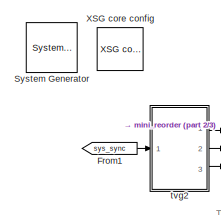
[diagram: root canvas - part 1/3, top left region]
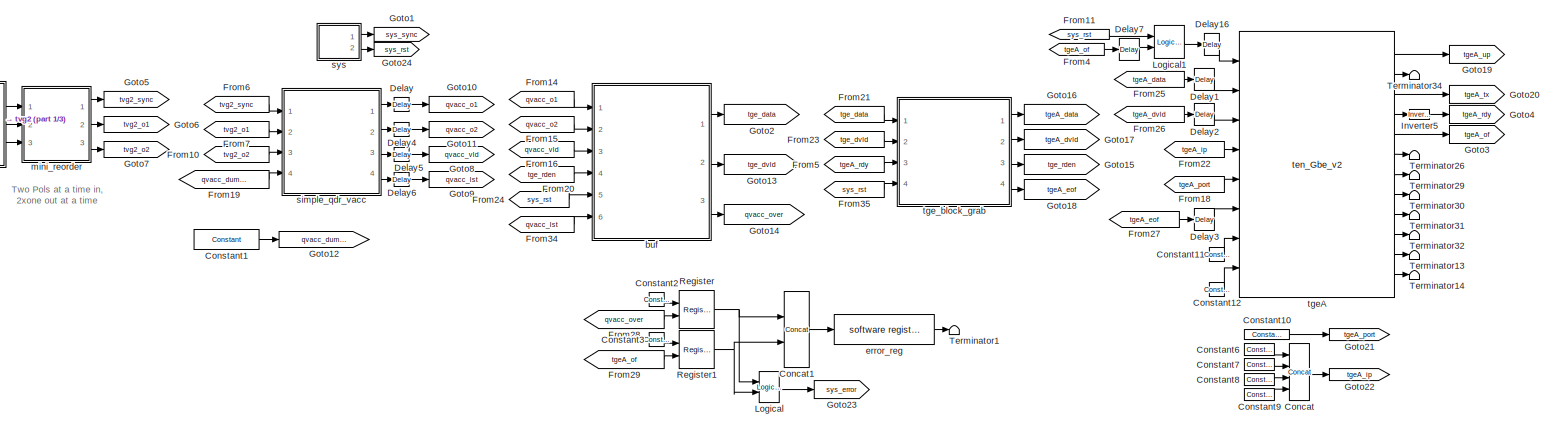
[diagram: root canvas - part 2/3, full width, middle band]
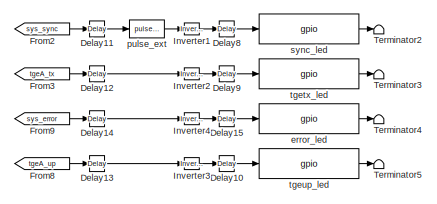
[diagram: root canvas - part 3/3, bottom left region]
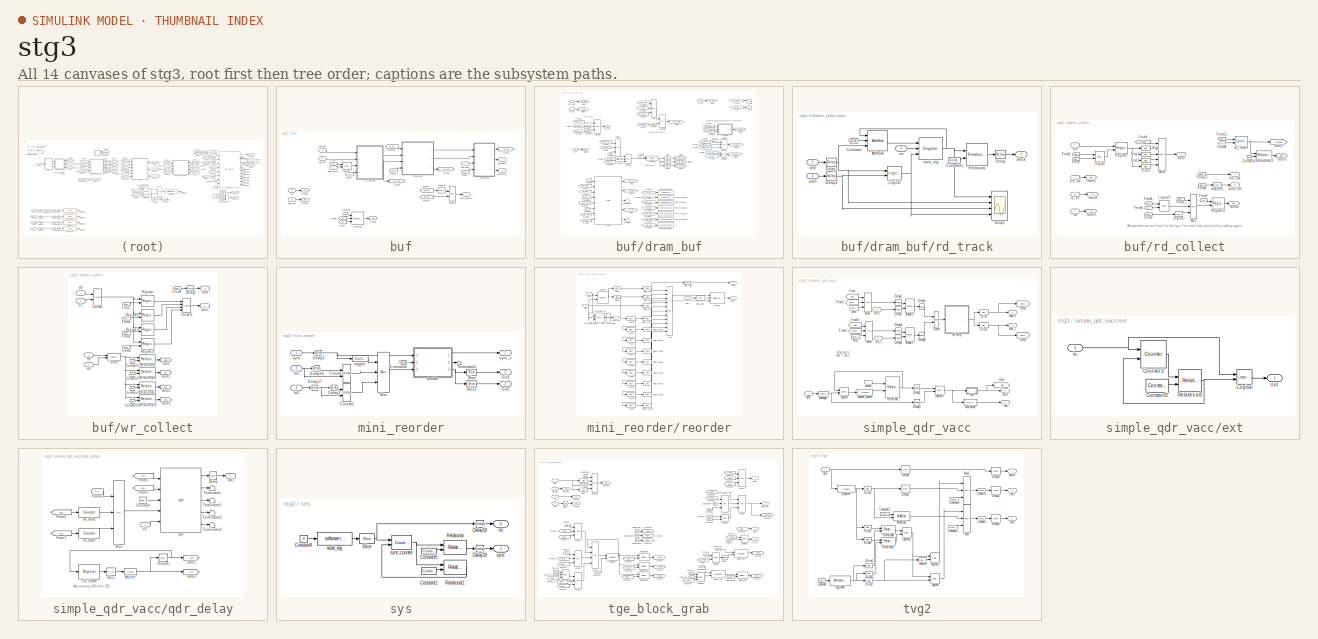
[diagram: thumbnail index - all 14 canvases of the model, root first then tree order]
MODEL stg3
KIND model
BLOCK [Reference]  System Generator  REF=xbsIndex_r4/ System Generator
  AttributesFormatString = System\\nGenerator
  FunctionWithSeparateData = off
  Ports = []
  RTWMemSecDataConstants = Inherit from model
  RTWMemSecDataInternal = Inherit from model
  RTWMemSecDataParameters = Inherit from model
  RTWMemSecFuncExecute = Inherit from model
  RTWMemSecFuncInitTerm = Inherit from model
  ShowPortLabels = FromPortIcon
  SourceBlock = xbsIndex_r4/ System Generator
  SourceType = Xilinx System Generator Block
  SystemSampleTime = -1
  Tag = genX
  UserData = DataTag0
  UserDataPersistent = on
  block_type = sysgen
  block_version = 10.1.3
  clock_wrapper = Clock Enables
  core_generation = According to Block Masks
  dbl_ovrd = According to Block Masks
  dcm_input_clock_period = 100
  deprecated_control = off
  directory = ./stg3/sysgen
  eval_field = 0
  has_advanced_control = 0
  incr_netlist = off
  infoedit = System Generator
  package = ff1136
  part = xc5vsx95t
  run_coregen = off
  sg_icon_stat = 51,50,-1,-1,red,beige,0,07734,right
  sg_mask_display = fprintf('','COMMENT: begin icon graphics');\npatch([0 51 51 0 ],[0 0 50 50 ],[0.93 0.92 0.86]);\npatch([12 4 16 4 12 25 29 33 47 36 25 17 29 17 25 36 47 33 29 25 12 ],[5 13 25 37 45 45 41 45 45 34 45 37 25 13 5 16 5 5 9 5 5 ],[0.6 0.2 0.25]);\nplot([0 51 51 0 0 ],[0 0 50 50 0 ]);\nfprintf('','COMMENT: end icon graphics');\nfprintf('','COMMENT: begin icon text');\nfprintf('','COMMENT: end icon text...<+5ch>
  sggui_pos = -1,-1,-1,-1
  simulink_period = 1
  speed = -1
  synthesis_tool = XST
  sysclk_period = 3.3333
  testbench = off
  trim_vbits = Everywhere in SubSystem
  xilinxfamily = virtex5
BLOCK [Reference] Concat  REF=xbsIndex_r4/Concat
  Ports = [4, 1]
  SourceBlock = xbsIndex_r4/Concat
  SourceType = Xilinx Bus Concatenator Block
  block_type = concat
  block_version = 10.1.3
  dbl_ovrd = off
  has_advanced_control = 0
  infoedit = Concatenates two or more inputs.  Output will be cast to an unsigned value with the binary point at zero.
  num_inputs = 4
  sg_icon_stat = 20,57,1,1,white,blue,0,ad63c393,right
  sg_mask_display = fprintf('','COMMENT: begin icon graphics');\npatch([0 20 20 0 ],[0 0 57 57 ],[0.77 0.82 0.91]);\npatch([4 1 6 1 4 9 10 11 17 13 9 6 11 6 9 13 17 11 10 9 4 ],[21 24 29 34 37 37 36 37 37 33 37 34 29 24 21 25 21 21 22 21 21 ],[0.98 0.96 0.92]);\nplot([0 20 20 0 0 ],[0 0 57 57 0 ]);\nfprintf('','COMMENT: end icon graphics');\nfprintf('','COMMENT: begin icon text');\ncolor('black');port_label('input',1...<+92ch>
  sggui_pos = 20,20,336,165
BLOCK [Reference] Concat1  REF=xbsIndex_r4/Concat
  Ports = [2, 1]
  SourceBlock = xbsIndex_r4/Concat
  SourceType = Xilinx Bus Concatenator Block
  block_type = concat
  block_version = 10.1.3
  dbl_ovrd = off
  has_advanced_control = 0
  infoedit = Concatenates two or more inputs.  Output will be cast to an unsigned value with the binary point at zero.
  num_inputs = 2
  sg_icon_stat = 25,76,1,1,white,blue,0,df1e5aba,right
  sg_mask_display = fprintf('','COMMENT: begin icon graphics');\npatch([0 60 60 0 ],[0 0 60 60 ],[0.77 0.82 0.91]);\npatch([14 4 18 4 14 30 34 38 55 42 29 20 35 20 29 42 55 38 34 30 14 ],[6 16 30 44 54 54 50 54 54 41 54 45 30 15 6 19 6 6 10 6 6 ],[0.98 0.96 0.92]);\nplot([0 60 60 0 0 ],[0 0 60 60 0 ]);\nfprintf('','COMMENT: end icon graphics');\nfprintf('','COMMENT: begin icon text');\ncolor('black');port_label('inpu...<+96ch>  <repeated x7 — deduplicated; at blocks: Concat1, Concat>
  sggui_pos = 20,20,336,165
BLOCK [Reference] Constant1  REF=xbsIndex_r4/Constant
  Ports = [0, 1]
  SourceBlock = xbsIndex_r4/Constant
  SourceType = Xilinx Constant Block Block
  arith_type = Unsigned
  bin_pt = 0
  block_type = constant
  block_version = 10.1.3
  carry = CIN
  const = (2^10)*(2^(10-1))*(2^9) - 2
  dbl_ovrd = off
  dsp48_infoedit = The use of this block for DSP48 instructions is deprecated.  Please use the Opmode block.
  equ = P=C
  explicit_period = on
  has_advanced_control = 0
  inp1 = P
  inp2 = PCIN>>17
  n_bits = 32
  opr = +
  opselect = C
  period = 1
  sg_icon_stat = 65,20,1,1,white,blue,0,8dce1899,right
  sg_mask_display = fprintf('','COMMENT: begin icon graphics');\npatch([0 55 55 0 ],[0 0 26 26 ],[0.77 0.82 0.91]);\npatch([20 16 22 16 20 27 29 31 38 32 26 22 28 22 26 32 38 31 29 27 20 ],[3 7 13 19 23 23 21 23 23 17 23 19 13 7 3 9 3 3 5 3 3 ],[0.98 0.96 0.92]);\nplot([0 55 55 0 0 ],[0 0 26 26 0 ]);\nfprintf('','COMMENT: end icon graphics');\nfprintf('','COMMENT: begin icon text');\ncolor('black');port_label('output...<+58ch>
  sggui_pos = 571,207,400,346
BLOCK [Reference] Constant10  REF=xbsIndex_r4/Constant
  Ports = [0, 1]
  SourceBlock = xbsIndex_r4/Constant
  SourceType = Xilinx Constant Block Block
  arith_type = Unsigned
  bin_pt = 0
  block_type = constant
  block_version = 10.1.3
  carry = CIN
  const = 10000
  dbl_ovrd = off
  dsp48_infoedit = The use of this block for DSP48 instructions is deprecated.  Please use the Opmode block.
  equ = P=C
  explicit_period = off
  has_advanced_control = 0
  inp1 = P
  inp2 = PCIN>>17
  n_bits = 16
  opr = +
  opselect = C
  period = 1
  sg_icon_stat = 45,10,1,1,white,blue,0,a92914f7,right
  sg_mask_display = fprintf('','COMMENT: begin icon graphics');\npatch([0 55 55 0 ],[0 0 26 26 ],[0.77 0.82 0.91]);\npatch([20 16 22 16 20 27 29 31 38 32 26 22 28 22 26 32 38 31 29 27 20 ],[3 7 13 19 23 23 21 23 23 17 23 19 13 7 3 9 3 3 5 3 3 ],[0.98 0.96 0.92]);\nplot([0 55 55 0 0 ],[0 0 26 26 0 ]);\nfprintf('','COMMENT: end icon graphics');\nfprintf('','COMMENT: begin icon text');\ncolor('black');port_label('output...<+54ch>
  sggui_pos = 20,20,400,346
BLOCK [Reference] Constant11  REF=xbsIndex_r4/Constant
  Ports = [0, 1]
  SourceBlock = xbsIndex_r4/Constant
  SourceType = Xilinx Constant Block Block
  arith_type = Boolean
  bin_pt = 14
  block_type = constant
  block_version = 10.1.3
  carry = CIN
  const = 1
  dbl_ovrd = off
  dsp48_infoedit = The use of this block for DSP48 instructions is deprecated.  Please use the Opmode block.
  equ = P=C
  explicit_period = off
  has_advanced_control = 0
  inp1 = P
  inp2 = PCIN>>17
  n_bits = 16
  opr = +
  opselect = C
  period = 1
  sg_icon_stat = 15,14,1,1,white,blue,0,06094819,right
  sg_mask_display = fprintf('','COMMENT: begin icon graphics');\npatch([0 55 55 0 ],[0 0 26 26 ],[0.77 0.82 0.91]);\npatch([20 16 22 16 20 27 29 31 38 32 26 22 28 22 26 32 38 31 29 27 20 ],[3 7 13 19 23 23 21 23 23 17 23 19 13 7 3 9 3 3 5 3 3 ],[0.98 0.96 0.92]);\nplot([0 55 55 0 0 ],[0 0 26 26 0 ]);\nfprintf('','COMMENT: end icon graphics');\nfprintf('','COMMENT: begin icon text');\ncolor('black');port_label('output...<+50ch>  <repeated x24 — deduplicated; at blocks: Constant11, Constant12, Constant2, Constant3, Constant8, Constant9, Constant, Constant1, Constant5, zero, zero1, Constant4, Constant6, Constant7>
  sggui_pos = 20,20,400,346
BLOCK [Reference] Constant12  REF=xbsIndex_r4/Constant
  Ports = [0, 1]
  SourceBlock = xbsIndex_r4/Constant
  SourceType = Xilinx Constant Block Block
  arith_type = Boolean
  bin_pt = 14
  block_type = constant
  block_version = 10.1.3
  carry = CIN
  const = 1
  dbl_ovrd = off
  dsp48_infoedit = The use of this block for DSP48 instructions is deprecated.  Please use the Opmode block.
  equ = P=C
  explicit_period = off
  has_advanced_control = 0
  inp1 = P
  inp2 = PCIN>>17
  n_bits = 16
  opr = +
  opselect = C
  period = 1
  sg_icon_stat = 15,14,1,1,white,blue,0,06094819,right
  sggui_pos = 20,20,400,346
BLOCK [Reference] Constant2  REF=xbsIndex_r4/Constant
  Ports = [0, 1]
  SourceBlock = xbsIndex_r4/Constant
  SourceType = Xilinx Constant Block Block
  arith_type = Boolean
  bin_pt = 14
  block_type = constant
  block_version = 10.1.3
  carry = CIN
  const = 1
  dbl_ovrd = off
  dsp48_infoedit = The use of this block for DSP48 instructions is deprecated.  Please use the Opmode block.
  equ = P=C
  explicit_period = off
  has_advanced_control = 0
  inp1 = P
  inp2 = PCIN>>17
  n_bits = 16
  opr = +
  opselect = C
  period = 1
  sg_icon_stat = 15,14,1,1,white,blue,0,06094819,right
  sggui_pos = 20,20,400,346
BLOCK [Reference] Constant3  REF=xbsIndex_r4/Constant
  Ports = [0, 1]
  SourceBlock = xbsIndex_r4/Constant
  SourceType = Xilinx Constant Block Block
  arith_type = Boolean
  bin_pt = 14
  block_type = constant
  block_version = 10.1.3
  carry = CIN
  const = 1
  dbl_ovrd = off
  dsp48_infoedit = The use of this block for DSP48 instructions is deprecated.  Please use the Opmode block.
  equ = P=C
  explicit_period = off
  has_advanced_control = 0
  inp1 = P
  inp2 = PCIN>>17
  n_bits = 16
  opr = +
  opselect = C
  period = 1
  sg_icon_stat = 15,14,1,1,white,blue,0,06094819,right
  sggui_pos = 20,20,400,346
BLOCK [Reference] Constant6  REF=xbsIndex_r4/Constant
  Ports = [0, 1]
  SourceBlock = xbsIndex_r4/Constant
  SourceType = Xilinx Constant Block Block
  arith_type = Unsigned
  bin_pt = 0
  block_type = constant
  block_version = 10.1.3
  carry = CIN
  const = 192
  dbl_ovrd = off
  dsp48_infoedit = The use of this block for DSP48 instructions is deprecated.  Please use the Opmode block.
  equ = P=C
  explicit_period = off
  has_advanced_control = 0
  inp1 = P
  inp2 = PCIN>>17
  n_bits = 8
  opr = +
  opselect = C
  period = 1
  sg_icon_stat = 30,12,1,1,white,blue,0,24c8e223,right
  sg_mask_display = fprintf('','COMMENT: begin icon graphics');\npatch([0 55 55 0 ],[0 0 26 26 ],[0.77 0.82 0.91]);\npatch([20 16 22 16 20 27 29 31 38 32 26 22 28 22 26 32 38 31 29 27 20 ],[3 7 13 19 23 23 21 23 23 17 23 19 13 7 3 9 3 3 5 3 3 ],[0.98 0.96 0.92]);\nplot([0 55 55 0 0 ],[0 0 26 26 0 ]);\nfprintf('','COMMENT: end icon graphics');\nfprintf('','COMMENT: begin icon text');\ncolor('black');port_label('output...<+52ch>  <repeated x5 — deduplicated; at blocks: Constant6, Constant7, Constant3, Constant1, Constant2>
  sggui_pos = 20,20,400,346
BLOCK [Reference] Constant7  REF=xbsIndex_r4/Constant
  Ports = [0, 1]
  SourceBlock = xbsIndex_r4/Constant
  SourceType = Xilinx Constant Block Block
  arith_type = Unsigned
  bin_pt = 0
  block_type = constant
  block_version = 10.1.3
  carry = CIN
  const = 168
  dbl_ovrd = off
  dsp48_infoedit = The use of this block for DSP48 instructions is deprecated.  Please use the Opmode block.
  equ = P=C
  explicit_period = off
  has_advanced_control = 0
  inp1 = P
  inp2 = PCIN>>17
  n_bits = 8
  opr = +
  opselect = C
  period = 1
  sg_icon_stat = 30,12,1,1,white,blue,0,cb04aff0,right
  sggui_pos = 20,20,400,346
BLOCK [Reference] Constant8  REF=xbsIndex_r4/Constant
  Ports = [0, 1]
  SourceBlock = xbsIndex_r4/Constant
  SourceType = Xilinx Constant Block Block
  arith_type = Unsigned
  bin_pt = 0
  block_type = constant
  block_version = 10.1.3
  carry = CIN
  const = 5
  dbl_ovrd = off
  dsp48_infoedit = The use of this block for DSP48 instructions is deprecated.  Please use the Opmode block.
  equ = P=C
  explicit_period = off
  has_advanced_control = 0
  inp1 = P
  inp2 = PCIN>>17
  n_bits = 8
  opr = +
  opselect = C
  period = 1
  sg_icon_stat = 30,12,1,1,white,blue,0,bac61723,right
  sggui_pos = 20,20,400,346
BLOCK [Reference] Constant9  REF=xbsIndex_r4/Constant
  Ports = [0, 1]
  SourceBlock = xbsIndex_r4/Constant
  SourceType = Xilinx Constant Block Block
  arith_type = Unsigned
  bin_pt = 0
  block_type = constant
  block_version = 10.1.3
  carry = CIN
  const = 2
  dbl_ovrd = off
  dsp48_infoedit = The use of this block for DSP48 instructions is deprecated.  Please use the Opmode block.
  equ = P=C
  explicit_period = off
  has_advanced_control = 0
  inp1 = P
  inp2 = PCIN>>17
  n_bits = 8
  opr = +
  opselect = C
  period = 1
  sg_icon_stat = 30,12,1,1,white,blue,0,702e86fb,right
  sggui_pos = 20,20,400,346
BLOCK [Reference] Delay  REF=xbsIndex_r4/Delay
  Ports = [1, 1]
  SourceBlock = xbsIndex_r4/Delay
  SourceType = Xilinx Delay Block
  block_type = delay
  block_version = 10.1.3
  dbl_ovrd = off
  en = off
  has_advanced_control = 0
  infoedit = Hardware notes: A delay line is a chain, each link of which is an SRL16 followed by a flip-flop.
  latency = 1
  reg_retiming = off
  sg_icon_stat = 15,14,1,1,white,blue,0,fc531c0e,right
  sg_mask_display = fprintf('','COMMENT: begin icon graphics');\npatch([0 60 60 0 ],[0 0 56 56 ],[0.77 0.82 0.91]);\npatch([15 6 19 6 15 30 34 38 54 41 29 20 32 20 29 41 54 38 34 30 15 ],[6 15 28 41 50 50 46 50 50 37 49 40 28 16 7 19 6 6 10 6 6 ],[0.98 0.96 0.92]);\nplot([0 60 60 0 0 ],[0 0 56 56 0 ]);\nfprintf('','COMMENT: end icon graphics');\nfprintf('','COMMENT: begin icon text');\ncolor('black');disp('z^{-1}','t...<+55ch>  <repeated x37 — deduplicated; at blocks: Delay, Delay10, Delay11, Delay12, Delay13, Delay14, Delay15, Delay4, Delay5, Delay6, Delay7, Delay8, Delay9, Delay1, Delay2, Delay16, +4 more>
  sggui_pos = -1,-1,-1,-1
  xl_area = [0,0,0,0,0,0,0]
  xl_use_area = off
BLOCK [Reference] Delay1  REF=xbsIndex_r4/Delay
  Ports = [1, 1]
  SourceBlock = xbsIndex_r4/Delay
  SourceType = Xilinx Delay Block
  block_type = delay
  block_version = 10.1.3
  dbl_ovrd = off
  en = off
  has_advanced_control = 0
  infoedit = Hardware notes: A delay line is a chain, each link of which is an SRL16 followed by a flip-flop.
  latency = 2
  reg_retiming = off
  sg_icon_stat = 20,22,1,1,white,blue,0,0a7a6cf1,right
  sg_mask_display = fprintf('','COMMENT: begin icon graphics');\npatch([0 60 60 0 ],[0 0 56 56 ],[0.77 0.82 0.91]);\npatch([15 6 19 6 15 30 34 38 54 41 29 20 32 20 29 41 54 38 34 30 15 ],[6 15 28 41 50 50 46 50 50 37 49 40 28 16 7 19 6 6 10 6 6 ],[0.98 0.96 0.92]);\nplot([0 60 60 0 0 ],[0 0 56 56 0 ]);\nfprintf('','COMMENT: end icon graphics');\nfprintf('','COMMENT: begin icon text');\ncolor('black');disp('z^{-2}','t...<+55ch>  <repeated x5 — deduplicated; at blocks: Delay1, Delay2, Delay3, Delay4, Delay5>
  sggui_pos = 20,20,348,255
  xl_area = [0,0,0,0,0,0,0]
  xl_use_area = off
BLOCK [Reference] Delay10  REF=xbsIndex_r4/Delay
  Ports = [1, 1]
  SourceBlock = xbsIndex_r4/Delay
  SourceType = Xilinx Delay Block
  block_type = delay
  block_version = 10.1.3
  dbl_ovrd = off
  en = off
  has_advanced_control = 0
  infoedit = Hardware notes: A delay line is a chain, each link of which is an SRL16 followed by a flip-flop.
  latency = 1
  reg_retiming = off
  sg_icon_stat = 15,16,1,1,white,blue,0,fc531c0e,right
  sggui_pos = 20,20,348,255
  xl_area = [0,0,0,0,0,0,0]
  xl_use_area = off
BLOCK [Reference] Delay11  REF=xbsIndex_r4/Delay
  Ports = [1, 1]
  SourceBlock = xbsIndex_r4/Delay
  SourceType = Xilinx Delay Block
  block_type = delay
  block_version = 10.1.3
  dbl_ovrd = off
  en = off
  has_advanced_control = 0
  infoedit = Hardware notes: A delay line is a chain, each link of which is an SRL16 followed by a flip-flop.
  latency = 1
  reg_retiming = off
  sg_icon_stat = 15,16,1,1,white,blue,0,fc531c0e,right
  sggui_pos = 20,20,348,255
  xl_area = [0,0,0,0,0,0,0]
  xl_use_area = off
BLOCK [Reference] Delay12  REF=xbsIndex_r4/Delay
  Ports = [1, 1]
  SourceBlock = xbsIndex_r4/Delay
  SourceType = Xilinx Delay Block
  block_type = delay
  block_version = 10.1.3
  dbl_ovrd = off
  en = off
  has_advanced_control = 0
  infoedit = Hardware notes: A delay line is a chain, each link of which is an SRL16 followed by a flip-flop.
  latency = 1
  reg_retiming = off
  sg_icon_stat = 15,16,1,1,white,blue,0,fc531c0e,right
  sggui_pos = 20,20,348,255
  xl_area = [0,0,0,0,0,0,0]
  xl_use_area = off
BLOCK [Reference] Delay13  REF=xbsIndex_r4/Delay
  Ports = [1, 1]
  SourceBlock = xbsIndex_r4/Delay
  SourceType = Xilinx Delay Block
  block_type = delay
  block_version = 10.1.3
  dbl_ovrd = off
  en = off
  has_advanced_control = 0
  infoedit = Hardware notes: A delay line is a chain, each link of which is an SRL16 followed by a flip-flop.
  latency = 1
  reg_retiming = off
  sg_icon_stat = 15,16,1,1,white,blue,0,fc531c0e,right
  sggui_pos = 20,20,348,255
  xl_area = [0,0,0,0,0,0,0]
  xl_use_area = off
BLOCK [Reference] Delay14  REF=xbsIndex_r4/Delay
  Ports = [1, 1]
  SourceBlock = xbsIndex_r4/Delay
  SourceType = Xilinx Delay Block
  block_type = delay
  block_version = 10.1.3
  dbl_ovrd = off
  en = off
  has_advanced_control = 0
  infoedit = Hardware notes: A delay line is a chain, each link of which is an SRL16 followed by a flip-flop.
  latency = 1
  reg_retiming = off
  sg_icon_stat = 15,16,1,1,white,blue,0,fc531c0e,right
  sggui_pos = 20,20,348,255
  xl_area = [0,0,0,0,0,0,0]
  xl_use_area = off
BLOCK [Reference] Delay15  REF=xbsIndex_r4/Delay
  Ports = [1, 1]
  SourceBlock = xbsIndex_r4/Delay
  SourceType = Xilinx Delay Block
  block_type = delay
  block_version = 10.1.3
  dbl_ovrd = off
  en = off
  has_advanced_control = 0
  infoedit = Hardware notes: A delay line is a chain, each link of which is an SRL16 followed by a flip-flop.
  latency = 1
  reg_retiming = off
  sg_icon_stat = 15,16,1,1,white,blue,0,fc531c0e,right
  sggui_pos = 20,20,348,255
  xl_area = [0,0,0,0,0,0,0]
  xl_use_area = off
BLOCK [Reference] Delay16  REF=xbsIndex_r4/Delay
  Ports = [1, 1]
  SourceBlock = xbsIndex_r4/Delay
  SourceType = Xilinx Delay Block
  block_type = delay
  block_version = 10.1.3
  dbl_ovrd = off
  en = off
  has_advanced_control = 0
  infoedit = Hardware notes: A delay line is a chain, each link of which is an SRL16 followed by a flip-flop.
  latency = 2
  reg_retiming = off
  sg_icon_stat = 15,22,1,1,white,blue,0,0a7a6cf1,right
  sg_mask_display = fprintf('','COMMENT: begin icon graphics');\npatch([0 15 15 0 ],[0 0 22 22 ],[0.77 0.82 0.91]);\npatch([3 1 5 1 3 7 8 9 13 10 7 5 9 5 7 10 13 9 8 7 3 ],[5 7 11 15 17 17 16 17 17 14 17 15 11 7 5 8 5 5 6 5 5 ],[0.98 0.96 0.92]);\nplot([0 15 15 0 0 ],[0 0 22 22 0 ]);\nfprintf('','COMMENT: end icon graphics');\nfprintf('','COMMENT: begin icon text');\ncolor('black');disp('z^{-2}','texmode','on');\nfpr...<+36ch>
  sggui_pos = 20,20,348,255
  xl_area = [0,0,0,0,0,0,0]
  xl_use_area = off
BLOCK [Reference] Delay2  REF=xbsIndex_r4/Delay
  Ports = [1, 1]
  SourceBlock = xbsIndex_r4/Delay
  SourceType = Xilinx Delay Block
  block_type = delay
  block_version = 10.1.3
  dbl_ovrd = off
  en = off
  has_advanced_control = 0
  infoedit = Hardware notes: A delay line is a chain, each link of which is an SRL16 followed by a flip-flop.
  latency = 2
  reg_retiming = off
  sg_icon_stat = 20,22,1,1,white,blue,0,0a7a6cf1,right
  sggui_pos = 20,20,348,255
  xl_area = [0,0,0,0,0,0,0]
  xl_use_area = off
BLOCK [Reference] Delay3  REF=xbsIndex_r4/Delay
  Ports = [1, 1]
  SourceBlock = xbsIndex_r4/Delay
  SourceType = Xilinx Delay Block
  block_type = delay
  block_version = 10.1.3
  dbl_ovrd = off
  en = off
  has_advanced_control = 0
  infoedit = Hardware notes: A delay line is a chain, each link of which is an SRL16 followed by a flip-flop.
  latency = 2
  reg_retiming = off
  sg_icon_stat = 20,22,1,1,white,blue,0,0a7a6cf1,right
  sggui_pos = 20,20,348,255
  xl_area = [0,0,0,0,0,0,0]
  xl_use_area = off
BLOCK [Reference] Delay4  REF=xbsIndex_r4/Delay
  Ports = [1, 1]
  SourceBlock = xbsIndex_r4/Delay
  SourceType = Xilinx Delay Block
  block_type = delay
  block_version = 10.1.3
  dbl_ovrd = off
  en = off
  has_advanced_control = 0
  infoedit = Hardware notes: A delay line is a chain, each link of which is an SRL16 followed by a flip-flop.
  latency = 1
  reg_retiming = off
  sg_icon_stat = 15,14,1,1,white,blue,0,fc531c0e,right
  sggui_pos = -1,-1,-1,-1
  xl_area = [0,0,0,0,0,0,0]
  xl_use_area = off
BLOCK [Reference] Delay5  REF=xbsIndex_r4/Delay
  Ports = [1, 1]
  SourceBlock = xbsIndex_r4/Delay
  SourceType = Xilinx Delay Block
  block_type = delay
  block_version = 10.1.3
  dbl_ovrd = off
  en = off
  has_advanced_control = 0
  infoedit = Hardware notes: A delay line is a chain, each link of which is an SRL16 followed by a flip-flop.
  latency = 1
  reg_retiming = off
  sg_icon_stat = 15,14,1,1,white,blue,0,fc531c0e,right
  sggui_pos = -1,-1,-1,-1
  xl_area = [0,0,0,0,0,0,0]
  xl_use_area = off
BLOCK [Reference] Delay6  REF=xbsIndex_r4/Delay
  Ports = [1, 1]
  SourceBlock = xbsIndex_r4/Delay
  SourceType = Xilinx Delay Block
  block_type = delay
  block_version = 10.1.3
  dbl_ovrd = off
  en = off
  has_advanced_control = 0
  infoedit = Hardware notes: A delay line is a chain, each link of which is an SRL16 followed by a flip-flop.
  latency = 1
  reg_retiming = off
  sg_icon_stat = 15,14,1,1,white,blue,0,fc531c0e,right
  sggui_pos = -1,-1,-1,-1
  xl_area = [0,0,0,0,0,0,0]
  xl_use_area = off
BLOCK [Reference] Delay7  REF=xbsIndex_r4/Delay
  Ports = [1, 1]
  SourceBlock = xbsIndex_r4/Delay
  SourceType = Xilinx Delay Block
  block_type = delay
  block_version = 10.1.3
  dbl_ovrd = off
  en = off
  has_advanced_control = 0
  infoedit = Hardware notes: A delay line is a chain, each link of which is an SRL16 followed by a flip-flop.
  latency = 1
  reg_retiming = off
  sg_icon_stat = 20,22,1,1,white,blue,0,fc531c0e,right
  sggui_pos = 20,20,348,255
  xl_area = [0,0,0,0,0,0,0]
  xl_use_area = off
BLOCK [Reference] Delay8  REF=xbsIndex_r4/Delay
  Ports = [1, 1]
  SourceBlock = xbsIndex_r4/Delay
  SourceType = Xilinx Delay Block
  block_type = delay
  block_version = 10.1.3
  dbl_ovrd = off
  en = off
  has_advanced_control = 0
  infoedit = Hardware notes: A delay line is a chain, each link of which is an SRL16 followed by a flip-flop.
  latency = 1
  reg_retiming = off
  sg_icon_stat = 15,16,1,1,white,blue,0,fc531c0e,right
  sggui_pos = 20,20,348,255
  xl_area = [0,0,0,0,0,0,0]
  xl_use_area = off
BLOCK [Reference] Delay9  REF=xbsIndex_r4/Delay
  Ports = [1, 1]
  SourceBlock = xbsIndex_r4/Delay
  SourceType = Xilinx Delay Block
  block_type = delay
  block_version = 10.1.3
  dbl_ovrd = off
  en = off
  has_advanced_control = 0
  infoedit = Hardware notes: A delay line is a chain, each link of which is an SRL16 followed by a flip-flop.
  latency = 1
  reg_retiming = off
  sg_icon_stat = 15,16,1,1,white,blue,0,fc531c0e,right
  sggui_pos = 20,20,348,255
  xl_area = [0,0,0,0,0,0,0]
  xl_use_area = off
BLOCK [From] From1
  CloseFcn = tagdialog Close
  GotoTag = sys_sync
BLOCK [From] From10
  CloseFcn = tagdialog Close
  GotoTag = tvg2_o2
BLOCK [From] From11
  CloseFcn = tagdialog Close
  GotoTag = sys_rst
BLOCK [From] From14
  CloseFcn = tagdialog Close
  GotoTag = qvacc_o1
BLOCK [From] From15
  CloseFcn = tagdialog Close
  GotoTag = qvacc_o2
BLOCK [From] From16
  CloseFcn = tagdialog Close
  GotoTag = qvacc_vld
BLOCK [From] From18
  CloseFcn = tagdialog Close
  GotoTag = tgeA_port
BLOCK [From] From19
  CloseFcn = tagdialog Close
  GotoTag = qvacc_dumps
BLOCK [From] From2
  CloseFcn = tagdialog Close
  GotoTag = sys_sync
BLOCK [From] From20
  CloseFcn = tagdialog Close
  GotoTag = tge_rden
BLOCK [From] From21
  CloseFcn = tagdialog Close
  GotoTag = tge_data
BLOCK [From] From22
  CloseFcn = tagdialog Close
  GotoTag = tgeA_ip
BLOCK [From] From23
  CloseFcn = tagdialog Close
  GotoTag = tge_dvld
BLOCK [From] From24
  CloseFcn = tagdialog Close
  GotoTag = sys_rst
BLOCK [From] From25
  CloseFcn = tagdialog Close
  GotoTag = tgeA_data
BLOCK [From] From26
  CloseFcn = tagdialog Close
  GotoTag = tgeA_dvld
BLOCK [From] From27
  CloseFcn = tagdialog Close
  GotoTag = tgeA_eof
BLOCK [From] From28
  CloseFcn = tagdialog Close
  GotoTag = qvacc_over
BLOCK [From] From29
  CloseFcn = tagdialog Close
  GotoTag = tgeA_of
BLOCK [From] From3
  CloseFcn = tagdialog Close
  GotoTag = tgeA_tx
BLOCK [From] From34
  CloseFcn = tagdialog Close
  GotoTag = qvacc_lst
BLOCK [From] From35
  CloseFcn = tagdialog Close
  GotoTag = sys_rst
BLOCK [From] From4
  CloseFcn = tagdialog Close
  GotoTag = tgeA_of
BLOCK [From] From5
  CloseFcn = tagdialog Close
  GotoTag = tgeA_rdy
BLOCK [From] From6
  CloseFcn = tagdialog Close
  GotoTag = tvg2_sync
BLOCK [From] From7
  CloseFcn = tagdialog Close
  GotoTag = tvg2_o1
BLOCK [From] From8
  CloseFcn = tagdialog Close
  GotoTag = tgeA_up
BLOCK [From] From9
  CloseFcn = tagdialog Close
  GotoTag = sys_error
BLOCK [Goto] Goto1
  GotoTag = sys_sync
  TagVisibility = local
BLOCK [Goto] Goto10
  GotoTag = qvacc_o1
  TagVisibility = local
BLOCK [Goto] Goto11
  GotoTag = qvacc_o2
  TagVisibility = local
BLOCK [Goto] Goto12
  GotoTag = qvacc_dumps
  TagVisibility = local
BLOCK [Goto] Goto13
  GotoTag = tge_dvld
  TagVisibility = local
BLOCK [Goto] Goto14
  GotoTag = qvacc_over
  TagVisibility = local
BLOCK [Goto] Goto15
  GotoTag = tge_rden
  TagVisibility = local
BLOCK [Goto] Goto16
  GotoTag = tgeA_data
  TagVisibility = local
BLOCK [Goto] Goto17
  GotoTag = tgeA_dvld
  TagVisibility = local
BLOCK [Goto] Goto18
  GotoTag = tgeA_eof
  TagVisibility = local
BLOCK [Goto] Goto19
  GotoTag = tgeA_up
  TagVisibility = local
BLOCK [Goto] Goto2
  GotoTag = tge_data
  TagVisibility = local
BLOCK [Goto] Goto20
  GotoTag = tgeA_tx
  TagVisibility = local
BLOCK [Goto] Goto21
  GotoTag = tgeA_port
  TagVisibility = local
BLOCK [Goto] Goto22
  GotoTag = tgeA_ip
  TagVisibility = local
BLOCK [Goto] Goto23
  GotoTag = sys_error
  TagVisibility = local
BLOCK [Goto] Goto24
  GotoTag = sys_rst
  TagVisibility = local
BLOCK [Goto] Goto3
  GotoTag = tgeA_of
  TagVisibility = local
BLOCK [Goto] Goto4
  GotoTag = tgeA_rdy
  TagVisibility = local
BLOCK [Goto] Goto5
  GotoTag = tvg2_sync
  TagVisibility = local
BLOCK [Goto] Goto6
  GotoTag = tvg2_o1
  TagVisibility = local
BLOCK [Goto] Goto7
  GotoTag = tvg2_o2
  TagVisibility = local
BLOCK [Goto] Goto8
  GotoTag = qvacc_vld
  TagVisibility = local
BLOCK [Goto] Goto9
  GotoTag = qvacc_lst
  TagVisibility = local
BLOCK [Reference] Inverter1  REF=xbsIndex_r4/Inverter
  Ports = [1, 1]
  SourceBlock = xbsIndex_r4/Inverter
  SourceType = Xilinx Inverter Block
  block_type = inv
  block_version = 10.1.3
  dbl_ovrd = off
  en = off
  has_advanced_control = 0
  infoedit = Bitwise logical negation (one's complement) operator.
  latency = 0
  sg_icon_stat = 15,12,1,1,white,blue,0,1ab4a85f,right
  sg_mask_display = fprintf('','COMMENT: begin icon graphics');\npatch([0 55 55 0 ],[0 0 58 58 ],[0.77 0.82 0.91]);\npatch([13 4 17 4 13 28 32 36 52 40 28 19 32 19 28 40 52 36 32 28 13 ],[7 16 29 42 51 51 47 51 51 39 51 42 29 16 7 19 7 7 11 7 7 ],[0.98 0.96 0.92]);\nplot([0 55 55 0 0 ],[0 0 58 58 0 ]);\nfprintf('','COMMENT: end icon graphics');\nfprintf('','COMMENT: begin icon text');\ncolor('black');disp('not');\nfp...<+37ch>  <repeated x15 — deduplicated; at blocks: Inverter1, Inverter2, Inverter3, Inverter4, Inverter5, Inverter>
  sggui_pos = -1,-1,-1,-1
  xl_area = [0,0,0,0,0,0,0]
  xl_use_area = off
BLOCK [Reference] Inverter2  REF=xbsIndex_r4/Inverter
  Ports = [1, 1]
  SourceBlock = xbsIndex_r4/Inverter
  SourceType = Xilinx Inverter Block
  block_type = inv
  block_version = 10.1.3
  dbl_ovrd = off
  en = off
  has_advanced_control = 0
  infoedit = Bitwise logical negation (one's complement) operator.
  latency = 0
  sg_icon_stat = 15,12,1,1,white,blue,0,1ab4a85f,right
  sggui_pos = -1,-1,-1,-1
  xl_area = [0,0,0,0,0,0,0]
  xl_use_area = off
BLOCK [Reference] Inverter3  REF=xbsIndex_r4/Inverter
  Ports = [1, 1]
  SourceBlock = xbsIndex_r4/Inverter
  SourceType = Xilinx Inverter Block
  block_type = inv
  block_version = 10.1.3
  dbl_ovrd = off
  en = off
  has_advanced_control = 0
  infoedit = Bitwise logical negation (one's complement) operator.
  latency = 0
  sg_icon_stat = 15,12,1,1,white,blue,0,1ab4a85f,right
  sggui_pos = -1,-1,-1,-1
  xl_area = [0,0,0,0,0,0,0]
  xl_use_area = off
BLOCK [Reference] Inverter4  REF=xbsIndex_r4/Inverter
  Ports = [1, 1]
  SourceBlock = xbsIndex_r4/Inverter
  SourceType = Xilinx Inverter Block
  block_type = inv
  block_version = 10.1.3
  dbl_ovrd = off
  en = off
  has_advanced_control = 0
  infoedit = Bitwise logical negation (one's complement) operator.
  latency = 0
  sg_icon_stat = 15,12,1,1,white,blue,0,1ab4a85f,right
  sggui_pos = -1,-1,-1,-1
  xl_area = [0,0,0,0,0,0,0]
  xl_use_area = off
BLOCK [Reference] Inverter5  REF=xbsIndex_r4/Inverter
  Ports = [1, 1]
  SourceBlock = xbsIndex_r4/Inverter
  SourceType = Xilinx Inverter Block
  block_type = inv
  block_version = 10.1.3
  dbl_ovrd = off
  en = off
  has_advanced_control = 0
  infoedit = Bitwise logical negation (one's complement) operator.
  latency = 0
  sg_icon_stat = 20,10,1,1,white,blue,0,1ab4a85f,right
  sggui_pos = -1,-1,-1,-1
  xl_area = [0,0,0,0,0,0,0]
  xl_use_area = off
BLOCK [Reference] Logical  REF=xbsIndex_r4/Logical
  Ports = [2, 1]
  SourceBlock = xbsIndex_r4/Logical
  SourceType = Xilinx Logical Block Block
  align_bp = on
  arith_type = Unsigned
  bin_pt = 0
  block_type = logical
  block_version = 10.1.3
  dbl_ovrd = off
  en = off
  has_advanced_control = 0
  inputs = 2
  latency = 0
  logical_function = OR
  n_bits = 16
  precision = Full
  sg_icon_stat = 20,31,1,1,white,blue,0,f4a65842,right
  sg_mask_display = fprintf('','COMMENT: begin icon graphics');\npatch([0 55 55 0 ],[0 0 60 60 ],[0.77 0.82 0.91]);\npatch([13 4 17 4 13 28 32 36 52 40 28 19 32 19 28 40 52 36 32 28 13 ],[8 17 30 43 52 52 48 52 52 40 52 43 30 17 8 20 8 8 12 8 8 ],[0.98 0.96 0.92]);\nplot([0 55 55 0 0 ],[0 0 60 60 0 ]);\nfprintf('','COMMENT: end icon graphics');\nfprintf('','COMMENT: begin icon text');\ncolor('black');disp('\\newlineo...<+75ch>  <repeated x5 — deduplicated; at blocks: Logical, Logical1>
  sggui_pos = 20,20,348,261
  xl_area = [0,0,0,0,0,0,0]
  xl_use_area = off
BLOCK [Reference] Logical1  REF=xbsIndex_r4/Logical
  Ports = [2, 1]
  SourceBlock = xbsIndex_r4/Logical
  SourceType = Xilinx Logical Block Block
  align_bp = on
  arith_type = Unsigned
  bin_pt = 0
  block_type = logical
  block_version = 10.1.3
  dbl_ovrd = off
  en = off
  has_advanced_control = 0
  inputs = 2
  latency = 0
  logical_function = OR
  n_bits = 16
  precision = Full
  sg_icon_stat = 30,33,1,1,white,blue,0,f4a65842,right
  sggui_pos = 20,20,348,261
  xl_area = [0,0,0,0,0,0,0]
  xl_use_area = off
BLOCK [Reference] Register  REF=xbsIndex_r4/Register
  Ports = [2, 1]
  SourceBlock = xbsIndex_r4/Register
  SourceType = Xilinx Register Block
  block_type = register
  block_version = 10.1.3
  dbl_ovrd = off
  en = on
  has_advanced_control = 0
  init = 0
  rst = off
  sg_icon_stat = 35,38,1,1,white,blue,0,cc3303a0,right
  sg_mask_display = fprintf('','COMMENT: begin icon graphics');\npatch([0 60 60 0 ],[0 0 56 56 ],[0.77 0.82 0.91]);\npatch([15 6 19 6 15 30 34 38 54 41 29 20 32 20 29 41 54 38 34 30 15 ],[6 15 28 41 50 50 46 50 50 37 49 40 28 16 7 19 6 6 10 6 6 ],[0.98 0.96 0.92]);\nplot([0 60 60 0 0 ],[0 0 56 56 0 ]);\nfprintf('','COMMENT: end icon graphics');\nfprintf('','COMMENT: begin icon text');\ncolor('black');port_label('inpu...<+192ch>  <repeated x7 — deduplicated; at blocks: Register, Register1, Register2, Register3>
  sggui_pos = 20,20,348,193
  xl_area = [0,0,0,0,0,0,0]
  xl_use_area = off
BLOCK [Reference] Register1  REF=xbsIndex_r4/Register
  Ports = [2, 1]
  SourceBlock = xbsIndex_r4/Register
  SourceType = Xilinx Register Block
  block_type = register
  block_version = 10.1.3
  dbl_ovrd = off
  en = on
  has_advanced_control = 0
  init = 0
  rst = off
  sg_icon_stat = 35,38,1,1,white,blue,0,cc3303a0,right
  sggui_pos = 20,20,348,193
  xl_area = [0,0,0,0,0,0,0]
  xl_use_area = off
BLOCK [Terminator] Terminator1
BLOCK [Terminator] Terminator13
BLOCK [Terminator] Terminator14
BLOCK [Terminator] Terminator2
BLOCK [Terminator] Terminator26
BLOCK [Terminator] Terminator29
BLOCK [Terminator] Terminator3
BLOCK [Terminator] Terminator30
BLOCK [Terminator] Terminator31
BLOCK [Terminator] Terminator32
BLOCK [Terminator] Terminator34
BLOCK [Terminator] Terminator4
BLOCK [Terminator] Terminator5
BLOCK [Reference] XSG core config  REF=xps_library/XSG core config  (lib defined in mdl_00b5cec29cd0, mdl_02ab6ecaa3d1, +5 more)
  BEE2_ctrl_clk_src = sys_clk
  BEE2_usr_clk_src = sys_clk
  CORR_clk_src = sys_clk
  FunctionWithSeparateData = off
  Ports = []
  ROACH_clk_src = arb_clk
  RTWMemSecDataConstants = Inherit from model
  RTWMemSecDataInternal = Inherit from model
  RTWMemSecDataParameters = Inherit from model
  RTWMemSecFuncExecute = Inherit from model
  RTWMemSecFuncInitTerm = Inherit from model
  ShowPortLabels = FromPortIcon
  SourceBlock = xps_library/XSG core config
  SourceType = xsg core config
  SystemSampleTime = -1
  Tag = xps:xsg
  clk_rate = 300
  clk_src = arb_clk
  gpio_clk_bit_index = 0
  gpio_clk_io_group = iBOB:sma
  hw_sys = ROACH:sx95t
  iBOB_clk_src = sys_clk
  ibob_linux = off
  mpc_type = powerpc440_ext
  sample_period = 1
  synthesis_tool = XST
BLOCK [SubSystem] buf
  FunctionWithSeparateData = off
  MaskCallbackString = |
  MaskEnableString = on,on
  MaskIconFrame = on
  MaskIconOpaque = on
  MaskIconRotate = none
  MaskIconUnits = autoscale
  MaskPromptString = fftsize (2^n)|nochan (2^n)
  MaskStyleString = edit,edit
  MaskTabNameString = ,
  MaskToolTipString = on,on
  MaskTunableValueString = on,on
  MaskValueString = 10|10
  MaskVarAliasString = ,
  MaskVariables = fftsize=@1;nochan=@2;
  MaskVisibilityString = on,on
  MinAlgLoopOccurrences = off
  Ports = [6, 3]
  RTWSystemCode = Auto
BLOCK [Reference] buf/Constant  REF=xbsIndex_r4/Constant
  Ports = [0, 1]
  SourceBlock = xbsIndex_r4/Constant
  SourceType = Xilinx Constant Block Block
  arith_type = Boolean
  bin_pt = 14
  block_type = constant
  block_version = 10.1.3
  carry = CIN
  const = 1
  dbl_ovrd = off
  dsp48_infoedit = The use of this block for DSP48 instructions is deprecated.  Please use the Opmode block.
  equ = P=C
  explicit_period = off
  has_advanced_control = 0
  inp1 = P
  inp2 = PCIN>>17
  n_bits = 16
  opr = +
  opselect = C
  period = 1
  sg_icon_stat = 15,16,1,1,white,blue,0,06094819,right
  sggui_pos = 20,20,400,346
BLOCK [From] buf/From1
  CloseFcn = tagdialog Close
  GotoTag = rst
BLOCK [From] buf/From2
  CloseFcn = tagdialog Close
  GotoTag = wr_vld
BLOCK [From] buf/From23
  CloseFcn = tagdialog Close
  GotoTag = rd_ack
BLOCK [From] buf/From3
  CloseFcn = tagdialog Close
  GotoTag = wr_ack
BLOCK [From] buf/From4
  CloseFcn = tagdialog Close
  GotoTag = rst
BLOCK [From] buf/From5
  CloseFcn = tagdialog Close
  GotoTag = rst
BLOCK [From] buf/From6
  CloseFcn = tagdialog Close
  GotoTag = rst
BLOCK [From] buf/From7
  CloseFcn = tagdialog Close
  GotoTag = lst
BLOCK [From] buf/From8
  CloseFcn = tagdialog Close
  GotoTag = en
BLOCK [Goto] buf/Goto1
  GotoTag = rst
  TagVisibility = local
BLOCK [Goto] buf/Goto2
  GotoTag = wr_ack
  TagVisibility = local
BLOCK [Goto] buf/Goto3
  GotoTag = wr_vld
  TagVisibility = local
BLOCK [Goto] buf/Goto4
  GotoTag = rd_ack
  TagVisibility = local
BLOCK [Goto] buf/Goto5
  GotoTag = lst
  TagVisibility = local
BLOCK [Goto] buf/Goto6
  GotoTag = en
  TagVisibility = local
BLOCK [Reference] buf/Inverter  REF=xbsIndex_r4/Inverter
  Ports = [1, 1]
  SourceBlock = xbsIndex_r4/Inverter
  SourceType = Xilinx Inverter Block
  block_type = inv
  block_version = 10.1.3
  dbl_ovrd = off
  en = off
  has_advanced_control = 0
  infoedit = Bitwise logical negation (one's complement) operator.
  latency = 0
  sg_icon_stat = 25,20,1,1,white,blue,0,1ab4a85f,right
  sggui_pos = -1,-1,-1,-1
  xl_area = [0,0,0,0,0,0,0]
  xl_use_area = off
BLOCK [Reference] buf/Logical  REF=xbsIndex_r4/Logical
  Ports = [2, 1]
  SourceBlock = xbsIndex_r4/Logical
  SourceType = Xilinx Logical Block Block
  align_bp = on
  arith_type = Unsigned
  bin_pt = 0
  block_type = logical
  block_version = 10.1.3
  dbl_ovrd = off
  en = off
  has_advanced_control = 0
  inputs = 2
  latency = 0
  logical_function = AND
  n_bits = 16
  precision = Full
  sg_icon_stat = 25,55,1,1,white,blue,0,087b5522,right
  sg_mask_display = fprintf('','COMMENT: begin icon graphics');\npatch([0 55 55 0 ],[0 0 60 60 ],[0.77 0.82 0.91]);\npatch([13 4 17 4 13 28 32 36 52 40 28 19 32 19 28 40 52 36 32 28 13 ],[8 17 30 43 52 52 48 52 52 40 52 43 30 17 8 20 8 8 12 8 8 ],[0.98 0.96 0.92]);\nplot([0 55 55 0 0 ],[0 0 60 60 0 ]);\nfprintf('','COMMENT: end icon graphics');\nfprintf('','COMMENT: begin icon text');\ncolor('black');disp('\\newlinea...<+76ch>  <repeated x14 — deduplicated; at blocks: Logical, Logical1, Logical6, Logical2, Logical3, Logical4, Logical5>
  sggui_pos = -1,-1,-1,-1
  xl_area = [0,0,0,0,0,0,0]
  xl_use_area = off
BLOCK [Reference] buf/Logical1  REF=xbsIndex_r4/Logical
  Ports = [2, 1]
  SourceBlock = xbsIndex_r4/Logical
  SourceType = Xilinx Logical Block Block
  align_bp = on
  arith_type = Unsigned
  bin_pt = 0
  block_type = logical
  block_version = 10.1.3
  dbl_ovrd = off
  en = off
  has_advanced_control = 0
  inputs = 2
  latency = 0
  logical_function = AND
  n_bits = 16
  precision = Full
  sg_icon_stat = 35,27,1,1,white,blue,0,087b5522,right
  sggui_pos = 20,20,348,261
  xl_area = [0,0,0,0,0,0,0]
  xl_use_area = off
BLOCK [Reference] buf/Register  REF=xbsIndex_r4/Register
  Ports = [3, 1]
  SourceBlock = xbsIndex_r4/Register
  SourceType = Xilinx Register Block
  block_type = register
  block_version = 10.1.3
  dbl_ovrd = off
  en = on
  has_advanced_control = 0
  init = 0
  rst = on
  sg_icon_stat = 45,48,1,1,white,blue,0,923c1847,right
  sg_mask_display = fprintf('','COMMENT: begin icon graphics');\npatch([0 60 60 0 ],[0 0 56 56 ],[0.77 0.82 0.91]);\npatch([15 6 19 6 15 30 34 38 54 41 29 20 32 20 29 41 54 38 34 30 15 ],[6 15 28 41 50 50 46 50 50 37 49 40 28 16 7 19 6 6 10 6 6 ],[0.98 0.96 0.92]);\nplot([0 60 60 0 0 ],[0 0 56 56 0 ]);\nfprintf('','COMMENT: end icon graphics');\nfprintf('','COMMENT: begin icon text');\ncolor('black');port_label('inpu...<+237ch>
  sggui_pos = 20,20,348,193
  xl_area = [0,0,0,0,0,0,0]
  xl_use_area = off
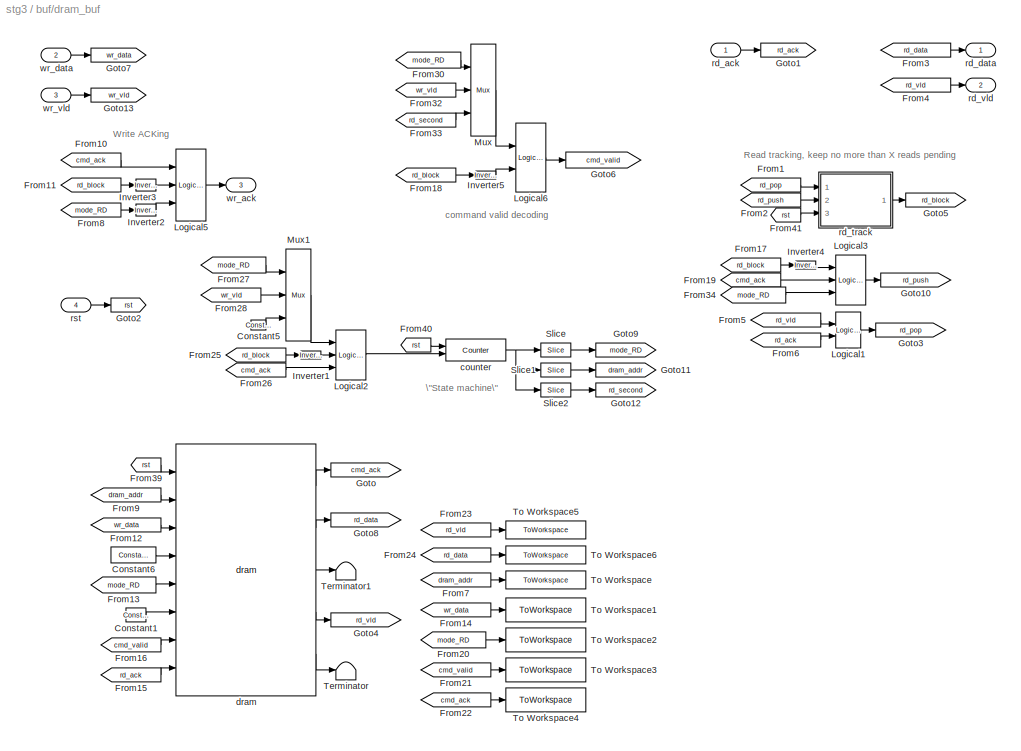
BLOCK [SubSystem] buf/dram_buf
  FunctionWithSeparateData = off
  MaskEnableString = on
  MaskIconFrame = on
  MaskIconOpaque = on
  MaskIconRotate = none
  MaskIconUnits = autoscale
  MaskPromptString = Block Size (2^n)
  MaskStyleString = edit
  MaskToolTipString = on
  MaskTunableValueString = on
  MaskValueString = fftsize+(nochan-1)-2
  MaskVariables = block_size=@1;
  MaskVisibilityString = on
  MinAlgLoopOccurrences = off
  Ports = [4, 3]
  RTWSystemCode = Auto
BLOCK [Reference] buf/dram_buf/Constant1  REF=xbsIndex_r4/Constant
  Ports = [0, 1]
  SourceBlock = xbsIndex_r4/Constant
  SourceType = Xilinx Constant Block Block
  arith_type = Unsigned
  bin_pt = 0
  block_type = constant
  block_version = 10.1.3
  carry = CIN
  const = 0
  dbl_ovrd = off
  dsp48_infoedit = The use of this block for DSP48 instructions is deprecated.  Please use the Opmode block.
  equ = P=C
  explicit_period = on
  has_advanced_control = 0
  inp1 = P
  inp2 = PCIN>>17
  n_bits = 32
  opr = +
  opselect = C
  period = 1
  sg_icon_stat = 20,14,1,1,white,blue,0,72d575a1,right
  sggui_pos = 20,20,400,346
BLOCK [Reference] buf/dram_buf/Constant5  REF=xbsIndex_r4/Constant
  Ports = [0, 1]
  SourceBlock = xbsIndex_r4/Constant
  SourceType = Xilinx Constant Block Block
  arith_type = Boolean
  bin_pt = 0
  block_type = constant
  block_version = 10.1.3
  carry = CIN
  const = 1
  dbl_ovrd = off
  dsp48_infoedit = The use of this block for DSP48 instructions is deprecated.  Please use the Opmode block.
  equ = P=C
  explicit_period = on
  has_advanced_control = 0
  inp1 = P
  inp2 = PCIN>>17
  n_bits = 32
  opr = +
  opselect = C
  period = 1
  sg_icon_stat = 15,10,1,1,white,blue,0,06094819,right
  sggui_pos = 20,20,400,346
BLOCK [Reference] buf/dram_buf/Constant6  REF=xbsIndex_r4/Constant
  Ports = [0, 1]
  SourceBlock = xbsIndex_r4/Constant
  SourceType = Xilinx Constant Block Block
  arith_type = Unsigned
  bin_pt = 0
  block_type = constant
  block_version = 10.1.3
  carry = CIN
  const = 2^18 - 1
  dbl_ovrd = off
  dsp48_infoedit = The use of this block for DSP48 instructions is deprecated.  Please use the Opmode block.
  equ = P=C
  explicit_period = on
  has_advanced_control = 0
  inp1 = P
  inp2 = PCIN>>17
  n_bits = 18
  opr = +
  opselect = C
  period = 1
  sg_icon_stat = 45,16,1,1,white,blue,0,c8bfc366,right
  sg_mask_display = fprintf('','COMMENT: begin icon graphics');\npatch([0 55 55 0 ],[0 0 26 26 ],[0.77 0.82 0.91]);\npatch([20 16 22 16 20 27 29 31 38 32 26 22 28 22 26 32 38 31 29 27 20 ],[3 7 13 19 23 23 21 23 23 17 23 19 13 7 3 9 3 3 5 3 3 ],[0.98 0.96 0.92]);\nplot([0 55 55 0 0 ],[0 0 26 26 0 ]);\nfprintf('','COMMENT: end icon graphics');\nfprintf('','COMMENT: begin icon text');\ncolor('black');port_label('output...<+55ch>
  sggui_pos = 20,20,400,346
BLOCK [From] buf/dram_buf/From1
  CloseFcn = tagdialog Close
  GotoTag = rd_pop
BLOCK [From] buf/dram_buf/From10
  CloseFcn = tagdialog Close
  GotoTag = cmd_ack
BLOCK [From] buf/dram_buf/From11
  CloseFcn = tagdialog Close
  GotoTag = rd_block
BLOCK [From] buf/dram_buf/From12
  CloseFcn = tagdialog Close
  GotoTag = wr_data
BLOCK [From] buf/dram_buf/From13
  CloseFcn = tagdialog Close
  GotoTag = mode_RD
BLOCK [From] buf/dram_buf/From14
  CloseFcn = tagdialog Close
  GotoTag = wr_data
BLOCK [From] buf/dram_buf/From15
  CloseFcn = tagdialog Close
  GotoTag = rd_ack
BLOCK [From] buf/dram_buf/From16
  CloseFcn = tagdialog Close
  GotoTag = cmd_valid
BLOCK [From] buf/dram_buf/From17
  CloseFcn = tagdialog Close
  GotoTag = rd_block
BLOCK [From] buf/dram_buf/From18
  CloseFcn = tagdialog Close
  GotoTag = rd_block
BLOCK [From] buf/dram_buf/From19
  CloseFcn = tagdialog Close
  GotoTag = cmd_ack
BLOCK [From] buf/dram_buf/From2
  CloseFcn = tagdialog Close
  GotoTag = rd_push
BLOCK [From] buf/dram_buf/From20
  CloseFcn = tagdialog Close
  GotoTag = mode_RD
BLOCK [From] buf/dram_buf/From21
  CloseFcn = tagdialog Close
  GotoTag = cmd_valid
BLOCK [From] buf/dram_buf/From22
  CloseFcn = tagdialog Close
  GotoTag = cmd_ack
BLOCK [From] buf/dram_buf/From23
  CloseFcn = tagdialog Close
  GotoTag = rd_vld
BLOCK [From] buf/dram_buf/From24
  CloseFcn = tagdialog Close
  GotoTag = rd_data
BLOCK [From] buf/dram_buf/From25
  CloseFcn = tagdialog Close
  GotoTag = rd_block
BLOCK [From] buf/dram_buf/From26
  CloseFcn = tagdialog Close
  GotoTag = cmd_ack
BLOCK [From] buf/dram_buf/From27
  CloseFcn = tagdialog Close
  GotoTag = mode_RD
BLOCK [From] buf/dram_buf/From28
  CloseFcn = tagdialog Close
  GotoTag = wr_vld
BLOCK [From] buf/dram_buf/From3
  CloseFcn = tagdialog Close
  GotoTag = rd_data
BLOCK [From] buf/dram_buf/From30
  CloseFcn = tagdialog Close
  GotoTag = mode_RD
BLOCK [From] buf/dram_buf/From32
  CloseFcn = tagdialog Close
  GotoTag = wr_vld
BLOCK [From] buf/dram_buf/From33
  CloseFcn = tagdialog Close
  GotoTag = rd_second
BLOCK [From] buf/dram_buf/From34
  CloseFcn = tagdialog Close
  GotoTag = mode_RD
BLOCK [From] buf/dram_buf/From39
  CloseFcn = tagdialog Close
  GotoTag = rst
BLOCK [From] buf/dram_buf/From4
  CloseFcn = tagdialog Close
  GotoTag = rd_vld
BLOCK [From] buf/dram_buf/From40
  CloseFcn = tagdialog Close
  GotoTag = rst
BLOCK [From] buf/dram_buf/From41
  CloseFcn = tagdialog Close
  GotoTag = rst
BLOCK [From] buf/dram_buf/From5
  CloseFcn = tagdialog Close
  GotoTag = rd_vld
BLOCK [From] buf/dram_buf/From6
  CloseFcn = tagdialog Close
  GotoTag = rd_ack
BLOCK [From] buf/dram_buf/From7
  CloseFcn = tagdialog Close
  GotoTag = dram_addr
BLOCK [From] buf/dram_buf/From8
  CloseFcn = tagdialog Close
  GotoTag = mode_RD
BLOCK [From] buf/dram_buf/From9
  CloseFcn = tagdialog Close
  GotoTag = dram_addr
BLOCK [Goto] buf/dram_buf/Goto
  GotoTag = cmd_ack
  TagVisibility = local
BLOCK [Goto] buf/dram_buf/Goto1
  GotoTag = rd_ack
  TagVisibility = local
BLOCK [Goto] buf/dram_buf/Goto10
  GotoTag = rd_push
  TagVisibility = local
BLOCK [Goto] buf/dram_buf/Goto11
  GotoTag = dram_addr
  TagVisibility = local
BLOCK [Goto] buf/dram_buf/Goto12
  GotoTag = rd_second
  TagVisibility = local
BLOCK [Goto] buf/dram_buf/Goto13
  GotoTag = wr_vld
  TagVisibility = local
BLOCK [Goto] buf/dram_buf/Goto2
  GotoTag = rst
  TagVisibility = local
BLOCK [Goto] buf/dram_buf/Goto3
  GotoTag = rd_pop
  TagVisibility = local
BLOCK [Goto] buf/dram_buf/Goto4
  GotoTag = rd_vld
  TagVisibility = local
BLOCK [Goto] buf/dram_buf/Goto5
  GotoTag = rd_block
  TagVisibility = local
BLOCK [Goto] buf/dram_buf/Goto6
  GotoTag = cmd_valid
  TagVisibility = local
BLOCK [Goto] buf/dram_buf/Goto7
  GotoTag = wr_data
  TagVisibility = local
BLOCK [Goto] buf/dram_buf/Goto8
  GotoTag = rd_data
  TagVisibility = local
BLOCK [Goto] buf/dram_buf/Goto9
  GotoTag = mode_RD
  TagVisibility = local
BLOCK [Reference] buf/dram_buf/Inverter1  REF=xbsIndex_r4/Inverter
  Ports = [1, 1]
  SourceBlock = xbsIndex_r4/Inverter
  SourceType = Xilinx Inverter Block
  block_type = inv
  block_version = 10.1.3
  dbl_ovrd = off
  en = off
  has_advanced_control = 0
  infoedit = Bitwise logical negation (one's complement) operator.
  latency = 0
  sg_icon_stat = 20,8,1,1,white,blue,0,1ab4a85f,right
  sggui_pos = -1,-1,-1,-1
  xl_area = [0,0,0,0,0,0,0]
  xl_use_area = off
BLOCK [Reference] buf/dram_buf/Inverter2  REF=xbsIndex_r4/Inverter
  Ports = [1, 1]
  SourceBlock = xbsIndex_r4/Inverter
  SourceType = Xilinx Inverter Block
  block_type = inv
  block_version = 10.1.3
  dbl_ovrd = off
  en = off
  has_advanced_control = 0
  infoedit = Bitwise logical negation (one's complement) operator.
  latency = 0
  sg_icon_stat = 20,12,1,1,white,blue,0,1ab4a85f,right
  sggui_pos = -1,-1,-1,-1
  xl_area = [0,0,0,0,0,0,0]
  xl_use_area = off
BLOCK [Reference] buf/dram_buf/Inverter3  REF=xbsIndex_r4/Inverter
  Ports = [1, 1]
  SourceBlock = xbsIndex_r4/Inverter
  SourceType = Xilinx Inverter Block
  block_type = inv
  block_version = 10.1.3
  dbl_ovrd = off
  en = off
  has_advanced_control = 0
  infoedit = Bitwise logical negation (one's complement) operator.
  latency = 0
  sg_icon_stat = 20,12,1,1,white,blue,0,1ab4a85f,right
  sggui_pos = -1,-1,-1,-1
  xl_area = [0,0,0,0,0,0,0]
  xl_use_area = off
BLOCK [Reference] buf/dram_buf/Inverter4  REF=xbsIndex_r4/Inverter
  Ports = [1, 1]
  SourceBlock = xbsIndex_r4/Inverter
  SourceType = Xilinx Inverter Block
  block_type = inv
  block_version = 10.1.3
  dbl_ovrd = off
  en = off
  has_advanced_control = 0
  infoedit = Bitwise logical negation (one's complement) operator.
  latency = 0
  sg_icon_stat = 20,8,1,1,white,blue,0,1ab4a85f,right
  sggui_pos = -1,-1,-1,-1
  xl_area = [0,0,0,0,0,0,0]
  xl_use_area = off
BLOCK [Reference] buf/dram_buf/Inverter5  REF=xbsIndex_r4/Inverter
  Ports = [1, 1]
  SourceBlock = xbsIndex_r4/Inverter
  SourceType = Xilinx Inverter Block
  block_type = inv
  block_version = 10.1.3
  dbl_ovrd = off
  en = off
  has_advanced_control = 0
  infoedit = Bitwise logical negation (one's complement) operator.
  latency = 0
  sg_icon_stat = 20,8,1,1,white,blue,0,1ab4a85f,right
  sggui_pos = -1,-1,-1,-1
  xl_area = [0,0,0,0,0,0,0]
  xl_use_area = off
BLOCK [Reference] buf/dram_buf/Logical1  REF=xbsIndex_r4/Logical
  Ports = [2, 1]
  SourceBlock = xbsIndex_r4/Logical
  SourceType = Xilinx Logical Block Block
  align_bp = on
  arith_type = Unsigned
  bin_pt = 0
  block_type = logical
  block_version = 10.1.3
  dbl_ovrd = off
  en = off
  has_advanced_control = 0
  inputs = 2
  latency = 0
  logical_function = AND
  n_bits = 16
  precision = Full
  sg_icon_stat = 25,36,1,1,white,blue,0,087b5522,right
  sggui_pos = 20,20,348,261
  xl_area = [0,0,0,0,0,0,0]
  xl_use_area = off
BLOCK [Reference] buf/dram_buf/Logical2  REF=xbsIndex_r4/Logical
  Ports = [3, 1]
  SourceBlock = xbsIndex_r4/Logical
  SourceType = Xilinx Logical Block Block
  align_bp = on
  arith_type = Unsigned
  bin_pt = 0
  block_type = logical
  block_version = 10.1.3
  dbl_ovrd = off
  en = off
  has_advanced_control = 0
  inputs = 3
  latency = 0
  logical_function = AND
  n_bits = 16
  precision = Full
  sg_icon_stat = 30,50,1,1,white,blue,0,5c2bfaa2,right
  sg_mask_display = fprintf('','COMMENT: begin icon graphics');\npatch([0 30 30 0 ],[0 0 50 50 ],[0.77 0.82 0.91]);\npatch([7 2 9 2 7 15 17 19 27 20 14 9 15 9 14 20 27 19 17 15 7 ],[13 18 25 32 37 37 35 37 37 30 36 31 25 19 14 20 13 13 15 13 13 ],[0.98 0.96 0.92]);\nplot([0 30 30 0 0 ],[0 0 50 50 0 ]);\nfprintf('','COMMENT: end icon graphics');\nfprintf('','COMMENT: begin icon text');\ncolor('black');disp('\\newlinea...<+76ch>
  sggui_pos = 20,20,348,261
  xl_area = [0,0,0,0,0,0,0]
  xl_use_area = off
BLOCK [Reference] buf/dram_buf/Logical3  REF=xbsIndex_r4/Logical
  Ports = [3, 1]
  SourceBlock = xbsIndex_r4/Logical
  SourceType = Xilinx Logical Block Block
  align_bp = on
  arith_type = Unsigned
  bin_pt = 0
  block_type = logical
  block_version = 10.1.3
  dbl_ovrd = off
  en = off
  has_advanced_control = 0
  inputs = 3
  latency = 0
  logical_function = AND
  n_bits = 16
  precision = Full
  sg_icon_stat = 30,50,1,1,white,blue,0,5c2bfaa2,right
  sg_mask_display = fprintf('','COMMENT: begin icon graphics');\npatch([0 30 30 0 ],[0 0 50 50 ],[0.77 0.82 0.91]);\npatch([7 2 9 2 7 15 17 19 27 20 14 9 15 9 14 20 27 19 17 15 7 ],[13 18 25 32 37 37 35 37 37 30 36 31 25 19 14 20 13 13 15 13 13 ],[0.98 0.96 0.92]);\nplot([0 30 30 0 0 ],[0 0 50 50 0 ]);\nfprintf('','COMMENT: end icon graphics');\nfprintf('','COMMENT: begin icon text');\ncolor('black');disp('\\newlinea...<+76ch>
  sggui_pos = 20,20,348,261
  xl_area = [0,0,0,0,0,0,0]
  xl_use_area = off
BLOCK [Reference] buf/dram_buf/Logical5  REF=xbsIndex_r4/Logical
  Ports = [3, 1]
  SourceBlock = xbsIndex_r4/Logical
  SourceType = Xilinx Logical Block Block
  align_bp = on
  arith_type = Unsigned
  bin_pt = 0
  block_type = logical
  block_version = 10.1.3
  dbl_ovrd = off
  en = off
  has_advanced_control = 0
  inputs = 3
  latency = 0
  logical_function = AND
  n_bits = 16
  precision = Full
  sg_icon_stat = 30,72,1,1,white,blue,0,5c2bfaa2,right
  sg_mask_display = fprintf('','COMMENT: begin icon graphics');\npatch([0 30 30 0 ],[0 0 72 72 ],[0.77 0.82 0.91]);\npatch([7 2 9 2 7 15 17 19 27 20 14 9 15 9 14 20 27 19 17 15 7 ],[24 29 36 43 48 48 46 48 48 41 47 42 36 30 25 31 24 24 26 24 24 ],[0.98 0.96 0.92]);\nplot([0 30 30 0 0 ],[0 0 72 72 0 ]);\nfprintf('','COMMENT: end icon graphics');\nfprintf('','COMMENT: begin icon text');\ncolor('black');disp('\\newlinea...<+76ch>
  sggui_pos = 20,20,348,261
  xl_area = [0,0,0,0,0,0,0]
  xl_use_area = off
BLOCK [Reference] buf/dram_buf/Logical6  REF=xbsIndex_r4/Logical
  Ports = [2, 1]
  SourceBlock = xbsIndex_r4/Logical
  SourceType = Xilinx Logical Block Block
  align_bp = on
  arith_type = Unsigned
  bin_pt = 0
  block_type = logical
  block_version = 10.1.3
  dbl_ovrd = off
  en = off
  has_advanced_control = 0
  inputs = 2
  latency = 0
  logical_function = AND
  n_bits = 16
  precision = Full
  sg_icon_stat = 30,69,1,1,white,blue,0,087b5522,right
  sggui_pos = 20,20,348,261
  xl_area = [0,0,0,0,0,0,0]
  xl_use_area = off
BLOCK [Reference] buf/dram_buf/Mux  REF=xbsIndex_r4/Mux
  Ports = [3, 1]
  SourceBlock = xbsIndex_r4/Mux
  SourceType = Xilinx Bus Multiplexer Block
  arith_type = Unsigned
  bin_pt = 14
  block_type = mux
  block_version = 10.1.3
  dbl_ovrd = off
  en = off
  has_advanced_control = 0
  inputs = 2
  latency = 0
  n_bits = 16
  overflow = Wrap
  precision = Full
  quantization = Truncate
  sg_icon_stat = 25,92,1,1,white,blue,3,613f58e1,right
  sg_mask_display = fprintf('','COMMENT: begin icon graphics');\npatch([0 45 45 0 ],[0 14.8571 89.1429 104 ],[0.77 0.82 0.91]);\npatch([10 3 14 3 10 22 25 28 41 31 21 14 25 14 21 31 41 28 25 22 10 ],[34 41 52 63 70 70 67 70 70 60 70 63 52 41 34 44 34 34 37 34 34 ],[0.98 0.96 0.92]);\nplot([0 45 45 0 0 ],[0 14.8571 89.1429 104 0 ]);\nfprintf('','COMMENT: end icon graphics');\nfprintf('','COMMENT: begin icon text');\nc...<+218ch>  <repeated x15 — deduplicated; at blocks: Mux, Mux1, Mux0, Mux2, Mux3, Mux4, Mux5, Mux6>
  sggui_pos = -1,-1,-1,-1
  xl_area = [0,0,0,0,0,0,0]
  xl_use_area = off
BLOCK [Reference] buf/dram_buf/Mux1  REF=xbsIndex_r4/Mux
  Ports = [3, 1]
  SourceBlock = xbsIndex_r4/Mux
  SourceType = Xilinx Bus Multiplexer Block
  arith_type = Unsigned
  bin_pt = 14
  block_type = mux
  block_version = 10.1.3
  dbl_ovrd = off
  en = off
  has_advanced_control = 0
  inputs = 2
  latency = 0
  n_bits = 16
  overflow = Wrap
  precision = Full
  quantization = Truncate
  sg_icon_stat = 25,92,1,1,white,blue,3,613f58e1,right
  sggui_pos = -1,-1,-1,-1
  xl_area = [0,0,0,0,0,0,0]
  xl_use_area = off
BLOCK [Reference] buf/dram_buf/Slice  REF=xbsIndex_r4/Slice
  Ports = [1, 1]
  SourceBlock = xbsIndex_r4/Slice
  SourceType = Xilinx Bit Slice Extractor Block
  base0 = LSB of Input
  base1 = MSB of Input
  bit0 = 0
  bit1 = 0
  block_type = slice
  block_version = 10.1.3
  boolean_output = on
  dbl_ovrd = off
  has_advanced_control = 0
  infoedit = Extracts a given range of bits from each input sample and presents it at the output.  The output type is ordinarily unsigned with binary point at zero, but can be Boolean when the slice is one bit wide.<P><P>Hardware notes: In hardware this block costs nothing.  <repeated x23 — deduplicated; at blocks: Slice, Slice1, Slice2, Slice3, Slice4, Slice5, Slice6>
  mode = Upper Bit Location + Width
  nbits = 1
  sg_icon_stat = 30,14,1,1,white,blue,0,b1026674,right
  sg_mask_display = fprintf('','COMMENT: begin icon graphics');\npatch([0 60 60 0 ],[0 0 30 30 ],[0.77 0.82 0.91]);\npatch([22 17 24 17 22 30 32 34 42 35 29 24 30 24 29 35 42 34 32 30 22 ],[3 8 15 22 27 27 25 27 27 20 26 21 15 9 4 10 3 3 5 3 3 ],[0.98 0.96 0.92]);\nplot([0 60 60 0 0 ],[0 0 30 30 0 ]);\nfprintf('','COMMENT: end icon graphics');\nfprintf('','COMMENT: begin icon text');\ncolor('black');port_label('outpu...<+55ch>  <repeated x23 — deduplicated; at blocks: Slice, Slice1, Slice2, Slice3, Slice4, Slice5, Slice6>
  sggui_pos = 20,20,449,376
BLOCK [Reference] buf/dram_buf/Slice1  REF=xbsIndex_r4/Slice
  Ports = [1, 1]
  SourceBlock = xbsIndex_r4/Slice
  SourceType = Xilinx Bit Slice Extractor Block
  base0 = LSB of Input
  base1 = LSB of Input
  bit0 = 1
  bit1 = 0
  block_type = slice
  block_version = 10.1.3
  boolean_output = off
  dbl_ovrd = off
  has_advanced_control = 0
  mode = Lower Bit Location + Width
  nbits = block_size - 1
  sg_icon_stat = 30,14,1,1,white,blue,0,b1026674,right
  sggui_pos = 20,20,449,376
BLOCK [Reference] buf/dram_buf/Slice2  REF=xbsIndex_r4/Slice
  Ports = [1, 1]
  SourceBlock = xbsIndex_r4/Slice
  SourceType = Xilinx Bit Slice Extractor Block
  base0 = LSB of Input
  base1 = LSB of Input
  bit0 = 0
  bit1 = 0
  block_type = slice
  block_version = 10.1.3
  boolean_output = on
  dbl_ovrd = off
  has_advanced_control = 0
  mode = Lower Bit Location + Width
  nbits = 1
  sg_icon_stat = 30,14,1,1,white,blue,0,b1026674,right
  sggui_pos = 20,20,449,376
BLOCK [Terminator] buf/dram_buf/Terminator
BLOCK [Terminator] buf/dram_buf/Terminator1
BLOCK [ToWorkspace] buf/dram_buf/To Workspace
  MaxDataPoints = inf
  SampleTime = -1
  SaveFormat = Array
  VariableName = dram_addr
BLOCK [ToWorkspace] buf/dram_buf/To Workspace1
  MaxDataPoints = inf
  SampleTime = -1
  SaveFormat = Array
  VariableName = dram_wr_data
BLOCK [ToWorkspace] buf/dram_buf/To Workspace2
  MaxDataPoints = inf
  SampleTime = -1
  SaveFormat = Array
  VariableName = dram_cmd_rnw
BLOCK [ToWorkspace] buf/dram_buf/To Workspace3
  MaxDataPoints = inf
  SampleTime = -1
  SaveFormat = Array
  VariableName = dram_cmd_valid
BLOCK [ToWorkspace] buf/dram_buf/To Workspace4
  MaxDataPoints = inf
  SampleTime = -1
  SaveFormat = Array
  VariableName = dram_cmd_ack
BLOCK [ToWorkspace] buf/dram_buf/To Workspace5
  MaxDataPoints = inf
  SampleTime = -1
  SaveFormat = Array
  VariableName = dram_rd_vld
BLOCK [ToWorkspace] buf/dram_buf/To Workspace6
  MaxDataPoints = inf
  SampleTime = -1
  SaveFormat = Array
  VariableName = dram_rd_data
BLOCK [Reference] buf/dram_buf/counter  REF=xbsIndex_r4/Counter
  Ports = [2, 1]
  SourceBlock = xbsIndex_r4/Counter
  SourceType = Xilinx Counter Block
  arith_type = Unsigned
  bin_pt = 0
  block_type = counter
  block_version = 10.1.3
  cnt_by_val = 1
  cnt_to = Inf
  cnt_type = Free Running
  dbl_ovrd = off
  en = on
  explicit_period = on
  has_advanced_control = 0
  implementation = Fabric
  infoedit = Hardware notes: Free running counters are the least expensive in hardware.  A count limited counter is implemented by combining a counter with a comparator.
  load_pin = off
  n_bits = block_size+1
  operation = Up
  period = 1
  rst = on
  sg_icon_stat = 60,22,1,1,white,blue,0,46c73e85,right
  sg_mask_display = fprintf('','COMMENT: begin icon graphics');\npatch([0 60 60 0 ],[0 0 60 60 ],[0.77 0.82 0.91]);\npatch([14 4 18 4 14 30 34 38 55 42 29 20 35 20 29 42 55 38 34 30 14 ],[6 16 30 44 54 54 50 54 54 41 54 45 30 15 6 19 6 6 10 6 6 ],[0.98 0.96 0.92]);\nplot([0 60 60 0 0 ],[0 0 60 60 0 ]);\nfprintf('','COMMENT: end icon graphics');\nfprintf('','COMMENT: begin icon text');\ncolor('black');port_label('inpu...<+143ch>
  sggui_pos = 20,20,348,619
  start_count = 0
  use_behavioral_HDL = off
  use_rpm = off
  xl_area = [0,0,0,0,0,0,0]
  xl_use_area = off
BLOCK [Reference] buf/dram_buf/dram  REF=xps_library/dram  (lib defined in mdl_00b5cec29cd0, mdl_02ab6ecaa3d1, +5 more)
  FunctionWithSeparateData = off
  Ports = [8, 5]
  RTWMemSecDataConstants = Inherit from model
  RTWMemSecDataInternal = Inherit from model
  RTWMemSecDataParameters = Inherit from model
  RTWMemSecFuncExecute = Inherit from model
  RTWMemSecFuncInitTerm = Inherit from model
  ShowPortLabels = FromPortIcon
  SourceBlock = xps_library/dram
  SourceType = dram
  SystemSampleTime = -1
  Tag = xps:dram
  arith_type = Unsigned
  bank_mgt = off
  bin_pt = 0
  bram_fifos = off
  dimm = 1
  disable_tag = off
  half_burst = off
  ip_clock = 266
  ram_depth = 18
  sample_period = 1
  use_sim = off
  use_sniffer = off
  wide_data = off
BLOCK [Inport] buf/dram_buf/rd_ack
  IconDisplay = Port number
  OutDataType = sfix(16)
  OutScaling = 2^0
BLOCK [Outport] buf/dram_buf/rd_data
  IconDisplay = Port number
  OutDataType = sfix(16)
  OutScaling = 2^0
BLOCK [SubSystem] buf/dram_buf/rd_track
  FunctionWithSeparateData = off
  MaskEnableString = on
  MaskIconFrame = on
  MaskIconOpaque = on
  MaskIconRotate = none
  MaskIconUnits = autoscale
  MaskPromptString = max
  MaskStyleString = edit
  MaskToolTipString = on
  MaskTunableValueString = on
  MaskValueString = 16
  MaskVariables = max=@1;
  MaskVisibilityString = on
  MinAlgLoopOccurrences = off
  Ports = [3, 1]
  RTWSystemCode = Auto
BLOCK [Reference] buf/dram_buf/rd_track/AddSub  REF=xbsIndex_r4/AddSub
  Ports = [3, 1]
  SourceBlock = xbsIndex_r4/AddSub
  SourceType = Xilinx Adder/Subtractor Block
  arith_type = Unsigned
  bin_pt = 0
  block_type = addsub
  block_version = 10.1.3
  dbl_ovrd = off
  en = off
  has_advanced_control = 0
  hw_selection = Fabric
  latency = 0
  mode = Addition or Subtraction
  n_bits = 10
  overflow = Wrap
  pipelined = off
  precision = User Defined
  quantization = Truncate
  sg_icon_stat = 50,52,1,1,white,blue,0,64741589,right
  sg_mask_display = fprintf('','COMMENT: begin icon graphics');\npatch([0 50 50 0 ],[0 0 52 52 ],[0.77 0.82 0.91]);\npatch([11 3 15 3 11 24 28 32 46 35 24 16 28 16 24 35 46 32 28 24 11 ],[6 14 26 38 46 46 42 46 46 35 46 38 26 14 6 17 6 6 10 6 6 ],[0.98 0.96 0.92]);\nplot([0 50 50 0 0 ],[0 0 52 52 0 ]);\nfprintf('','COMMENT: end icon graphics');\nfprintf('','COMMENT: begin icon text');\ncolor('black');port_label('inpu...<+211ch>
  sggui_pos = 20,20,348,344
  use_behavioral_HDL = off
  use_carryin = off
  use_carryout = off
  use_rpm = on
  xl_area = [0,0,0,0,0,0,0]
  xl_use_area = off
BLOCK [Reference] buf/dram_buf/rd_track/Constant  REF=xbsIndex_r4/Constant
  Ports = [0, 1]
  SourceBlock = xbsIndex_r4/Constant
  SourceType = Xilinx Constant Block Block
  arith_type = Unsigned
  bin_pt = 0
  block_type = constant
  block_version = 10.1.3
  carry = CIN
  const = 1
  dbl_ovrd = off
  dsp48_infoedit = The use of this block for DSP48 instructions is deprecated.  Please use the Opmode block.
  equ = P=C
  explicit_period = off
  has_advanced_control = 0
  inp1 = P
  inp2 = PCIN>>17
  n_bits = 2
  opr = +
  opselect = C
  period = 1
  sg_icon_stat = 20,12,1,1,white,blue,0,06094819,right
  sggui_pos = 20,20,400,346
BLOCK [Reference] buf/dram_buf/rd_track/Constant1  REF=xbsIndex_r4/Constant
  Ports = [0, 1]
  SourceBlock = xbsIndex_r4/Constant
  SourceType = Xilinx Constant Block Block
  arith_type = Unsigned
  bin_pt = 0
  block_type = constant
  block_version = 10.1.3
  carry = CIN
  const = max
  dbl_ovrd = off
  dsp48_infoedit = The use of this block for DSP48 instructions is deprecated.  Please use the Opmode block.
  equ = P=C
  explicit_period = off
  has_advanced_control = 0
  inp1 = P
  inp2 = PCIN>>17
  n_bits = 10
  opr = +
  opselect = C
  period = 1
  sg_icon_stat = 30,14,1,1,white,blue,0,636e1b21,right
  sg_mask_display = fprintf('','COMMENT: begin icon graphics');\npatch([0 55 55 0 ],[0 0 26 26 ],[0.77 0.82 0.91]);\npatch([20 16 22 16 20 27 29 31 38 32 26 22 28 22 26 32 38 31 29 27 20 ],[3 7 13 19 23 23 21 23 23 17 23 19 13 7 3 9 3 3 5 3 3 ],[0.98 0.96 0.92]);\nplot([0 55 55 0 0 ],[0 0 26 26 0 ]);\nfprintf('','COMMENT: end icon graphics');\nfprintf('','COMMENT: begin icon text');\ncolor('black');port_label('output...<+51ch>  <repeated x5 — deduplicated; at blocks: Constant1, Constant, Constant5, Constant3>
  sggui_pos = 20,20,400,346
BLOCK [Reference] buf/dram_buf/rd_track/Delay  REF=xbsIndex_r4/Delay
  Ports = [1, 1]
  SourceBlock = xbsIndex_r4/Delay
  SourceType = Xilinx Delay Block
  block_type = delay
  block_version = 10.1.3
  dbl_ovrd = off
  en = off
  has_advanced_control = 0
  infoedit = Hardware notes: A delay line is a chain, each link of which is an SRL16 followed by a flip-flop.
  latency = 1
  reg_retiming = off
  sg_icon_stat = 25,22,1,1,white,blue,0,fc531c0e,right
  sggui_pos = -1,-1,-1,-1
  xl_area = [0,0,0,0,0,0,0]
  xl_use_area = off
BLOCK [Reference] buf/dram_buf/rd_track/Delay1  REF=xbsIndex_r4/Delay
  Ports = [1, 1]
  SourceBlock = xbsIndex_r4/Delay
  SourceType = Xilinx Delay Block
  block_type = delay
  block_version = 10.1.3
  dbl_ovrd = off
  en = off
  has_advanced_control = 0
  infoedit = Hardware notes: A delay line is a chain, each link of which is an SRL16 followed by a flip-flop.
  latency = 1
  reg_retiming = off
  sg_icon_stat = 25,22,1,1,white,blue,0,fc531c0e,right
  sggui_pos = -1,-1,-1,-1
  xl_area = [0,0,0,0,0,0,0]
  xl_use_area = off
BLOCK [Reference] buf/dram_buf/rd_track/Delay2  REF=xbsIndex_r4/Delay
  Ports = [1, 1]
  SourceBlock = xbsIndex_r4/Delay
  SourceType = Xilinx Delay Block
  block_type = delay
  block_version = 10.1.3
  dbl_ovrd = off
  en = off
  has_advanced_control = 0
  infoedit = Hardware notes: A delay line is a chain, each link of which is an SRL16 followed by a flip-flop.
  latency = 1
  reg_retiming = off
  sg_icon_stat = 25,22,1,1,white,blue,0,fc531c0e,right
  sggui_pos = -1,-1,-1,-1
  xl_area = [0,0,0,0,0,0,0]
  xl_use_area = off
BLOCK [Reference] buf/dram_buf/rd_track/Logical  REF=xbsIndex_r4/Logical
  Ports = [2, 1]
  SourceBlock = xbsIndex_r4/Logical
  SourceType = Xilinx Logical Block Block
  align_bp = on
  arith_type = Unsigned
  bin_pt = 0
  block_type = logical
  block_version = 10.1.3
  dbl_ovrd = off
  en = off
  has_advanced_control = 0
  inputs = 2
  latency = 0
  logical_function = XOR
  n_bits = 16
  precision = Full
  sg_icon_stat = 35,35,1,1,white,blue,0,54bbd59c,right
  sg_mask_display = fprintf('','COMMENT: begin icon graphics');\npatch([0 55 55 0 ],[0 0 60 60 ],[0.77 0.82 0.91]);\npatch([13 4 17 4 13 28 32 36 52 40 28 19 32 19 28 40 52 36 32 28 13 ],[8 17 30 43 52 52 48 52 52 40 52 43 30 17 8 20 8 8 12 8 8 ],[0.98 0.96 0.92]);\nplot([0 55 55 0 0 ],[0 0 60 60 0 ]);\nfprintf('','COMMENT: end icon graphics');\nfprintf('','COMMENT: begin icon text');\ncolor('black');disp('\\newlinex...<+76ch>
  sggui_pos = 20,20,348,261
  xl_area = [0,0,0,0,0,0,0]
  xl_use_area = off
BLOCK [Reference] buf/dram_buf/rd_track/Relational  REF=xbsIndex_r4/Relational
  Ports = [2, 1]
  SourceBlock = xbsIndex_r4/Relational
  SourceType = Xilinx Arithmetic Relational Operator Block
  block_type = relational
  block_version = 10.1.3
  dbl_ovrd = off
  en = off
  has_advanced_control = 0
  latency = 0
  mode = a>=b
  sg_icon_stat = 55,56,1,1,white,blue,0,6d6ac162,right
  sg_mask_display = fprintf('','COMMENT: begin icon graphics');\npatch([0 55 55 0 ],[0 0 56 56 ],[0.77 0.82 0.91]);\npatch([13 4 17 4 13 28 32 36 52 40 28 19 32 19 28 40 52 36 32 28 13 ],[6 15 28 41 50 50 46 50 50 38 50 41 28 15 6 18 6 6 10 6 6 ],[0.98 0.96 0.92]);\nplot([0 55 55 0 0 ],[0 0 56 56 0 ]);\nfprintf('','COMMENT: end icon graphics');\nfprintf('','COMMENT: begin icon text');\ncolor('black');port_label('inpu...<+169ch>
  sggui_pos = 20,20,348,193
  xl_area = [0,0,0,0,0,0,0]
  xl_use_area = off
BLOCK [Scope] buf/dram_buf/rd_track/Scope
  DataFormat = StructureWithTime
  Floating = off
  LimitDataPoints = off
  NumInputPorts = 4
  Ports = [4]
  SampleTime = 0
  SaveName = ScopeData1
  YMax = 1~5~5~5
  YMin = -1~-5~-5~-5
  ZoomMode = xonly
BLOCK [Outport] buf/dram_buf/rd_track/block
  IconDisplay = Port number
BLOCK [Inport] buf/dram_buf/rd_track/pop
  IconDisplay = Port number
BLOCK [Inport] buf/dram_buf/rd_track/push
  IconDisplay = Port number
  Port = 2
BLOCK [Inport] buf/dram_buf/rd_track/rst
  IconDisplay = Port number
  Port = 3
BLOCK [Reference] buf/dram_buf/rd_track/track_reg  REF=xbsIndex_r4/Register
  Ports = [3, 1]
  SourceBlock = xbsIndex_r4/Register
  SourceType = Xilinx Register Block
  block_type = register
  block_version = 10.1.3
  dbl_ovrd = off
  en = on
  has_advanced_control = 0
  init = 0
  rst = on
  sg_icon_stat = 60,56,1,1,white,blue,0,923c1847,right
  sg_mask_display = fprintf('','COMMENT: begin icon graphics');\npatch([0 60 60 0 ],[0 0 56 56 ],[0.77 0.82 0.91]);\npatch([15 6 19 6 15 30 34 38 54 41 29 20 32 20 29 41 54 38 34 30 15 ],[6 15 28 41 50 50 46 50 50 37 49 40 28 16 7 19 6 6 10 6 6 ],[0.98 0.96 0.92]);\nplot([0 60 60 0 0 ],[0 0 56 56 0 ]);\nfprintf('','COMMENT: end icon graphics');\nfprintf('','COMMENT: begin icon text');\ncolor('black');port_label('inpu...<+237ch>
  sggui_pos = 20,20,348,193
  xl_area = [0,0,0,0,0,0,0]
  xl_use_area = off
BLOCK [Outport] buf/dram_buf/rd_vld
  IconDisplay = Port number
  OutDataType = sfix(16)
  OutScaling = 2^0
  Port = 2
BLOCK [Inport] buf/dram_buf/rst
  IconDisplay = Port number
  OutDataType = sfix(16)
  OutScaling = 2^0
  Port = 4
BLOCK [Outport] buf/dram_buf/wr_ack
  IconDisplay = Port number
  OutDataType = sfix(16)
  OutScaling = 2^0
  Port = 3
BLOCK [Inport] buf/dram_buf/wr_data
  IconDisplay = Port number
  OutDataType = sfix(16)
  OutScaling = 2^0
  Port = 2
BLOCK [Inport] buf/dram_buf/wr_vld
  IconDisplay = Port number
  OutDataType = sfix(16)
  OutScaling = 2^0
  Port = 3
BLOCK [SubSystem] buf/rd_collect
  FunctionWithSeparateData = off
  MinAlgLoopOccurrences = off
  Ports = [4, 3]
  RTWSystemCode = Auto
BLOCK [Reference] buf/rd_collect/Constant3  REF=xbsIndex_r4/Constant
  Ports = [0, 1]
  SourceBlock = xbsIndex_r4/Constant
  SourceType = Xilinx Constant Block Block
  arith_type = Unsigned
  bin_pt = 0
  block_type = constant
  block_version = 10.1.3
  carry = CIN
  const = 3
  dbl_ovrd = off
  dsp48_infoedit = The use of this block for DSP48 instructions is deprecated.  Please use the Opmode block.
  equ = P=C
  explicit_period = off
  has_advanced_control = 0
  inp1 = P
  inp2 = PCIN>>17
  n_bits = 2
  opr = +
  opselect = C
  period = 1
  sg_icon_stat = 15,14,1,1,white,blue,0,bdb1da60,right
  sggui_pos = 20,20,400,346
BLOCK [From] buf/rd_collect/From
  CloseFcn = tagdialog Close
  GotoTag = iack
BLOCK [From] buf/rd_collect/From1
  CloseFcn = tagdialog Close
  GotoTag = iack
BLOCK [From] buf/rd_collect/From11
  CloseFcn = tagdialog Close
  GotoTag = iack
BLOCK [From] buf/rd_collect/From13
  CloseFcn = tagdialog Close
  GotoTag = iack
BLOCK [From] buf/rd_collect/From2
  CloseFcn = tagdialog Close
  GotoTag = ivld
BLOCK [From] buf/rd_collect/From3
  CloseFcn = tagdialog Close
  GotoTag = ivld
BLOCK [From] buf/rd_collect/From4
  CloseFcn = tagdialog Close
  GotoTag = iack
BLOCK [From] buf/rd_collect/From5
  CloseFcn = tagdialog Close
  GotoTag = en3
BLOCK [From] buf/rd_collect/From6
  CloseFcn = tagdialog Close
  GotoTag = rd
BLOCK [From] buf/rd_collect/From7
  CloseFcn = tagdialog Close
  GotoTag = rst
BLOCK [From] buf/rd_collect/From8
  CloseFcn = tagdialog Close
  GotoTag = rd
BLOCK [From] buf/rd_collect/From9
  CloseFcn = tagdialog Close
  GotoTag = rd_index
BLOCK [Goto] buf/rd_collect/Goto1
  GotoTag = rd_index
  TagVisibility = local
BLOCK [Goto] buf/rd_collect/Goto2
  GotoTag = rst
  TagVisibility = local
BLOCK [Goto] buf/rd_collect/Goto3
  GotoTag = en3
  TagVisibility = local
BLOCK [Goto] buf/rd_collect/Goto4
  GotoTag = iack
  TagVisibility = local
BLOCK [Goto] buf/rd_collect/Goto5
  GotoTag = ivld
  TagVisibility = local
BLOCK [Goto] buf/rd_collect/Goto6
  GotoTag = rd
  TagVisibility = local
BLOCK [Reference] buf/rd_collect/Inverter  REF=xbsIndex_r4/Inverter
  Ports = [1, 1]
  SourceBlock = xbsIndex_r4/Inverter
  SourceType = Xilinx Inverter Block
  block_type = inv
  block_version = 10.1.3
  dbl_ovrd = off
  en = off
  has_advanced_control = 0
  infoedit = Bitwise logical negation (one's complement) operator.
  latency = 0
  sg_icon_stat = 25,16,1,1,white,blue,0,1ab4a85f,right
  sggui_pos = 20,20,348,251
  xl_area = [0,0,0,0,0,0,0]
  xl_use_area = off
BLOCK [Reference] buf/rd_collect/Inverter1  REF=xbsIndex_r4/Inverter
  Ports = [1, 1]
  SourceBlock = xbsIndex_r4/Inverter
  SourceType = Xilinx Inverter Block
  block_type = inv
  block_version = 10.1.3
  dbl_ovrd = off
  en = off
  has_advanced_control = 0
  infoedit = Bitwise logical negation (one's complement) operator.
  latency = 0
  sg_icon_stat = 25,16,1,1,white,blue,0,1ab4a85f,right
  sggui_pos = 20,20,348,251
  xl_area = [0,0,0,0,0,0,0]
  xl_use_area = off
BLOCK [Reference] buf/rd_collect/Logical  REF=xbsIndex_r4/Logical
  Ports = [2, 1]
  SourceBlock = xbsIndex_r4/Logical
  SourceType = Xilinx Logical Block Block
  align_bp = on
  arith_type = Unsigned
  bin_pt = 0
  block_type = logical
  block_version = 10.1.3
  dbl_ovrd = off
  en = off
  has_advanced_control = 0
  inputs = 2
  latency = 0
  logical_function = AND
  n_bits = 16
  precision = Full
  sg_icon_stat = 30,35,1,1,white,blue,0,087b5522,right
  sggui_pos = -1,-1,-1,-1
  xl_area = [0,0,0,0,0,0,0]
  xl_use_area = off
BLOCK [Reference] buf/rd_collect/Logical1  REF=xbsIndex_r4/Logical
  Ports = [2, 1]
  SourceBlock = xbsIndex_r4/Logical
  SourceType = Xilinx Logical Block Block
  align_bp = on
  arith_type = Unsigned
  bin_pt = 0
  block_type = logical
  block_version = 10.1.3
  dbl_ovrd = off
  en = off
  has_advanced_control = 0
  inputs = 2
  latency = 0
  logical_function = AND
  n_bits = 16
  precision = Full
  sg_icon_stat = 30,35,1,1,white,blue,0,087b5522,right
  sggui_pos = -1,-1,-1,-1
  xl_area = [0,0,0,0,0,0,0]
  xl_use_area = off
BLOCK [Reference] buf/rd_collect/Mux  REF=xbsIndex_r4/Mux
  Ports = [3, 1]
  SourceBlock = xbsIndex_r4/Mux
  SourceType = Xilinx Bus Multiplexer Block
  arith_type = Unsigned
  bin_pt = 14
  block_type = mux
  block_version = 10.1.3
  dbl_ovrd = off
  en = off
  has_advanced_control = 0
  inputs = 2
  latency = 0
  n_bits = 16
  overflow = Wrap
  precision = Full
  quantization = Truncate
  sg_icon_stat = 20,80,1,1,white,blue,3,613f58e1,right
  sggui_pos = -1,-1,-1,-1
  xl_area = [0,0,0,0,0,0,0]
  xl_use_area = off
BLOCK [Reference] buf/rd_collect/Mux1  REF=xbsIndex_r4/Mux
  Ports = [5, 1]
  SourceBlock = xbsIndex_r4/Mux
  SourceType = Xilinx Bus Multiplexer Block
  arith_type = Unsigned
  bin_pt = 14
  block_type = mux
  block_version = 10.1.3
  dbl_ovrd = off
  en = off
  has_advanced_control = 0
  inputs = 4
  latency = 0
  n_bits = 16
  overflow = Wrap
  precision = Full
  quantization = Truncate
  sg_icon_stat = 25,104,1,1,white,blue,3,27e96ab5,right
  sg_mask_display = fprintf('','COMMENT: begin icon graphics');\npatch([0 45 45 0 ],[0 14.8571 89.1429 104 ],[0.77 0.82 0.91]);\npatch([10 3 14 3 10 22 25 28 41 31 21 14 25 14 21 31 41 28 25 22 10 ],[34 41 52 63 70 70 67 70 70 60 70 63 52 41 34 44 34 34 37 34 34 ],[0.98 0.96 0.92]);\nplot([0 45 45 0 0 ],[0 14.8571 89.1429 104 0 ]);\nfprintf('','COMMENT: end icon graphics');\nfprintf('','COMMENT: begin icon text');\nc...<+306ch>
  sggui_pos = 20,20,348,303
  xl_area = [0,0,0,0,0,0,0]
  xl_use_area = off
BLOCK [Reference] buf/rd_collect/Register  REF=xbsIndex_r4/Register
  Ports = [2, 1]
  SourceBlock = xbsIndex_r4/Register
  SourceType = Xilinx Register Block
  block_type = register
  block_version = 10.1.3
  dbl_ovrd = off
  en = on
  has_advanced_control = 0
  init = 0
  rst = off
  sg_icon_stat = 40,36,1,1,white,blue,0,cc3303a0,right
  sggui_pos = 20,20,348,193
  xl_area = [0,0,0,0,0,0,0]
  xl_use_area = off
BLOCK [Reference] buf/rd_collect/Register4  REF=xbsIndex_r4/Register
  Ports = [2, 1]
  SourceBlock = xbsIndex_r4/Register
  SourceType = Xilinx Register Block
  block_type = register
  block_version = 10.1.3
  dbl_ovrd = off
  en = off
  has_advanced_control = 0
  init = 1
  rst = on
  sg_icon_stat = 40,36,1,1,white,blue,0,b6caf0d3,right
  sg_mask_display = fprintf('','COMMENT: begin icon graphics');\npatch([0 60 60 0 ],[0 0 56 56 ],[0.77 0.82 0.91]);\npatch([15 6 19 6 15 30 34 38 54 41 29 20 32 20 29 41 54 38 34 30 15 ],[6 15 28 41 50 50 46 50 50 37 49 40 28 16 7 19 6 6 10 6 6 ],[0.98 0.96 0.92]);\nplot([0 60 60 0 0 ],[0 0 56 56 0 ]);\nfprintf('','COMMENT: end icon graphics');\nfprintf('','COMMENT: begin icon text');\ncolor('black');port_label('inpu...<+193ch>
  sggui_pos = 20,20,348,193
  xl_area = [0,0,0,0,0,0,0]
  xl_use_area = off
BLOCK [Reference] buf/rd_collect/Relational3  REF=xbsIndex_r4/Relational
  Ports = [2, 1]
  SourceBlock = xbsIndex_r4/Relational
  SourceType = Xilinx Arithmetic Relational Operator Block
  block_type = relational
  block_version = 10.1.3
  dbl_ovrd = off
  en = off
  has_advanced_control = 0
  latency = 0
  mode = a=b
  sg_icon_stat = 50,27,1,1,white,blue,0,1b68ef8e,right
  sg_mask_display = fprintf('','COMMENT: begin icon graphics');\npatch([0 55 55 0 ],[0 0 56 56 ],[0.77 0.82 0.91]);\npatch([13 4 17 4 13 28 32 36 52 40 28 19 32 19 28 40 52 36 32 28 13 ],[6 15 28 41 50 50 46 50 50 38 50 41 28 15 6 18 6 6 10 6 6 ],[0.98 0.96 0.92]);\nplot([0 55 55 0 0 ],[0 0 56 56 0 ]);\nfprintf('','COMMENT: end icon graphics');\nfprintf('','COMMENT: begin icon text');\ncolor('black');port_label('inpu...<+168ch>  <repeated x14 — deduplicated; at blocks: Relational3, Relational, Relational1, Relational2, Relational5>
  sggui_pos = 20,20,348,193
  xl_area = [0,0,0,0,0,0,0]
  xl_use_area = off
BLOCK [Reference] buf/rd_collect/Slice  REF=xbsIndex_r4/Slice
  Ports = [1, 1]
  SourceBlock = xbsIndex_r4/Slice
  SourceType = Xilinx Bit Slice Extractor Block
  base0 = LSB of Input
  base1 = LSB of Input
  bit0 = 36*3
  bit1 = 0
  block_type = slice
  block_version = 10.1.3
  boolean_output = off
  dbl_ovrd = off
  has_advanced_control = 0
  mode = Lower Bit Location + Width
  nbits = 36
  sg_icon_stat = 30,14,1,1,white,blue,0,b1026674,right
  sggui_pos = 20,20,449,376
BLOCK [Reference] buf/rd_collect/Slice1  REF=xbsIndex_r4/Slice
  Ports = [1, 1]
  SourceBlock = xbsIndex_r4/Slice
  SourceType = Xilinx Bit Slice Extractor Block
  base0 = LSB of Input
  base1 = LSB of Input
  bit0 = 36*2
  bit1 = 0
  block_type = slice
  block_version = 10.1.3
  boolean_output = off
  dbl_ovrd = off
  has_advanced_control = 0
  mode = Lower Bit Location + Width
  nbits = 36
  sg_icon_stat = 30,14,1,1,white,blue,0,b1026674,right
  sggui_pos = 20,20,449,376
BLOCK [Reference] buf/rd_collect/Slice2  REF=xbsIndex_r4/Slice
  Ports = [1, 1]
  SourceBlock = xbsIndex_r4/Slice
  SourceType = Xilinx Bit Slice Extractor Block
  base0 = LSB of Input
  base1 = LSB of Input
  bit0 = 36*1
  bit1 = 0
  block_type = slice
  block_version = 10.1.3
  boolean_output = off
  dbl_ovrd = off
  has_advanced_control = 0
  mode = Lower Bit Location + Width
  nbits = 36
  sg_icon_stat = 30,14,1,1,white,blue,0,b1026674,right
  sggui_pos = 20,20,449,376
BLOCK [Reference] buf/rd_collect/Slice3  REF=xbsIndex_r4/Slice
  Ports = [1, 1]
  SourceBlock = xbsIndex_r4/Slice
  SourceType = Xilinx Bit Slice Extractor Block
  base0 = LSB of Input
  base1 = LSB of Input
  bit0 = 36*0
  bit1 = 0
  block_type = slice
  block_version = 10.1.3
  boolean_output = off
  dbl_ovrd = off
  has_advanced_control = 0
  mode = Lower Bit Location + Width
  nbits = 36
  sg_icon_stat = 30,14,1,1,white,blue,0,b1026674,right
  sggui_pos = 20,20,449,376
BLOCK [Inport] buf/rd_collect/din
  IconDisplay = Port number
BLOCK [Outport] buf/rd_collect/din_ack
  IconDisplay = Port number
BLOCK [Inport] buf/rd_collect/din_vld
  IconDisplay = Port number
  Port = 2
BLOCK [Outport] buf/rd_collect/dout
  IconDisplay = Port number
  Port = 2
BLOCK [Outport] buf/rd_collect/dout_vld
  IconDisplay = Port number
  Port = 3
BLOCK [Inport] buf/rd_collect/rd_en
  IconDisplay = Port number
  Port = 3
BLOCK [Reference] buf/rd_collect/rd_index  REF=xbsIndex_r4/Counter
  Ports = [2, 1]
  SourceBlock = xbsIndex_r4/Counter
  SourceType = Xilinx Counter Block
  arith_type = Unsigned
  bin_pt = 0
  block_type = counter
  block_version = 10.1.3
  cnt_by_val = 1
  cnt_to = Inf
  cnt_type = Free Running
  dbl_ovrd = off
  en = on
  explicit_period = on
  has_advanced_control = 0
  implementation = Fabric
  infoedit = Hardware notes: Free running counters are the least expensive in hardware.  A count limited counter is implemented by combining a counter with a comparator.
  load_pin = off
  n_bits = 2
  operation = Up
  period = 1
  rst = on
  sg_icon_stat = 40,33,1,1,white,blue,0,46c73e85,right
  sg_mask_display = fprintf('','COMMENT: begin icon graphics');\npatch([0 40 40 0 ],[0 0 33 33 ],[0.77 0.82 0.91]);\npatch([11 6 14 6 11 20 22 24 33 26 19 14 22 14 19 26 33 24 22 20 11 ],[4 9 17 25 30 30 28 30 30 23 30 25 17 9 4 11 4 4 6 4 4 ],[0.98 0.96 0.92]);\nplot([0 40 40 0 0 ],[0 0 33 33 0 ]);\nfprintf('','COMMENT: end icon graphics');\nfprintf('','COMMENT: begin icon text');\ncolor('black');port_label('input',...<+140ch>
  sggui_pos = 20,20,348,619
  start_count = 0
  use_behavioral_HDL = off
  use_rpm = off
  xl_area = [0,0,0,0,0,0,0]
  xl_use_area = off
BLOCK [Inport] buf/rd_collect/rst
  IconDisplay = Port number
  Port = 4
BLOCK [Inport] buf/rst
  IconDisplay = Port number
  Port = 5
BLOCK [Outport] buf/tge_data
  IconDisplay = Port number
BLOCK [Inport] buf/tge_rden
  IconDisplay = Port number
  Port = 4
BLOCK [Outport] buf/tge_valid
  IconDisplay = Port number
  Port = 2
BLOCK [Inport] buf/vacc_d0
  IconDisplay = Port number
BLOCK [Inport] buf/vacc_d1
  IconDisplay = Port number
  Port = 2
BLOCK [Inport] buf/vacc_lst
  IconDisplay = Port number
  Port = 6
BLOCK [Outport] buf/vacc_overrun
  IconDisplay = Port number
  Port = 3
BLOCK [Inport] buf/vacc_valid
  IconDisplay = Port number
  Port = 3
BLOCK [SubSystem] buf/wr_collect
  FunctionWithSeparateData = off
  MinAlgLoopOccurrences = off
  Ports = [4, 2]
  RTWSystemCode = Auto
BLOCK [Reference] buf/wr_collect/Concat  REF=xbsIndex_r4/Concat
  Ports = [2, 1]
  SourceBlock = xbsIndex_r4/Concat
  SourceType = Xilinx Bus Concatenator Block
  block_type = concat
  block_version = 10.1.3
  dbl_ovrd = off
  has_advanced_control = 0
  infoedit = Concatenates two or more inputs.  Output will be cast to an unsigned value with the binary point at zero.
  num_inputs = 2
  sg_icon_stat = 25,51,1,1,white,blue,0,df1e5aba,right
  sggui_pos = -1,-1,-1,-1
BLOCK [Reference] buf/wr_collect/Concat1  REF=xbsIndex_r4/Concat
  Ports = [4, 1]
  SourceBlock = xbsIndex_r4/Concat
  SourceType = Xilinx Bus Concatenator Block
  block_type = concat
  block_version = 10.1.3
  dbl_ovrd = off
  has_advanced_control = 0
  infoedit = Concatenates two or more inputs.  Output will be cast to an unsigned value with the binary point at zero.
  num_inputs = 4
  sg_icon_stat = 25,44,1,1,white,blue,0,ad63c393,right
  sggui_pos = 20,20,336,165
BLOCK [Reference] buf/wr_collect/Constant  REF=xbsIndex_r4/Constant
  Ports = [0, 1]
  SourceBlock = xbsIndex_r4/Constant
  SourceType = Xilinx Constant Block Block
  arith_type = Unsigned
  bin_pt = 0
  block_type = constant
  block_version = 10.1.3
  carry = CIN
  const = 0
  dbl_ovrd = off
  dsp48_infoedit = The use of this block for DSP48 instructions is deprecated.  Please use the Opmode block.
  equ = P=C
  explicit_period = off
  has_advanced_control = 0
  inp1 = P
  inp2 = PCIN>>17
  n_bits = 2
  opr = +
  opselect = C
  period = 1
  sg_icon_stat = 15,14,1,1,white,blue,0,72d575a1,right
  sggui_pos = 20,20,400,346
BLOCK [Reference] buf/wr_collect/Constant1  REF=xbsIndex_r4/Constant
  Ports = [0, 1]
  SourceBlock = xbsIndex_r4/Constant
  SourceType = Xilinx Constant Block Block
  arith_type = Unsigned
  bin_pt = 0
  block_type = constant
  block_version = 10.1.3
  carry = CIN
  const = 1
  dbl_ovrd = off
  dsp48_infoedit = The use of this block for DSP48 instructions is deprecated.  Please use the Opmode block.
  equ = P=C
  explicit_period = off
  has_advanced_control = 0
  inp1 = P
  inp2 = PCIN>>17
  n_bits = 2
  opr = +
  opselect = C
  period = 1
  sg_icon_stat = 15,14,1,1,white,blue,0,06094819,right
  sggui_pos = 20,20,400,346
BLOCK [Reference] buf/wr_collect/Constant2  REF=xbsIndex_r4/Constant
  Ports = [0, 1]
  SourceBlock = xbsIndex_r4/Constant
  SourceType = Xilinx Constant Block Block
  arith_type = Unsigned
  bin_pt = 0
  block_type = constant
  block_version = 10.1.3
  carry = CIN
  const = 2
  dbl_ovrd = off
  dsp48_infoedit = The use of this block for DSP48 instructions is deprecated.  Please use the Opmode block.
  equ = P=C
  explicit_period = off
  has_advanced_control = 0
  inp1 = P
  inp2 = PCIN>>17
  n_bits = 2
  opr = +
  opselect = C
  period = 1
  sg_icon_stat = 15,14,1,1,white,blue,0,702e86fb,right
  sggui_pos = 20,20,400,346
BLOCK [Reference] buf/wr_collect/Constant3  REF=xbsIndex_r4/Constant
  Ports = [0, 1]
  SourceBlock = xbsIndex_r4/Constant
  SourceType = Xilinx Constant Block Block
  arith_type = Unsigned
  bin_pt = 0
  block_type = constant
  block_version = 10.1.3
  carry = CIN
  const = 3
  dbl_ovrd = off
  dsp48_infoedit = The use of this block for DSP48 instructions is deprecated.  Please use the Opmode block.
  equ = P=C
  explicit_period = off
  has_advanced_control = 0
  inp1 = P
  inp2 = PCIN>>17
  n_bits = 2
  opr = +
  opselect = C
  period = 1
  sg_icon_stat = 15,14,1,1,white,blue,0,bdb1da60,right
  sggui_pos = 20,20,400,346
BLOCK [Reference] buf/wr_collect/Delay1  REF=xbsIndex_r4/Delay
  Ports = [1, 1]
  SourceBlock = xbsIndex_r4/Delay
  SourceType = Xilinx Delay Block
  block_type = delay
  block_version = 10.1.3
  dbl_ovrd = off
  en = off
  has_advanced_control = 0
  infoedit = Hardware notes: A delay line is a chain, each link of which is an SRL16 followed by a flip-flop.
  latency = 1
  reg_retiming = off
  sg_icon_stat = 20,16,1,1,white,blue,0,fc531c0e,right
  sggui_pos = -1,-1,-1,-1
  xl_area = [0,0,0,0,0,0,0]
  xl_use_area = off
BLOCK [From] buf/wr_collect/From
  CloseFcn = tagdialog Close
  GotoTag = en0
BLOCK [From] buf/wr_collect/From1
  CloseFcn = tagdialog Close
  GotoTag = en1
BLOCK [From] buf/wr_collect/From2
  CloseFcn = tagdialog Close
  GotoTag = en2
BLOCK [From] buf/wr_collect/From3
  CloseFcn = tagdialog Close
  GotoTag = en3
BLOCK [From] buf/wr_collect/From4
  CloseFcn = tagdialog Close
  GotoTag = en3
BLOCK [Goto] buf/wr_collect/Goto
  GotoTag = en0
  TagVisibility = local
BLOCK [Goto] buf/wr_collect/Goto1
  GotoTag = en1
  TagVisibility = local
BLOCK [Goto] buf/wr_collect/Goto2
  GotoTag = en2
  TagVisibility = local
BLOCK [Goto] buf/wr_collect/Goto3
  GotoTag = en3
  TagVisibility = local
BLOCK [Reference] buf/wr_collect/Register  REF=xbsIndex_r4/Register
  Ports = [2, 1]
  SourceBlock = xbsIndex_r4/Register
  SourceType = Xilinx Register Block
  block_type = register
  block_version = 10.1.3
  dbl_ovrd = off
  en = on
  has_advanced_control = 0
  init = 0
  rst = off
  sg_icon_stat = 40,36,1,1,white,blue,0,cc3303a0,right
  sggui_pos = 20,20,348,193
  xl_area = [0,0,0,0,0,0,0]
  xl_use_area = off
BLOCK [Reference] buf/wr_collect/Register1  REF=xbsIndex_r4/Register
  Ports = [2, 1]
  SourceBlock = xbsIndex_r4/Register
  SourceType = Xilinx Register Block
  block_type = register
  block_version = 10.1.3
  dbl_ovrd = off
  en = on
  has_advanced_control = 0
  init = 0
  rst = off
  sg_icon_stat = 40,36,1,1,white,blue,0,cc3303a0,right
  sggui_pos = 20,20,348,193
  xl_area = [0,0,0,0,0,0,0]
  xl_use_area = off
BLOCK [Reference] buf/wr_collect/Register2  REF=xbsIndex_r4/Register
  Ports = [2, 1]
  SourceBlock = xbsIndex_r4/Register
  SourceType = Xilinx Register Block
  block_type = register
  block_version = 10.1.3
  dbl_ovrd = off
  en = on
  has_advanced_control = 0
  init = 0
  rst = off
  sg_icon_stat = 40,36,1,1,white,blue,0,cc3303a0,right
  sggui_pos = 20,20,348,193
  xl_area = [0,0,0,0,0,0,0]
  xl_use_area = off
BLOCK [Reference] buf/wr_collect/Register3  REF=xbsIndex_r4/Register
  Ports = [2, 1]
  SourceBlock = xbsIndex_r4/Register
  SourceType = Xilinx Register Block
  block_type = register
  block_version = 10.1.3
  dbl_ovrd = off
  en = on
  has_advanced_control = 0
  init = 0
  rst = off
  sg_icon_stat = 40,36,1,1,white,blue,0,cc3303a0,right
  sggui_pos = 20,20,348,193
  xl_area = [0,0,0,0,0,0,0]
  xl_use_area = off
BLOCK [Reference] buf/wr_collect/Relational  REF=xbsIndex_r4/Relational
  Ports = [2, 1]
  SourceBlock = xbsIndex_r4/Relational
  SourceType = Xilinx Arithmetic Relational Operator Block
  block_type = relational
  block_version = 10.1.3
  dbl_ovrd = off
  en = off
  has_advanced_control = 0
  latency = 0
  mode = a=b
  sg_icon_stat = 50,27,1,1,white,blue,0,1b68ef8e,right
  sggui_pos = 20,20,348,193
  xl_area = [0,0,0,0,0,0,0]
  xl_use_area = off
BLOCK [Reference] buf/wr_collect/Relational1  REF=xbsIndex_r4/Relational
  Ports = [2, 1]
  SourceBlock = xbsIndex_r4/Relational
  SourceType = Xilinx Arithmetic Relational Operator Block
  block_type = relational
  block_version = 10.1.3
  dbl_ovrd = off
  en = off
  has_advanced_control = 0
  latency = 0
  mode = a=b
  sg_icon_stat = 50,27,1,1,white,blue,0,1b68ef8e,right
  sggui_pos = 20,20,348,193
  xl_area = [0,0,0,0,0,0,0]
  xl_use_area = off
BLOCK [Reference] buf/wr_collect/Relational2  REF=xbsIndex_r4/Relational
  Ports = [2, 1]
  SourceBlock = xbsIndex_r4/Relational
  SourceType = Xilinx Arithmetic Relational Operator Block
  block_type = relational
  block_version = 10.1.3
  dbl_ovrd = off
  en = off
  has_advanced_control = 0
  latency = 0
  mode = a=b
  sg_icon_stat = 50,27,1,1,white,blue,0,1b68ef8e,right
  sggui_pos = 20,20,348,193
  xl_area = [0,0,0,0,0,0,0]
  xl_use_area = off
BLOCK [Reference] buf/wr_collect/Relational3  REF=xbsIndex_r4/Relational
  Ports = [2, 1]
  SourceBlock = xbsIndex_r4/Relational
  SourceType = Xilinx Arithmetic Relational Operator Block
  block_type = relational
  block_version = 10.1.3
  dbl_ovrd = off
  en = off
  has_advanced_control = 0
  latency = 0
  mode = a=b
  sg_icon_stat = 50,27,1,1,white,blue,0,1b68ef8e,right
  sggui_pos = 20,20,348,193
  xl_area = [0,0,0,0,0,0,0]
  xl_use_area = off
BLOCK [Inport] buf/wr_collect/d0
  IconDisplay = Port number
BLOCK [Inport] buf/wr_collect/d1
  IconDisplay = Port number
  Port = 2
BLOCK [Outport] buf/wr_collect/dout
  IconDisplay = Port number
BLOCK [Outport] buf/wr_collect/dvld
  IconDisplay = Port number
  Port = 2
BLOCK [Reference] buf/wr_collect/index  REF=xbsIndex_r4/Counter
  Ports = [2, 1]
  SourceBlock = xbsIndex_r4/Counter
  SourceType = Xilinx Counter Block
  arith_type = Unsigned
  bin_pt = 0
  block_type = counter
  block_version = 10.1.3
  cnt_by_val = 1
  cnt_to = Inf
  cnt_type = Free Running
  dbl_ovrd = off
  en = on
  explicit_period = on
  has_advanced_control = 0
  implementation = Fabric
  infoedit = Hardware notes: Free running counters are the least expensive in hardware.  A count limited counter is implemented by combining a counter with a comparator.
  load_pin = off
  n_bits = 2
  operation = Up
  period = 1
  rst = on
  sg_icon_stat = 40,22,1,1,white,blue,0,46c73e85,right
  sg_mask_display = fprintf('','COMMENT: begin icon graphics');\npatch([0 60 60 0 ],[0 0 60 60 ],[0.77 0.82 0.91]);\npatch([14 4 18 4 14 30 34 38 55 42 29 20 35 20 29 42 55 38 34 30 14 ],[6 16 30 44 54 54 50 54 54 41 54 45 30 15 6 19 6 6 10 6 6 ],[0.98 0.96 0.92]);\nplot([0 60 60 0 0 ],[0 0 60 60 0 ]);\nfprintf('','COMMENT: end icon graphics');\nfprintf('','COMMENT: begin icon text');\ncolor('black');port_label('inpu...<+143ch>
  sggui_pos = 20,20,348,619
  start_count = 0
  use_behavioral_HDL = off
  use_rpm = off
  xl_area = [0,0,0,0,0,0,0]
  xl_use_area = off
BLOCK [Inport] buf/wr_collect/rst
  IconDisplay = Port number
  Port = 4
BLOCK [Inport] buf/wr_collect/vld
  IconDisplay = Port number
  Port = 3
BLOCK [Reference] error_led  REF=xps_library/gpio  (lib defined in mdl_00b5cec29cd0, mdl_02ab6ecaa3d1, +5 more)
  FunctionWithSeparateData = off
  Ports = [1, 1]
  RTWMemSecDataConstants = Inherit from model
  RTWMemSecDataInternal = Inherit from model
  RTWMemSecDataParameters = Inherit from model
  RTWMemSecFuncExecute = Inherit from model
  RTWMemSecFuncInitTerm = Inherit from model
  ShowPortLabels = FromPortIcon
  SourceBlock = xps_library/gpio
  SourceType = gpio
  SystemSampleTime = -1
  Tag = xps:gpio
  arith_type = Boolean
  bin_pt = 0
  bit_index = 2
  bitwidth = 1
  io_dir = out
  io_group = ROACH:led
  reg_clk_phase = 0
  reg_iob = on
  sample_period = 1
  termination = None
  use_ddr = off
  use_single_ended = off
BLOCK [Reference] error_reg  REF=xps_library/software register  (lib defined in mdl_00b5cec29cd0, mdl_02ab6ecaa3d1, +5 more)
  FunctionWithSeparateData = off
  Ports = [1, 1]
  RTWMemSecDataConstants = Inherit from model
  RTWMemSecDataInternal = Inherit from model
  RTWMemSecDataParameters = Inherit from model
  RTWMemSecFuncExecute = Inherit from model
  RTWMemSecFuncInitTerm = Inherit from model
  ShowPortLabels = FromPortIcon
  SourceBlock = xps_library/software register
  SystemSampleTime = -1
  Tag = xps:sw_reg
  arith_type = Unsigned
  bin_pt = 0
  bitwidth = 32
  gw_name = stg3_error_reg_user_data_in
  io_dir = To Processor
  sample_period = 1
BLOCK [SubSystem] mini_reorder
  FunctionWithSeparateData = off
  MinAlgLoopOccurrences = off
  Ports = [3, 3]
  RTWSystemCode = Auto
BLOCK [Reference] mini_reorder/Concat  REF=xbsIndex_r4/Concat
  Ports = [2, 1]
  SourceBlock = xbsIndex_r4/Concat
  SourceType = Xilinx Bus Concatenator Block
  block_type = concat
  block_version = 10.1.3
  dbl_ovrd = off
  has_advanced_control = 0
  infoedit = Concatenates two or more inputs.  Output will be cast to an unsigned value with the binary point at zero.
  num_inputs = 2
  sg_icon_stat = 20,47,1,1,white,blue,0,df1e5aba,right
  sggui_pos = -1,-1,-1,-1
BLOCK [Reference] mini_reorder/Concat1  REF=xbsIndex_r4/Concat
  Ports = [2, 1]
  SourceBlock = xbsIndex_r4/Concat
  SourceType = Xilinx Bus Concatenator Block
  block_type = concat
  block_version = 10.1.3
  dbl_ovrd = off
  has_advanced_control = 0
  infoedit = Concatenates two or more inputs.  Output will be cast to an unsigned value with the binary point at zero.
  num_inputs = 2
  sg_icon_stat = 20,47,1,1,white,blue,0,df1e5aba,right
  sggui_pos = -1,-1,-1,-1
BLOCK [Reference] mini_reorder/Constant5  REF=xbsIndex_r4/Constant
  Ports = [0, 1]
  SourceBlock = xbsIndex_r4/Constant
  SourceType = Xilinx Constant Block Block
  arith_type = Boolean
  bin_pt = 0
  block_type = constant
  block_version = 10.1.3
  carry = CIN
  const = 1
  dbl_ovrd = off
  dsp48_infoedit = The use of this block for DSP48 instructions is deprecated.  Please use the Opmode block.
  equ = P=C
  explicit_period = on
  has_advanced_control = 0
  inp1 = P
  inp2 = PCIN>>17
  n_bits = 1
  opr = +
  opselect = C
  period = 1
  sg_icon_stat = 15,10,1,1,white,blue,0,06094819,right
  sggui_pos = 20,20,400,346
BLOCK [Reference] mini_reorder/Delay1  REF=xbsIndex_r4/Delay
  Ports = [1, 1]
  SourceBlock = xbsIndex_r4/Delay
  SourceType = Xilinx Delay Block
  block_type = delay
  block_version = 10.1.3
  dbl_ovrd = off
  en = off
  has_advanced_control = 0
  infoedit = Hardware notes: A delay line is a chain, each link of which is an SRL16 followed by a flip-flop.
  latency = 1
  reg_retiming = off
  sg_icon_stat = 15,14,1,1,white,blue,0,fc531c0e,right
  sggui_pos = -1,-1,-1,-1
  xl_area = [0,0,0,0,0,0,0]
  xl_use_area = off
BLOCK [Reference] mini_reorder/Delay16  REF=xbsIndex_r4/Delay
  Ports = [1, 1]
  SourceBlock = xbsIndex_r4/Delay
  SourceType = Xilinx Delay Block
  block_type = delay
  block_version = 10.1.3
  dbl_ovrd = off
  en = off
  has_advanced_control = 0
  infoedit = Hardware notes: A delay line is a chain, each link of which is an SRL16 followed by a flip-flop.
  latency = 1
  reg_retiming = off
  sg_icon_stat = 15,14,1,1,white,blue,0,fc531c0e,right
  sggui_pos = -1,-1,-1,-1
  xl_area = [0,0,0,0,0,0,0]
  xl_use_area = off
BLOCK [Reference] mini_reorder/Delay17  REF=xbsIndex_r4/Delay
  Ports = [1, 1]
  SourceBlock = xbsIndex_r4/Delay
  SourceType = Xilinx Delay Block
  block_type = delay
  block_version = 10.1.3
  dbl_ovrd = off
  en = off
  has_advanced_control = 0
  infoedit = Hardware notes: A delay line is a chain, each link of which is an SRL16 followed by a flip-flop.
  latency = 1
  reg_retiming = off
  sg_icon_stat = 15,14,1,1,white,blue,0,fc531c0e,right
  sggui_pos = -1,-1,-1,-1
  xl_area = [0,0,0,0,0,0,0]
  xl_use_area = off
BLOCK [Reference] mini_reorder/Delay2  REF=xbsIndex_r4/Delay
  Ports = [1, 1]
  SourceBlock = xbsIndex_r4/Delay
  SourceType = Xilinx Delay Block
  block_type = delay
  block_version = 10.1.3
  dbl_ovrd = off
  en = off
  has_advanced_control = 0
  infoedit = Hardware notes: A delay line is a chain, each link of which is an SRL16 followed by a flip-flop.
  latency = 1
  reg_retiming = off
  sg_icon_stat = 15,14,1,1,white,blue,0,fc531c0e,right
  sggui_pos = -1,-1,-1,-1
  xl_area = [0,0,0,0,0,0,0]
  xl_use_area = off
BLOCK [Inport] mini_reorder/In1
  IconDisplay = Port number
  Port = 2
BLOCK [Inport] mini_reorder/In2
  IconDisplay = Port number
  Port = 3
BLOCK [Reference] mini_reorder/Mux  REF=xbsIndex_r4/Mux
  Ports = [3, 1]
  SourceBlock = xbsIndex_r4/Mux
  SourceType = Xilinx Bus Multiplexer Block
  arith_type = Unsigned
  bin_pt = 14
  block_type = mux
  block_version = 10.1.3
  dbl_ovrd = off
  en = off
  has_advanced_control = 0
  inputs = 2
  latency = 0
  n_bits = 16
  overflow = Wrap
  precision = Full
  quantization = Truncate
  sg_icon_stat = 30,104,1,1,white,blue,3,613f58e1,right
  sggui_pos = -1,-1,-1,-1
  xl_area = [0,0,0,0,0,0,0]
  xl_use_area = off
BLOCK [Outport] mini_reorder/Out1
  IconDisplay = Port number
  Port = 2
BLOCK [Outport] mini_reorder/Out2
  IconDisplay = Port number
  Port = 3
BLOCK [Reference] mini_reorder/Slice  REF=xbsIndex_r4/Slice
  Ports = [1, 1]
  SourceBlock = xbsIndex_r4/Slice
  SourceType = Xilinx Bit Slice Extractor Block
  base0 = LSB of Input
  base1 = LSB of Input
  bit0 = 18
  bit1 = 0
  block_type = slice
  block_version = 10.1.3
  boolean_output = off
  dbl_ovrd = off
  has_advanced_control = 0
  mode = Lower Bit Location + Width
  nbits = 18
  sg_icon_stat = 25,16,1,1,white,blue,0,b1026674,right
  sggui_pos = 20,20,449,376
BLOCK [Reference] mini_reorder/Slice1  REF=xbsIndex_r4/Slice
  Ports = [1, 1]
  SourceBlock = xbsIndex_r4/Slice
  SourceType = Xilinx Bit Slice Extractor Block
  base0 = LSB of Input
  base1 = LSB of Input
  bit0 = 0
  bit1 = 0
  block_type = slice
  block_version = 10.1.3
  boolean_output = off
  dbl_ovrd = off
  has_advanced_control = 0
  mode = Lower Bit Location + Width
  nbits = 18
  sg_icon_stat = 25,16,1,1,white,blue,0,b1026674,right
  sggui_pos = 20,20,449,376
BLOCK [Terminator] mini_reorder/Terminator5
BLOCK [SubSystem] mini_reorder/reorder
  AncestorBlock = casper_library/Reorder/reorder
  AttributesFormatString = order=10
  FunctionWithSeparateData = off
  MaskCallbackString = ||||
  MaskEnableString = on,on,on,on,on
  MaskHelp = eval('xlWeb([getenv(''MLIB_ROOT''), ''<path>''])')
  MaskIconFrame = on
  MaskIconOpaque = on
  MaskIconRotate = none
  MaskIconUnits = autoscale
  MaskInitialization = reorder_init(gcb, ...\n    'map', map, ...\n    'n_inputs', n_inputs, ...\n    'bram_latency', bram_latency, ...\n    'map_latency', map_latency, ...\n    'double_buffer', double_buffer);
  MaskPromptString = Output Order:|Number of inputs|BRAM Latency|Map Latency|Double Buffer
  MaskSelfModifiable = on
  MaskStyleString = edit,edit,edit,edit,edit
  MaskTabNameString = ,,,,
  MaskToolTipString = on,on,on,on,on
  MaskTunableValueString = on,on,on,on,on
  MaskType = reorder
  MaskValueString = getfield( getfield( get_param( gcb,'UserData' ), 'parameters'),'map')|1|3|3|0
  MaskVarAliasString = ,,,,
  MaskVariables = map=@1;n_inputs=@2;bram_latency=@3;map_latency=@4;double_buffer=@5;
  MaskVisibilityString = on,on,on,on,on
  MinAlgLoopOccurrences = off
  Ports = [3, 3]
  RTWSystemCode = Auto
  UserData = DataTag1
  UserDataPersistent = on
BLOCK [Reference] mini_reorder/reorder/Counter  REF=xbsIndex_r4/Counter
  Ports = [2, 1]
  SourceBlock = xbsIndex_r4/Counter
  SourceType = Xilinx Counter Block
  arith_type = Unsigned
  bin_pt = 0
  block_type = counter
  block_version = 10.1.3
  cnt_by_val = 1
  cnt_to = 10239
  cnt_type = Count Limited
  dbl_ovrd = off
  en = on
  explicit_period = on
  has_advanced_control = 0
  implementation = Fabric
  infoedit = Hardware notes: Free running counters are the least expensive in hardware.  A count limited counter is implemented by combining a counter with a comparator.
  load_pin = off
  n_bits = 14
  operation = Up
  period = 1
  rst = on
  sg_icon_stat = 50,55,1,1,white,blue,0,46c73e85,right
  sg_mask_display = fprintf('','COMMENT: begin icon graphics');\npatch([0 50 50 0 ],[0 0 55 55 ],[0.77 0.82 0.91]);\npatch([11 3 15 3 11 24 28 32 46 35 24 16 28 16 24 35 46 32 28 24 11 ],[8 16 28 40 48 48 44 48 48 37 48 40 28 16 8 19 8 8 12 8 8 ],[0.98 0.96 0.92]);\nplot([0 50 50 0 0 ],[0 0 55 55 0 ]);\nfprintf('','COMMENT: end icon graphics');\nfprintf('','COMMENT: begin icon text');\ncolor('black');port_label('inpu...<+143ch>
  sggui_pos = -1,-1,-1,-1
  start_count = 0
  use_behavioral_HDL = off
  use_rpm = off
  xl_area = [0,0,0,0,0,0,0]
  xl_use_area = off
BLOCK [Reference] mini_reorder/reorder/Mux  REF=xbsIndex_r4/Mux
  Ports = [11, 1]
  SourceBlock = xbsIndex_r4/Mux
  SourceType = Xilinx Bus Multiplexer Block
  arith_type = Unsigned
  bin_pt = 14
  block_type = mux
  block_version = 10.1.3
  dbl_ovrd = off
  en = off
  has_advanced_control = 0
  inputs = 10
  latency = 1
  n_bits = 16
  overflow = Wrap
  precision = Full
  quantization = Truncate
  sg_icon_stat = 25,228,1,1,white,blue,3,03e25499,right
  sg_mask_display = fprintf('','COMMENT: begin icon graphics');\npatch([0 45 45 0 ],[0 14.8571 89.1429 104 ],[0.77 0.82 0.91]);\npatch([10 3 14 3 10 22 25 28 41 31 21 14 25 14 21 31 41 28 25 22 10 ],[34 41 52 63 70 70 67 70 70 60 70 63 52 41 34 44 34 34 37 34 34 ],[0.98 0.96 0.92]);\nplot([0 45 45 0 0 ],[0 14.8571 89.1429 104 0 ]);\nfprintf('','COMMENT: end icon graphics');\nfprintf('','COMMENT: begin icon text');\nc...<+580ch>
  sggui_pos = -1,-1,-1,-1
  xl_area = [0,0,0,0,0,0,0]
  xl_use_area = off
BLOCK [Reference] mini_reorder/reorder/Slice1  REF=xbsIndex_r4/Slice
  Ports = [1, 1]
  SourceBlock = xbsIndex_r4/Slice
  SourceType = Xilinx Bit Slice Extractor Block
  base0 = LSB of Input
  base1 = MSB of Input
  bit0 = 0
  bit1 = 0
  block_type = slice
  block_version = 10.1.3
  boolean_output = off
  dbl_ovrd = off
  has_advanced_control = 0
  mode = Upper Bit Location + Width
  nbits = 4
  sg_icon_stat = 30,16,1,1,white,blue,0,b1026674,right
  sggui_pos = -1,-1,-1,-1
BLOCK [Reference] mini_reorder/reorder/Slice2  REF=xbsIndex_r4/Slice
  Ports = [1, 1]
  SourceBlock = xbsIndex_r4/Slice
  SourceType = Xilinx Bit Slice Extractor Block
  base0 = LSB of Input
  base1 = MSB of Input
  bit0 = 0
  bit1 = 0
  block_type = slice
  block_version = 10.1.3
  boolean_output = off
  dbl_ovrd = off
  has_advanced_control = 0
  mode = Lower Bit Location + Width
  nbits = 10
  sg_icon_stat = 30,16,1,1,white,blue,0,b1026674,right
  sggui_pos = -1,-1,-1,-1
BLOCK [Reference] mini_reorder/reorder/bram0  REF=xbsIndex_r4/Single Port RAM
  Ports = [3, 1]
  SourceBlock = xbsIndex_r4/Single Port RAM
  SourceType = Xilinx Single Port Random Access Memory Block
  block_type = spram
  block_version = 10.1.3
  dbl_ovrd = off
  depth = 1024
  distributed_mem = Block RAM
  en = off
  has_advanced_control = 0
  initVector = sin(pi*(0:15)/16)
  init_reg = 0
  latency = 3
  optimize = Area
  rst = off
  sg_icon_stat = 65,54,1,1,white,blue,0,fe218027,right
  sg_mask_display = fprintf('','COMMENT: begin icon graphics');\npatch([0 60 60 0 ],[0 0 54 54 ],[0.77 0.82 0.91]);\npatch([16 7 20 7 16 30 34 38 53 41 29 21 35 21 29 41 53 38 34 30 16 ],[6 15 28 41 50 50 46 50 50 38 50 42 28 14 6 18 6 6 10 6 6 ],[0.98 0.96 0.92]);\nplot([0 60 60 0 0 ],[0 0 54 54 0 ]);\nfprintf('','COMMENT: end icon graphics');\nfprintf('','COMMENT: begin icon text');\ncolor('black');port_label('inpu...<+191ch>
  sggui_pos = -1,-1,-1,-1
  use_rpm = on
  write_mode = Read Before Write
  xl_area = [0,0,0,0,0,0,0]
  xl_use_area = off
BLOCK [Reference] mini_reorder/reorder/delay_d0  REF=xbsIndex_r4/Delay
  Ports = [1, 1]
  SourceBlock = xbsIndex_r4/Delay
  SourceType = Xilinx Delay Block
  block_type = delay
  block_version = 10.1.3
  dbl_ovrd = off
  en = off
  has_advanced_control = 0
  infoedit = Hardware notes: A delay line is a chain, each link of which is an SRL16 followed by a flip-flop.
  latency = 27
  reg_retiming = off
  sg_icon_stat = 40,16,1,1,white,blue,0,c1b5dd39,right
  sg_mask_display = fprintf('','COMMENT: begin icon graphics');\npatch([0 60 60 0 ],[0 0 56 56 ],[0.77 0.82 0.91]);\npatch([15 6 19 6 15 30 34 38 54 41 29 20 32 20 29 41 54 38 34 30 15 ],[6 15 28 41 50 50 46 50 50 37 49 40 28 16 7 19 6 6 10 6 6 ],[0.98 0.96 0.92]);\nplot([0 60 60 0 0 ],[0 0 56 56 0 ]);\nfprintf('','COMMENT: end icon graphics');\nfprintf('','COMMENT: begin icon text');\ncolor('black');disp('z^{-27}','...<+56ch>  <repeated x4 — deduplicated; at blocks: delay_d0, delay_sel, delay_we, pre_sync_delay>
  sggui_pos = -1,-1,-1,-1
  xl_area = [0,0,0,0,0,0,0]
  xl_use_area = off
BLOCK [Reference] mini_reorder/reorder/delay_din0  REF=xbsIndex_r4/Delay
  Ports = [1, 1]
  SourceBlock = xbsIndex_r4/Delay
  SourceType = Xilinx Delay Block
  block_type = delay
  block_version = 9.1.01
  dbl_ovrd = off
  en = off
  has_advanced_control = 0
  infoedit = Hardware notes: A delay line is a chain, each link of which is an SRL16 followed by a flip-flop.
  latency = 28
  reg_retiming = off
  sg_icon_stat = 40,20,1,1,white,blue,0,0e2d9ff6,right
  sg_mask_display = fprintf('','COMMENT: begin icon graphics');\npatch([0 60 60 0 ],[0 0 56 56 ],[0.77 0.82 0.91]);\npatch([15 6 19 6 15 30 34 38 54 41 29 20 32 20 29 41 54 38 34 30 15 ],[6 15 28 41 50 50 46 50 50 37 49 40 28 16 7 19 6 6 10 6 6 ],[0.98 0.96 0.92]);\nplot([0 60 60 0 0 ],[0 0 56 56 0 ]);\nfprintf('','COMMENT: end icon graphics');\nfprintf('','COMMENT: begin icon text');\ncolor('black');disp('z^{-28}','...<+56ch>
  sggui_pos = -1,-1,-1,-1
  xl_area = [0, 0, 0, 0, 0, 0, 0]
  xl_use_area = off
BLOCK [Reference] mini_reorder/reorder/delay_map1  REF=xbsIndex_r4/Delay
  Ports = [1, 1]
  SourceBlock = xbsIndex_r4/Delay
  SourceType = Xilinx Delay Block
  block_type = delay
  block_version = 10.1.3
  dbl_ovrd = off
  en = off
  has_advanced_control = 0
  infoedit = Hardware notes: A delay line is a chain, each link of which is an SRL16 followed by a flip-flop.
  latency = 8*map_latency
  reg_retiming = off
  sg_icon_stat = 40,20,1,1,white,blue,0,6807a6af,right
  sg_mask_display = fprintf('','COMMENT: begin icon graphics');\npatch([0 60 60 0 ],[0 0 56 56 ],[0.77 0.82 0.91]);\npatch([15 6 19 6 15 30 34 38 54 41 29 20 32 20 29 41 54 38 34 30 15 ],[6 15 28 41 50 50 46 50 50 37 49 40 28 16 7 19 6 6 10 6 6 ],[0.98 0.96 0.92]);\nplot([0 60 60 0 0 ],[0 0 56 56 0 ]);\nfprintf('','COMMENT: end icon graphics');\nfprintf('','COMMENT: begin icon text');\ncolor('black');disp('z^{-24}','...<+56ch>
  sggui_pos = -1,-1,-1,-1
  xl_area = [0,0,0,0,0,0,0]
  xl_use_area = off
BLOCK [Reference] mini_reorder/reorder/delay_map2  REF=xbsIndex_r4/Delay
  Ports = [1, 1]
  SourceBlock = xbsIndex_r4/Delay
  SourceType = Xilinx Delay Block
  block_type = delay
  block_version = 10.1.3
  dbl_ovrd = off
  en = off
  has_advanced_control = 0
  infoedit = Hardware notes: A delay line is a chain, each link of which is an SRL16 followed by a flip-flop.
  latency = 7*map_latency
  reg_retiming = off
  sg_icon_stat = 40,20,1,1,white,blue,0,8220d122,right
  sg_mask_display = fprintf('','COMMENT: begin icon graphics');\npatch([0 60 60 0 ],[0 0 56 56 ],[0.77 0.82 0.91]);\npatch([15 6 19 6 15 30 34 38 54 41 29 20 32 20 29 41 54 38 34 30 15 ],[6 15 28 41 50 50 46 50 50 37 49 40 28 16 7 19 6 6 10 6 6 ],[0.98 0.96 0.92]);\nplot([0 60 60 0 0 ],[0 0 56 56 0 ]);\nfprintf('','COMMENT: end icon graphics');\nfprintf('','COMMENT: begin icon text');\ncolor('black');disp('z^{-21}','...<+56ch>
  sggui_pos = -1,-1,-1,-1
  xl_area = [0,0,0,0,0,0,0]
  xl_use_area = off
BLOCK [Reference] mini_reorder/reorder/delay_map3  REF=xbsIndex_r4/Delay
  Ports = [1, 1]
  SourceBlock = xbsIndex_r4/Delay
  SourceType = Xilinx Delay Block
  block_type = delay
  block_version = 10.1.3
  dbl_ovrd = off
  en = off
  has_advanced_control = 0
  infoedit = Hardware notes: A delay line is a chain, each link of which is an SRL16 followed by a flip-flop.
  latency = 6*map_latency
  reg_retiming = off
  sg_icon_stat = 40,20,1,1,white,blue,0,0528234a,right
  sg_mask_display = fprintf('','COMMENT: begin icon graphics');\npatch([0 60 60 0 ],[0 0 56 56 ],[0.77 0.82 0.91]);\npatch([15 6 19 6 15 30 34 38 54 41 29 20 32 20 29 41 54 38 34 30 15 ],[6 15 28 41 50 50 46 50 50 37 49 40 28 16 7 19 6 6 10 6 6 ],[0.98 0.96 0.92]);\nplot([0 60 60 0 0 ],[0 0 56 56 0 ]);\nfprintf('','COMMENT: end icon graphics');\nfprintf('','COMMENT: begin icon text');\ncolor('black');disp('z^{-18}','...<+56ch>
  sggui_pos = -1,-1,-1,-1
  xl_area = [0,0,0,0,0,0,0]
  xl_use_area = off
BLOCK [Reference] mini_reorder/reorder/delay_map4  REF=xbsIndex_r4/Delay
  Ports = [1, 1]
  SourceBlock = xbsIndex_r4/Delay
  SourceType = Xilinx Delay Block
  block_type = delay
  block_version = 10.1.3
  dbl_ovrd = off
  en = off
  has_advanced_control = 0
  infoedit = Hardware notes: A delay line is a chain, each link of which is an SRL16 followed by a flip-flop.
  latency = 5*map_latency
  reg_retiming = off
  sg_icon_stat = 40,20,1,1,white,blue,0,dcf2a881,right
  sg_mask_display = fprintf('','COMMENT: begin icon graphics');\npatch([0 60 60 0 ],[0 0 56 56 ],[0.77 0.82 0.91]);\npatch([15 6 19 6 15 30 34 38 54 41 29 20 32 20 29 41 54 38 34 30 15 ],[6 15 28 41 50 50 46 50 50 37 49 40 28 16 7 19 6 6 10 6 6 ],[0.98 0.96 0.92]);\nplot([0 60 60 0 0 ],[0 0 56 56 0 ]);\nfprintf('','COMMENT: end icon graphics');\nfprintf('','COMMENT: begin icon text');\ncolor('black');disp('z^{-15}','...<+56ch>
  sggui_pos = -1,-1,-1,-1
  xl_area = [0,0,0,0,0,0,0]
  xl_use_area = off
BLOCK [Reference] mini_reorder/reorder/delay_map5  REF=xbsIndex_r4/Delay
  Ports = [1, 1]
  SourceBlock = xbsIndex_r4/Delay
  SourceType = Xilinx Delay Block
  block_type = delay
  block_version = 10.1.3
  dbl_ovrd = off
  en = off
  has_advanced_control = 0
  infoedit = Hardware notes: A delay line is a chain, each link of which is an SRL16 followed by a flip-flop.
  latency = 4*map_latency
  reg_retiming = off
  sg_icon_stat = 40,20,1,1,white,blue,0,288e36d0,right
  sg_mask_display = fprintf('','COMMENT: begin icon graphics');\npatch([0 60 60 0 ],[0 0 56 56 ],[0.77 0.82 0.91]);\npatch([15 6 19 6 15 30 34 38 54 41 29 20 32 20 29 41 54 38 34 30 15 ],[6 15 28 41 50 50 46 50 50 37 49 40 28 16 7 19 6 6 10 6 6 ],[0.98 0.96 0.92]);\nplot([0 60 60 0 0 ],[0 0 56 56 0 ]);\nfprintf('','COMMENT: end icon graphics');\nfprintf('','COMMENT: begin icon text');\ncolor('black');disp('z^{-12}','...<+56ch>
  sggui_pos = -1,-1,-1,-1
  xl_area = [0,0,0,0,0,0,0]
  xl_use_area = off
BLOCK [Reference] mini_reorder/reorder/delay_map6  REF=xbsIndex_r4/Delay
  Ports = [1, 1]
  SourceBlock = xbsIndex_r4/Delay
  SourceType = Xilinx Delay Block
  block_type = delay
  block_version = 10.1.3
  dbl_ovrd = off
  en = off
  has_advanced_control = 0
  infoedit = Hardware notes: A delay line is a chain, each link of which is an SRL16 followed by a flip-flop.
  latency = 3*map_latency
  reg_retiming = off
  sg_icon_stat = 40,20,1,1,white,blue,0,45ffbd5e,right
  sg_mask_display = fprintf('','COMMENT: begin icon graphics');\npatch([0 60 60 0 ],[0 0 56 56 ],[0.77 0.82 0.91]);\npatch([15 6 19 6 15 30 34 38 54 41 29 20 32 20 29 41 54 38 34 30 15 ],[6 15 28 41 50 50 46 50 50 37 49 40 28 16 7 19 6 6 10 6 6 ],[0.98 0.96 0.92]);\nplot([0 60 60 0 0 ],[0 0 56 56 0 ]);\nfprintf('','COMMENT: end icon graphics');\nfprintf('','COMMENT: begin icon text');\ncolor('black');disp('z^{-9}','t...<+55ch>
  sggui_pos = -1,-1,-1,-1
  xl_area = [0,0,0,0,0,0,0]
  xl_use_area = off
BLOCK [Reference] mini_reorder/reorder/delay_map7  REF=xbsIndex_r4/Delay
  Ports = [1, 1]
  SourceBlock = xbsIndex_r4/Delay
  SourceType = Xilinx Delay Block
  block_type = delay
  block_version = 10.1.3
  dbl_ovrd = off
  en = off
  has_advanced_control = 0
  infoedit = Hardware notes: A delay line is a chain, each link of which is an SRL16 followed by a flip-flop.
  latency = 2*map_latency
  reg_retiming = off
  sg_icon_stat = 40,20,1,1,white,blue,0,23386583,right
  sg_mask_display = fprintf('','COMMENT: begin icon graphics');\npatch([0 60 60 0 ],[0 0 56 56 ],[0.77 0.82 0.91]);\npatch([15 6 19 6 15 30 34 38 54 41 29 20 32 20 29 41 54 38 34 30 15 ],[6 15 28 41 50 50 46 50 50 37 49 40 28 16 7 19 6 6 10 6 6 ],[0.98 0.96 0.92]);\nplot([0 60 60 0 0 ],[0 0 56 56 0 ]);\nfprintf('','COMMENT: end icon graphics');\nfprintf('','COMMENT: begin icon text');\ncolor('black');disp('z^{-6}','t...<+55ch>
  sggui_pos = -1,-1,-1,-1
  xl_area = [0,0,0,0,0,0,0]
  xl_use_area = off
BLOCK [Reference] mini_reorder/reorder/delay_map8  REF=xbsIndex_r4/Delay
  Ports = [1, 1]
  SourceBlock = xbsIndex_r4/Delay
  SourceType = Xilinx Delay Block
  block_type = delay
  block_version = 10.1.3
  dbl_ovrd = off
  en = off
  has_advanced_control = 0
  infoedit = Hardware notes: A delay line is a chain, each link of which is an SRL16 followed by a flip-flop.
  latency = 1*map_latency
  reg_retiming = off
  sg_icon_stat = 40,20,1,1,white,blue,0,eabd56db,right
  sg_mask_display = fprintf('','COMMENT: begin icon graphics');\npatch([0 60 60 0 ],[0 0 56 56 ],[0.77 0.82 0.91]);\npatch([15 6 19 6 15 30 34 38 54 41 29 20 32 20 29 41 54 38 34 30 15 ],[6 15 28 41 50 50 46 50 50 37 49 40 28 16 7 19 6 6 10 6 6 ],[0.98 0.96 0.92]);\nplot([0 60 60 0 0 ],[0 0 56 56 0 ]);\nfprintf('','COMMENT: end icon graphics');\nfprintf('','COMMENT: begin icon text');\ncolor('black');disp('z^{-3}','t...<+55ch>
  sggui_pos = -1,-1,-1,-1
  xl_area = [0,0,0,0,0,0,0]
  xl_use_area = off
BLOCK [Reference] mini_reorder/reorder/delay_map9  REF=xbsIndex_r4/Delay
  Ports = [1, 1]
  SourceBlock = xbsIndex_r4/Delay
  SourceType = Xilinx Delay Block
  block_type = delay
  block_version = 10.1.3
  dbl_ovrd = off
  en = off
  has_advanced_control = 0
  infoedit = Hardware notes: A delay line is a chain, each link of which is an SRL16 followed by a flip-flop.
  latency = 0*map_latency
  reg_retiming = off
  sg_icon_stat = 40,20,1,1,white,blue,0,d74ee26d,right
  sg_mask_display = fprintf('','COMMENT: begin icon graphics');\npatch([0 60 60 0 ],[0 0 56 56 ],[0.77 0.82 0.91]);\npatch([15 6 19 6 15 30 34 38 54 41 29 20 32 20 29 41 54 38 34 30 15 ],[6 15 28 41 50 50 46 50 50 37 49 40 28 16 7 19 6 6 10 6 6 ],[0.98 0.96 0.92]);\nplot([0 60 60 0 0 ],[0 0 56 56 0 ]);\nfprintf('','COMMENT: end icon graphics');\nfprintf('','COMMENT: begin icon text');\ncolor('black');disp('z^{-0}','t...<+55ch>
  sggui_pos = -1,-1,-1,-1
  xl_area = [0,0,0,0,0,0,0]
  xl_use_area = off
BLOCK [Reference] mini_reorder/reorder/delay_sel  REF=xbsIndex_r4/Delay
  Ports = [1, 1]
  SourceBlock = xbsIndex_r4/Delay
  SourceType = Xilinx Delay Block
  block_type = delay
  block_version = 10.1.3
  dbl_ovrd = off
  en = off
  has_advanced_control = 0
  infoedit = Hardware notes: A delay line is a chain, each link of which is an SRL16 followed by a flip-flop.
  latency = 27
  reg_retiming = off
  sg_icon_stat = 40,16,1,1,white,blue,0,c1b5dd39,right
  sggui_pos = -1,-1,-1,-1
  xl_area = [0,0,0,0,0,0,0]
  xl_use_area = off
BLOCK [Reference] mini_reorder/reorder/delay_valid  REF=xbsIndex_r4/Delay
  Ports = [1, 1]
  SourceBlock = xbsIndex_r4/Delay
  SourceType = Xilinx Delay Block
  block_type = delay
  block_version = 9.1.01
  dbl_ovrd = off
  en = off
  has_advanced_control = 0
  infoedit = Hardware notes: A delay line is a chain, each link of which is an SRL16 followed by a flip-flop.
  latency = 4
  reg_retiming = off
  sg_icon_stat = 30,14,1,1,white,blue,0,c2217bc4,right
  sg_mask_display = fprintf('','COMMENT: begin icon graphics');\npatch([0 60 60 0 ],[0 0 56 56 ],[0.77 0.82 0.91]);\npatch([15 6 19 6 15 30 34 38 54 41 29 20 32 20 29 41 54 38 34 30 15 ],[6 15 28 41 50 50 46 50 50 37 49 40 28 16 7 19 6 6 10 6 6 ],[0.98 0.96 0.92]);\nplot([0 60 60 0 0 ],[0 0 56 56 0 ]);\nfprintf('','COMMENT: end icon graphics');\nfprintf('','COMMENT: begin icon text');\ncolor('black');disp('z^{-4}','t...<+55ch>
  sggui_pos = -1,-1,-1,-1
  xl_area = [0, 0, 0, 0, 0, 0, 0]
  xl_use_area = off
BLOCK [Reference] mini_reorder/reorder/delay_we  REF=xbsIndex_r4/Delay
  Ports = [1, 1]
  SourceBlock = xbsIndex_r4/Delay
  SourceType = Xilinx Delay Block
  block_type = delay
  block_version = 9.1.01
  dbl_ovrd = off
  en = off
  has_advanced_control = 0
  infoedit = Hardware notes: A delay line is a chain, each link of which is an SRL16 followed by a flip-flop.
  latency = 27
  reg_retiming = off
  sg_icon_stat = 40,20,1,1,white,blue,0,c1b5dd39,right
  sggui_pos = -1,-1,-1,-1
  xl_area = [0, 0, 0, 0, 0, 0, 0]
  xl_use_area = off
BLOCK [Inport] mini_reorder/reorder/din0
  IconDisplay = Port number
  OutDataType = sfix(16)
  OutScaling = 2^0
  Port = 3
BLOCK [Outport] mini_reorder/reorder/dout0
  IconDisplay = Port number
  OutDataType = sfix(16)
  OutScaling = 2^0
  Port = 3
BLOCK [Inport] mini_reorder/reorder/en
  IconDisplay = Port number
  OutDataType = sfix(16)
  OutScaling = 2^0
  Port = 2
BLOCK [Reference] mini_reorder/reorder/map1  REF=xbsIndex_r4/ROM
  Ports = [1, 1]
  SourceBlock = xbsIndex_r4/ROM
  SourceType = Xilinx Single Port Read-Only Memory Block
  arith_type = Unsigned
  bin_pt = 0
  block_type = sprom
  block_version = 10.1.3
  dbl_ovrd = off
  depth = 1024
  distributed_mem = Distributed memory
  en = off
  has_advanced_control = 0
  initVector = map
  init_reg = 0
  latency = 3
  n_bits = 10
  optimize = Area
  rst = off
  sg_icon_stat = 40,20,1,1,white,blue,0,debe86a8,right
  sg_mask_display = fprintf('','COMMENT: begin icon graphics');\npatch([0 60 60 0 ],[0 0 56 56 ],[0.77 0.82 0.91]);\npatch([15 6 19 6 15 30 34 38 54 41 29 20 32 20 29 41 54 38 34 30 15 ],[6 15 28 41 50 50 46 50 50 37 49 40 28 16 7 19 6 6 10 6 6 ],[0.98 0.96 0.92]);\nplot([0 60 60 0 0 ],[0 0 56 56 0 ]);\nfprintf('','COMMENT: end icon graphics');\nfprintf('','COMMENT: begin icon text');\ncolor('black');port_label('inpu...<+101ch>  <repeated x9 — deduplicated; at blocks: map1, map2, map3, map4, map5, map6, map7, map8, map9>
  sggui_pos = -1,-1,-1,-1
  use_rpm = on
  xl_area = [0,0,0,0,0,0,0]
  xl_use_area = off
BLOCK [Reference] mini_reorder/reorder/map2  REF=xbsIndex_r4/ROM
  Ports = [1, 1]
  SourceBlock = xbsIndex_r4/ROM
  SourceType = Xilinx Single Port Read-Only Memory Block
  arith_type = Unsigned
  bin_pt = 0
  block_type = sprom
  block_version = 10.1.3
  dbl_ovrd = off
  depth = 1024
  distributed_mem = Distributed memory
  en = off
  has_advanced_control = 0
  initVector = map
  init_reg = 0
  latency = 3
  n_bits = 10
  optimize = Area
  rst = off
  sg_icon_stat = 40,20,1,1,white,blue,0,debe86a8,right
  sggui_pos = -1,-1,-1,-1
  use_rpm = on
  xl_area = [0,0,0,0,0,0,0]
  xl_use_area = off
BLOCK [Reference] mini_reorder/reorder/map3  REF=xbsIndex_r4/ROM
  Ports = [1, 1]
  SourceBlock = xbsIndex_r4/ROM
  SourceType = Xilinx Single Port Read-Only Memory Block
  arith_type = Unsigned
  bin_pt = 0
  block_type = sprom
  block_version = 10.1.3
  dbl_ovrd = off
  depth = 1024
  distributed_mem = Distributed memory
  en = off
  has_advanced_control = 0
  initVector = map
  init_reg = 0
  latency = 3
  n_bits = 10
  optimize = Area
  rst = off
  sg_icon_stat = 40,20,1,1,white,blue,0,debe86a8,right
  sggui_pos = -1,-1,-1,-1
  use_rpm = on
  xl_area = [0,0,0,0,0,0,0]
  xl_use_area = off
BLOCK [Reference] mini_reorder/reorder/map4  REF=xbsIndex_r4/ROM
  Ports = [1, 1]
  SourceBlock = xbsIndex_r4/ROM
  SourceType = Xilinx Single Port Read-Only Memory Block
  arith_type = Unsigned
  bin_pt = 0
  block_type = sprom
  block_version = 10.1.3
  dbl_ovrd = off
  depth = 1024
  distributed_mem = Distributed memory
  en = off
  has_advanced_control = 0
  initVector = map
  init_reg = 0
  latency = 3
  n_bits = 10
  optimize = Area
  rst = off
  sg_icon_stat = 40,20,1,1,white,blue,0,debe86a8,right
  sggui_pos = -1,-1,-1,-1
  use_rpm = on
  xl_area = [0,0,0,0,0,0,0]
  xl_use_area = off
BLOCK [Reference] mini_reorder/reorder/map5  REF=xbsIndex_r4/ROM
  Ports = [1, 1]
  SourceBlock = xbsIndex_r4/ROM
  SourceType = Xilinx Single Port Read-Only Memory Block
  arith_type = Unsigned
  bin_pt = 0
  block_type = sprom
  block_version = 10.1.3
  dbl_ovrd = off
  depth = 1024
  distributed_mem = Distributed memory
  en = off
  has_advanced_control = 0
  initVector = map
  init_reg = 0
  latency = 3
  n_bits = 10
  optimize = Area
  rst = off
  sg_icon_stat = 40,20,1,1,white,blue,0,debe86a8,right
  sggui_pos = -1,-1,-1,-1
  use_rpm = on
  xl_area = [0,0,0,0,0,0,0]
  xl_use_area = off
BLOCK [Reference] mini_reorder/reorder/map6  REF=xbsIndex_r4/ROM
  Ports = [1, 1]
  SourceBlock = xbsIndex_r4/ROM
  SourceType = Xilinx Single Port Read-Only Memory Block
  arith_type = Unsigned
  bin_pt = 0
  block_type = sprom
  block_version = 10.1.3
  dbl_ovrd = off
  depth = 1024
  distributed_mem = Distributed memory
  en = off
  has_advanced_control = 0
  initVector = map
  init_reg = 0
  latency = 3
  n_bits = 10
  optimize = Area
  rst = off
  sg_icon_stat = 40,20,1,1,white,blue,0,debe86a8,right
  sggui_pos = -1,-1,-1,-1
  use_rpm = on
  xl_area = [0,0,0,0,0,0,0]
  xl_use_area = off
BLOCK [Reference] mini_reorder/reorder/map7  REF=xbsIndex_r4/ROM
  Ports = [1, 1]
  SourceBlock = xbsIndex_r4/ROM
  SourceType = Xilinx Single Port Read-Only Memory Block
  arith_type = Unsigned
  bin_pt = 0
  block_type = sprom
  block_version = 10.1.3
  dbl_ovrd = off
  depth = 1024
  distributed_mem = Distributed memory
  en = off
  has_advanced_control = 0
  initVector = map
  init_reg = 0
  latency = 3
  n_bits = 10
  optimize = Area
  rst = off
  sg_icon_stat = 40,20,1,1,white,blue,0,debe86a8,right
  sggui_pos = -1,-1,-1,-1
  use_rpm = on
  xl_area = [0,0,0,0,0,0,0]
  xl_use_area = off
BLOCK [Reference] mini_reorder/reorder/map8  REF=xbsIndex_r4/ROM
  Ports = [1, 1]
  SourceBlock = xbsIndex_r4/ROM
  SourceType = Xilinx Single Port Read-Only Memory Block
  arith_type = Unsigned
  bin_pt = 0
  block_type = sprom
  block_version = 10.1.3
  dbl_ovrd = off
  depth = 1024
  distributed_mem = Distributed memory
  en = off
  has_advanced_control = 0
  initVector = map
  init_reg = 0
  latency = 3
  n_bits = 10
  optimize = Area
  rst = off
  sg_icon_stat = 40,20,1,1,white,blue,0,debe86a8,right
  sggui_pos = -1,-1,-1,-1
  use_rpm = on
  xl_area = [0,0,0,0,0,0,0]
  xl_use_area = off
BLOCK [Reference] mini_reorder/reorder/map9  REF=xbsIndex_r4/ROM
  Ports = [1, 1]
  SourceBlock = xbsIndex_r4/ROM
  SourceType = Xilinx Single Port Read-Only Memory Block
  arith_type = Unsigned
  bin_pt = 0
  block_type = sprom
  block_version = 10.1.3
  dbl_ovrd = off
  depth = 1024
  distributed_mem = Distributed memory
  en = off
  has_advanced_control = 0
  initVector = map
  init_reg = 0
  latency = 3
  n_bits = 10
  optimize = Area
  rst = off
  sg_icon_stat = 40,20,1,1,white,blue,0,debe86a8,right
  sggui_pos = -1,-1,-1,-1
  use_rpm = on
  xl_area = [0,0,0,0,0,0,0]
  xl_use_area = off
BLOCK [Reference] mini_reorder/reorder/post_sync_delay  REF=xbsIndex_r4/Delay
  Ports = [1, 1]
  SourceBlock = xbsIndex_r4/Delay
  SourceType = Xilinx Delay Block
  block_type = delay
  block_version = 9.1.01
  dbl_ovrd = off
  en = off
  has_advanced_control = 0
  infoedit = Hardware notes: A delay line is a chain, each link of which is an SRL16 followed by a flip-flop.
  latency = 4
  reg_retiming = off
  sg_icon_stat = 20,42,1,1,white,blue,0,c2217bc4,right
  sg_mask_display = fprintf('','COMMENT: begin icon graphics');\npatch([0 60 60 0 ],[0 0 56 56 ],[0.77 0.82 0.91]);\npatch([15 6 19 6 15 30 34 38 54 41 29 20 32 20 29 41 54 38 34 30 15 ],[6 15 28 41 50 50 46 50 50 37 49 40 28 16 7 19 6 6 10 6 6 ],[0.98 0.96 0.92]);\nplot([0 60 60 0 0 ],[0 0 56 56 0 ]);\nfprintf('','COMMENT: end icon graphics');\nfprintf('','COMMENT: begin icon text');\ncolor('black');disp('z^{-4}','t...<+55ch>
  sggui_pos = -1,-1,-1,-1
  xl_area = [0, 0, 0, 0, 0, 0, 0]
  xl_use_area = off
BLOCK [Reference] mini_reorder/reorder/pre_sync_delay  REF=xbsIndex_r4/Delay
  Ports = [1, 1]
  SourceBlock = xbsIndex_r4/Delay
  SourceType = Xilinx Delay Block
  block_type = delay
  block_version = 9.1.01
  dbl_ovrd = off
  en = off
  has_advanced_control = 0
  infoedit = Hardware notes: A delay line is a chain, each link of which is an SRL16 followed by a flip-flop.
  latency = 27
  reg_retiming = off
  sg_icon_stat = 20,42,1,1,white,blue,0,c1b5dd39,right
  sggui_pos = -1,-1,-1,-1
  xl_area = [0, 0, 0, 0, 0, 0, 0]
  xl_use_area = off
BLOCK [Inport] mini_reorder/reorder/sync
  IconDisplay = Port number
  OutDataType = sfix(16)
  OutScaling = 2^0
BLOCK [Reference] mini_reorder/reorder/sync_delay_en  REF=casper_library/Delays/sync_delay_en  (lib defined in mdl_138b2fc3435f, mdl_4ed325b712b3, +2 more)
  DelayLen = 1024
  FunctionWithSeparateData = off
  Ports = [2, 1]
  RTWMemSecDataConstants = Inherit from model
  RTWMemSecDataInternal = Inherit from model
  RTWMemSecDataParameters = Inherit from model
  RTWMemSecFuncExecute = Inherit from model
  RTWMemSecFuncInitTerm = Inherit from model
  ShowPortLabels = FromPortIcon
  SourceBlock = casper_library/Delays/sync_delay_en
  SourceType = sync_delay_en
  SystemSampleTime = -1
BLOCK [Outport] mini_reorder/reorder/sync_out
  IconDisplay = Port number
  OutDataType = sfix(16)
  OutScaling = 2^0
BLOCK [Outport] mini_reorder/reorder/valid
  IconDisplay = Port number
  OutDataType = sfix(16)
  OutScaling = 2^0
  Port = 2
BLOCK [Inport] mini_reorder/sync
  IconDisplay = Port number
BLOCK [Outport] mini_reorder/sync_o
  IconDisplay = Port number
BLOCK [Reference] mini_reorder/toggler  REF=xbsIndex_r4/Counter
  Ports = [1, 1]
  SourceBlock = xbsIndex_r4/Counter
  SourceType = Xilinx Counter Block
  arith_type = Unsigned
  bin_pt = 0
  block_type = counter
  block_version = 10.1.3
  cnt_by_val = 1
  cnt_to = Inf
  cnt_type = Free Running
  dbl_ovrd = off
  en = off
  explicit_period = on
  has_advanced_control = 0
  implementation = Fabric
  infoedit = Hardware notes: Free running counters are the least expensive in hardware.  A count limited counter is implemented by combining a counter with a comparator.
  load_pin = off
  n_bits = 1
  operation = Up
  period = 1
  rst = on
  sg_icon_stat = 40,16,1,1,white,blue,0,300e9576,right
  sg_mask_display = fprintf('','COMMENT: begin icon graphics');\npatch([0 60 60 0 ],[0 0 60 60 ],[0.77 0.82 0.91]);\npatch([14 4 18 4 14 30 34 38 55 42 29 20 35 20 29 42 55 38 34 30 14 ],[6 16 30 44 54 54 50 54 54 41 54 45 30 15 6 19 6 6 10 6 6 ],[0.98 0.96 0.92]);\nplot([0 60 60 0 0 ],[0 0 60 60 0 ]);\nfprintf('','COMMENT: end icon graphics');\nfprintf('','COMMENT: begin icon text');\ncolor('black');port_label('inpu...<+99ch>  <repeated x3 — deduplicated; at blocks: toggler, channel_counter, progress>
  sggui_pos = 20,20,348,619
  start_count = 0
  use_behavioral_HDL = off
  use_rpm = off
  xl_area = [0,0,0,0,0,0,0]
  xl_use_area = off
BLOCK [Reference] pulse_ext  REF=casper_library/Misc/pulse_ext  (lib defined in mdl_138b2fc3435f, mdl_4ed325b712b3, +2 more)
  FunctionWithSeparateData = off
  Ports = [1, 1]
  RTWMemSecDataConstants = Inherit from model
  RTWMemSecDataInternal = Inherit from model
  RTWMemSecDataParameters = Inherit from model
  RTWMemSecFuncExecute = Inherit from model
  RTWMemSecFuncInitTerm = Inherit from model
  ShowPortLabels = FromPortIcon
  SourceBlock = casper_library/Misc/pulse_ext
  SourceType = pulse_ext
  SystemSampleTime = -1
  pulse_len = 2^25
BLOCK [SubSystem] simple_qdr_vacc
  FunctionWithSeparateData = off
  MaskCallbackString = ||
  MaskEnableString = on,on,on
  MaskIconFrame = on
  MaskIconOpaque = on
  MaskIconRotate = none
  MaskIconUnits = autoscale
  MaskInitialization = set_param([gcb, '/qdr_delay'], 'which_qdr', sprintf('%d',which_qdr));
  MaskPromptString = Vector Length|QDR Chip|add_latency
  MaskStyleString = edit,edit,edit
  MaskTabNameString = ,,
  MaskToolTipString = on,on,on
  MaskTunableValueString = on,on,on
  MaskValueString = (2^10)*(2^(10-1))|1|3
  MaskVarAliasString = ,,
  MaskVariables = n_chans=@1;which_qdr=@2;add_lat=@3;
  MaskVisibilityString = on,on,on
  MinAlgLoopOccurrences = off
  Ports = [4, 4]
  RTWSystemCode = Auto
BLOCK [Reference] simple_qdr_vacc/Adder0  REF=xbsIndex_r4/AddSub
  Ports = [2, 1]
  SourceBlock = xbsIndex_r4/AddSub
  SourceType = Xilinx Adder/Subtractor Block
  arith_type = Unsigned
  bin_pt = 0
  block_type = addsub
  block_version = 10.1.3
  dbl_ovrd = off
  en = off
  has_advanced_control = 0
  hw_selection = Fabric
  latency = add_lat-1
  mode = Addition
  n_bits = 18
  overflow = Saturate
  pipelined = off
  precision = User Defined
  quantization = Truncate
  sg_icon_stat = 30,49,1,1,white,blue,0,89752214,right
  sg_mask_display = fprintf('','COMMENT: begin icon graphics');\npatch([0 60 60 0 ],[0 0 58 58 ],[0.77 0.82 0.91]);\npatch([15 5 19 5 15 30 34 38 54 41 29 20 34 20 29 41 54 38 34 30 15 ],[6 16 30 44 54 54 50 54 54 41 53 44 30 16 7 19 6 6 10 6 6 ],[0.98 0.96 0.92]);\nplot([0 60 60 0 0 ],[0 0 58 58 0 ]);\nfprintf('','COMMENT: end icon graphics');\nfprintf('','COMMENT: begin icon text');\ncolor('black');port_label('inpu...<+234ch>  <repeated x3 — deduplicated; at blocks: Adder0, Adder1, AddSub1>
  sggui_pos = 20,20,348,344
  use_behavioral_HDL = on
  use_carryin = off
  use_carryout = off
  use_rpm = on
  xl_area = [0, 0, 0, 0, 0, 0, 0]
  xl_use_area = off
BLOCK [Reference] simple_qdr_vacc/Adder1  REF=xbsIndex_r4/AddSub
  Ports = [2, 1]
  SourceBlock = xbsIndex_r4/AddSub
  SourceType = Xilinx Adder/Subtractor Block
  arith_type = Unsigned
  bin_pt = 0
  block_type = addsub
  block_version = 10.1.3
  dbl_ovrd = off
  en = off
  has_advanced_control = 0
  hw_selection = Fabric
  latency = add_lat-1
  mode = Addition
  n_bits = 18
  overflow = Saturate
  pipelined = off
  precision = User Defined
  quantization = Truncate
  sg_icon_stat = 30,47,1,1,white,blue,0,89752214,right
  sggui_pos = 20,20,348,344
  use_behavioral_HDL = on
  use_carryin = off
  use_carryout = off
  use_rpm = on
  xl_area = [0, 0, 0, 0, 0, 0, 0]
  xl_use_area = off
BLOCK [Reference] simple_qdr_vacc/Concat  REF=xbsIndex_r4/Concat
  Ports = [2, 1]
  SourceBlock = xbsIndex_r4/Concat
  SourceType = Xilinx Bus Concatenator Block
  block_type = concat
  block_version = 10.1.3
  dbl_ovrd = off
  has_advanced_control = 0
  infoedit = Concatenates two or more inputs.  Output will be cast to an unsigned value with the binary point at zero.
  num_inputs = 2
  sg_icon_stat = 15,56,1,1,white,blue,0,df1e5aba,right
  sggui_pos = 20,20,336,165
BLOCK [Reference] simple_qdr_vacc/Delay1  REF=xbsIndex_r4/Delay
  Ports = [1, 1]
  SourceBlock = xbsIndex_r4/Delay
  SourceType = Xilinx Delay Block
  block_type = delay
  block_version = 10.1.3
  dbl_ovrd = off
  en = off
  has_advanced_control = 0
  infoedit = Hardware notes: A delay line is a chain, each link of which is an SRL16 followed by a flip-flop.
  latency = 1
  reg_retiming = off
  sg_icon_stat = 20,22,1,1,white,blue,0,fc531c0e,right
  sggui_pos = 20,20,348,255
  xl_area = [0,0,0,0,0,0,0]
  xl_use_area = off
BLOCK [Reference] simple_qdr_vacc/Delay2  REF=xbsIndex_r4/Delay
  Ports = [1, 1]
  SourceBlock = xbsIndex_r4/Delay
  SourceType = Xilinx Delay Block
  block_type = delay
  block_version = 10.1.3
  dbl_ovrd = off
  en = off
  has_advanced_control = 0
  infoedit = Hardware notes: A delay line is a chain, each link of which is an SRL16 followed by a flip-flop.
  latency = 1
  reg_retiming = off
  sg_icon_stat = 20,22,1,1,white,blue,0,fc531c0e,right
  sggui_pos = 20,20,348,255
  xl_area = [0,0,0,0,0,0,0]
  xl_use_area = off
BLOCK [Reference] simple_qdr_vacc/Delay3  REF=xbsIndex_r4/Delay
  Ports = [1, 1]
  SourceBlock = xbsIndex_r4/Delay
  SourceType = Xilinx Delay Block
  block_type = delay
  block_version = 10.1.3
  dbl_ovrd = off
  en = off
  has_advanced_control = 0
  infoedit = Hardware notes: A delay line is a chain, each link of which is an SRL16 followed by a flip-flop.
  latency = 1
  reg_retiming = off
  sg_icon_stat = 20,22,1,1,white,blue,0,fc531c0e,right
  sggui_pos = 20,20,348,255
  xl_area = [0,0,0,0,0,0,0]
  xl_use_area = off
BLOCK [Reference] simple_qdr_vacc/Delay4  REF=xbsIndex_r4/Delay
  Ports = [1, 1]
  SourceBlock = xbsIndex_r4/Delay
  SourceType = Xilinx Delay Block
  block_type = delay
  block_version = 10.1.3
  dbl_ovrd = off
  en = off
  has_advanced_control = 0
  infoedit = Hardware notes: A delay line is a chain, each link of which is an SRL16 followed by a flip-flop.
  latency = 1
  reg_retiming = off
  sg_icon_stat = 20,22,1,1,white,blue,0,fc531c0e,right
  sggui_pos = 20,20,348,255
  xl_area = [0,0,0,0,0,0,0]
  xl_use_area = off
BLOCK [Reference] simple_qdr_vacc/Delay5  REF=xbsIndex_r4/Delay
  Ports = [1, 1]
  SourceBlock = xbsIndex_r4/Delay
  SourceType = Xilinx Delay Block
  block_type = delay
  block_version = 10.1.3
  dbl_ovrd = off
  en = off
  has_advanced_control = 0
  infoedit = Hardware notes: A delay line is a chain, each link of which is an SRL16 followed by a flip-flop.
  latency = add_lat>1
  reg_retiming = off
  sg_icon_stat = 15,22,1,1,white,blue,0,fc531c0e,right
  sggui_pos = 20,20,348,255
  xl_area = [0,0,0,0,0,0,0]
  xl_use_area = off
BLOCK [Reference] simple_qdr_vacc/Delay6  REF=xbsIndex_r4/Delay
  Ports = [1, 1]
  SourceBlock = xbsIndex_r4/Delay
  SourceType = Xilinx Delay Block
  block_type = delay
  block_version = 10.1.3
  dbl_ovrd = off
  en = off
  has_advanced_control = 0
  infoedit = Hardware notes: A delay line is a chain, each link of which is an SRL16 followed by a flip-flop.
  latency = 1
  reg_retiming = off
  sg_icon_stat = 20,22,1,1,white,blue,0,fc531c0e,right
  sggui_pos = 20,20,348,255
  xl_area = [0,0,0,0,0,0,0]
  xl_use_area = off
BLOCK [Reference] simple_qdr_vacc/Delay7  REF=xbsIndex_r4/Delay
  Ports = [1, 1]
  SourceBlock = xbsIndex_r4/Delay
  SourceType = Xilinx Delay Block
  block_type = delay
  block_version = 10.1.3
  dbl_ovrd = off
  en = off
  has_advanced_control = 0
  infoedit = Hardware notes: A delay line is a chain, each link of which is an SRL16 followed by a flip-flop.
  latency = 1
  reg_retiming = off
  sg_icon_stat = 20,22,1,1,white,blue,0,fc531c0e,right
  sggui_pos = 20,20,348,255
  xl_area = [0,0,0,0,0,0,0]
  xl_use_area = off
BLOCK [Reference] simple_qdr_vacc/Delay8  REF=xbsIndex_r4/Delay
  Ports = [1, 1]
  SourceBlock = xbsIndex_r4/Delay
  SourceType = Xilinx Delay Block
  block_type = delay
  block_version = 10.1.3
  dbl_ovrd = off
  en = off
  has_advanced_control = 0
  infoedit = Hardware notes: A delay line is a chain, each link of which is an SRL16 followed by a flip-flop.
  latency = add_lat>1
  reg_retiming = off
  sg_icon_stat = 15,22,1,1,white,blue,0,fc531c0e,right
  sggui_pos = 20,20,348,255
  xl_area = [0,0,0,0,0,0,0]
  xl_use_area = off
BLOCK [From] simple_qdr_vacc/From
  CloseFcn = tagdialog Close
  GotoTag = valid
BLOCK [From] simple_qdr_vacc/From2
  CloseFcn = tagdialog Close
  GotoTag = dout0
BLOCK [From] simple_qdr_vacc/From3
  CloseFcn = tagdialog Close
  GotoTag = valid
BLOCK [From] simple_qdr_vacc/From4
  CloseFcn = tagdialog Close
  GotoTag = dout1
BLOCK [Goto] simple_qdr_vacc/Goto
  GotoTag = valid
  TagVisibility = local
BLOCK [Goto] simple_qdr_vacc/Goto1
  GotoTag = dout0
  TagVisibility = local
BLOCK [Goto] simple_qdr_vacc/Goto2
  GotoTag = dout1
  TagVisibility = local
BLOCK [Reference] simple_qdr_vacc/Logical  REF=xbsIndex_r4/Logical
  Ports = [2, 1]
  SourceBlock = xbsIndex_r4/Logical
  SourceType = Xilinx Logical Block Block
  align_bp = on
  arith_type = Unsigned
  bin_pt = 0
  block_type = logical
  block_version = 10.1.3
  dbl_ovrd = off
  en = off
  has_advanced_control = 0
  inputs = 2
  latency = 0
  logical_function = OR
  n_bits = 16
  precision = Full
  sg_icon_stat = 30,29,1,1,white,blue,0,f4a65842,right
  sggui_pos = 20,20,348,261
  xl_area = [0,0,0,0,0,0,0]
  xl_use_area = off
BLOCK [Reference] simple_qdr_vacc/Logical1  REF=xbsIndex_r4/Logical
  Ports = [2, 1]
  SourceBlock = xbsIndex_r4/Logical
  SourceType = Xilinx Logical Block Block
  align_bp = on
  arith_type = Unsigned
  bin_pt = 0
  block_type = logical
  block_version = 10.1.3
  dbl_ovrd = off
  en = off
  has_advanced_control = 0
  inputs = 2
  latency = 0
  logical_function = OR
  n_bits = 16
  precision = Full
  sg_icon_stat = 30,29,1,1,white,blue,0,f4a65842,right
  sggui_pos = 20,20,348,261
  xl_area = [0,0,0,0,0,0,0]
  xl_use_area = off
BLOCK [Reference] simple_qdr_vacc/Mux0  REF=xbsIndex_r4/Mux
  Ports = [3, 1]
  SourceBlock = xbsIndex_r4/Mux
  SourceType = Xilinx Bus Multiplexer Block
  arith_type = Signed  (2's comp)
  bin_pt = 2
  block_type = mux
  block_version = 10.1.3
  dbl_ovrd = off
  en = off
  has_advanced_control = 0
  inputs = 2
  latency = 0
  n_bits = 8
  overflow = Wrap
  precision = Full
  quantization = Truncate
  sg_icon_stat = 25,66,1,1,white,blue,3,613f58e1,right
  sggui_pos = 20,20,348,303
  xl_area = [0, 0, 0, 0, 0, 0, 0]
  xl_use_area = off
BLOCK [Reference] simple_qdr_vacc/Mux1  REF=xbsIndex_r4/Mux
  Ports = [3, 1]
  SourceBlock = xbsIndex_r4/Mux
  SourceType = Xilinx Bus Multiplexer Block
  arith_type = Signed  (2's comp)
  bin_pt = 2
  block_type = mux
  block_version = 10.1.3
  dbl_ovrd = off
  en = off
  has_advanced_control = 0
  inputs = 2
  latency = 0
  n_bits = 8
  overflow = Wrap
  precision = Full
  quantization = Truncate
  sg_icon_stat = 25,66,1,1,white,blue,3,613f58e1,right
  sggui_pos = 20,20,348,303
  xl_area = [0, 0, 0, 0, 0, 0, 0]
  xl_use_area = off
BLOCK [Reference] simple_qdr_vacc/Relational  REF=xbsIndex_r4/Relational
  Ports = [2, 1]
  SourceBlock = xbsIndex_r4/Relational
  SourceType = Xilinx Arithmetic Relational Operator Block
  block_type = relational
  block_version = 10.1.3
  dbl_ovrd = off
  en = off
  has_advanced_control = 0
  latency = 1
  mode = a=b
  sg_icon_stat = 50,73,1,1,white,blue,0,1cf02e61,right
  sggui_pos = 20,20,348,193
  xl_area = [0,0,0,0,0,0,0]
  xl_use_area = off
BLOCK [Reference] simple_qdr_vacc/Slice  REF=xbsIndex_r4/Slice
  Ports = [1, 1]
  SourceBlock = xbsIndex_r4/Slice
  SourceType = Xilinx Bit Slice Extractor Block
  base0 = LSB of Input
  base1 = MSB of Input
  bit0 = 18
  bit1 = 0
  block_type = slice
  block_version = 10.1.3
  boolean_output = off
  dbl_ovrd = off
  has_advanced_control = 0
  mode = Lower Bit Location + Width
  nbits = 18
  sg_icon_stat = 30,18,1,1,white,blue,0,b1026674,right
  sggui_pos = 20,20,449,376
BLOCK [Reference] simple_qdr_vacc/Slice1  REF=xbsIndex_r4/Slice
  Ports = [1, 1]
  SourceBlock = xbsIndex_r4/Slice
  SourceType = Xilinx Bit Slice Extractor Block
  base0 = LSB of Input
  base1 = MSB of Input
  bit0 = 0
  bit1 = 0
  block_type = slice
  block_version = 10.1.3
  boolean_output = off
  dbl_ovrd = off
  has_advanced_control = 0
  mode = Lower Bit Location + Width
  nbits = 18
  sg_icon_stat = 30,18,1,1,white,blue,0,b1026674,right
  sggui_pos = 20,20,449,376
BLOCK [Reference] simple_qdr_vacc/channel_counter  REF=xbsIndex_r4/Counter
  Ports = [1, 1]
  SourceBlock = xbsIndex_r4/Counter
  SourceType = Xilinx Counter Block
  arith_type = Unsigned
  bin_pt = 0
  block_type = counter
  block_version = 10.1.3
  cnt_by_val = 1
  cnt_to = Inf
  cnt_type = Free Running
  dbl_ovrd = off
  en = off
  explicit_period = on
  has_advanced_control = 0
  implementation = Fabric
  infoedit = Hardware notes: Free running counters are the least expensive in hardware.  A count limited counter is implemented by combining a counter with a comparator.
  load_pin = off
  n_bits = 32
  operation = Up
  period = 1
  rst = on
  sg_icon_stat = 55,22,1,1,white,blue,0,300e9576,right
  sggui_pos = 20,20,348,619
  start_count = 0
  use_behavioral_HDL = off
  use_rpm = off
  xl_area = [0,0,0,0,0,0,0]
  xl_use_area = off
BLOCK [Inport] simple_qdr_vacc/din_0
  IconDisplay = Port number
  Port = 2
BLOCK [Inport] simple_qdr_vacc/din_1
  IconDisplay = Port number
  Port = 3
BLOCK [Outport] simple_qdr_vacc/dout_0
  IconDisplay = Port number
BLOCK [Outport] simple_qdr_vacc/dout_1
  IconDisplay = Port number
  Port = 2
BLOCK [Inport] simple_qdr_vacc/dumps
  IconDisplay = Port number
  Port = 4
BLOCK [SubSystem] simple_qdr_vacc/ext
  FunctionWithSeparateData = off
  MaskDescription = Extends a boolean signal to be high for the specified number of clocks after\nthe last high input.
  MaskEnableString = on
  MaskHelp = eval('xlWeb([getenv(''MLIB_ROOT''), ''<path>''])')
  MaskIconFrame = on
  MaskIconOpaque = on
  MaskIconRotate = none
  MaskIconUnits = autoscale
  MaskInitialization = bits = ceil(log2(pulse_len))+1;
  MaskPromptString = Length of Pulse
  MaskStyleString = edit
  MaskToolTipString = on
  MaskTunableValueString = on
  MaskType = pulse_ext
  MaskValueString = n_chans
  MaskVariables = pulse_len=@1;
  MaskVisibilityString = on
  MinAlgLoopOccurrences = off
  Ports = [1, 1]
  RTWSystemCode = Auto
BLOCK [Reference] simple_qdr_vacc/ext/Constant5  REF=xbsIndex_r4/Constant
  Ports = [0, 1]
  SourceBlock = xbsIndex_r4/Constant
  SourceType = Xilinx Constant Block Block
  arith_type = Unsigned
  bin_pt = 0
  block_type = constant
  block_version = 9.1.01
  carry = CIN
  const = pulse_len
  dbl_ovrd = off
  dsp48_infoedit = The use of this block for DSP48 instructions is deprecated.  Please use the Opmode block.
  equ = P=C
  explicit_period = off
  has_advanced_control = 0
  inp1 = P
  inp2 = PCIN>>17
  n_bits = bits
  opr = +
  opselect = C
  period = 1
  sg_icon_stat = 45,26,1,1,white,blue,0,0fa077b2,right
  sg_mask_display = fprintf('','COMMENT: begin icon graphics');\npatch([0 55 55 0 ],[0 0 26 26 ],[0.77 0.82 0.91]);\npatch([20 16 22 16 20 27 29 31 38 32 26 22 28 22 26 32 38 31 29 27 20 ],[3 7 13 19 23 23 21 23 23 17 23 19 13 7 3 9 3 3 5 3 3 ],[0.98 0.96 0.92]);\nplot([0 55 55 0 0 ],[0 0 26 26 0 ]);\nfprintf('','COMMENT: end icon graphics');\nfprintf('','COMMENT: begin icon text');\ncolor('black');port_label('output...<+55ch>
  sggui_pos = 20,20,400,346
BLOCK [Reference] simple_qdr_vacc/ext/Counter3  REF=xbsIndex_r4/Counter
  Ports = [2, 1]
  SourceBlock = xbsIndex_r4/Counter
  SourceType = Xilinx Counter Block
  arith_type = Unsigned
  bin_pt = 0
  block_type = counter
  block_version = 9.1.01
  cnt_by_val = 1
  cnt_to = 1023
  cnt_type = Free Running
  dbl_ovrd = off
  en = on
  explicit_period = on
  has_advanced_control = 0
  implementation = Fabric
  infoedit = Hardware notes: Free running counters are the least expensive in hardware.  A count limited counter is implemented by combining a counter with a comparator.
  load_pin = off
  n_bits = bits
  operation = Up
  period = 1
  rst = on
  sg_icon_stat = 50,55,1,1,white,blue,0,46c73e85,right
  sg_mask_display = fprintf('','COMMENT: begin icon graphics');\npatch([0 50 50 0 ],[0 0 55 55 ],[0.77 0.82 0.91]);\npatch([11 3 15 3 11 24 28 32 46 35 24 16 28 16 24 35 46 32 28 24 11 ],[8 16 28 40 48 48 44 48 48 37 48 40 28 16 8 19 8 8 12 8 8 ],[0.98 0.96 0.92]);\nplot([0 50 50 0 0 ],[0 0 55 55 0 ]);\nfprintf('','COMMENT: end icon graphics');\nfprintf('','COMMENT: begin icon text');\ncolor('black');port_label('inpu...<+143ch>
  sggui_pos = 20,20,348,619
  start_count = 1
  use_behavioral_HDL = off
  use_rpm = on
  xl_area = [0, 0, 0, 0, 0, 0, 0]
  xl_use_area = off
BLOCK [Reference] simple_qdr_vacc/ext/Logical  REF=xbsIndex_r4/Logical
  Ports = [2, 1]
  SourceBlock = xbsIndex_r4/Logical
  SourceType = Xilinx Logical Block Block
  align_bp = on
  arith_type = Unsigned
  bin_pt = 0
  block_type = logical
  block_version = 10.1.3
  dbl_ovrd = off
  en = off
  has_advanced_control = 0
  inputs = 2
  latency = 0
  logical_function = OR
  n_bits = 16
  precision = Full
  sg_icon_stat = 30,29,1,1,white,blue,0,f4a65842,right
  sggui_pos = 20,20,348,261
  xl_area = [0,0,0,0,0,0,0]
  xl_use_area = off
BLOCK [Reference] simple_qdr_vacc/ext/Relational5  REF=xbsIndex_r4/Relational
  Ports = [2, 1]
  SourceBlock = xbsIndex_r4/Relational
  SourceType = Xilinx Arithmetic Relational Operator Block
  block_type = relational
  block_version = 9.1.01
  dbl_ovrd = off
  en = off
  has_advanced_control = 0
  latency = 0
  mode = a<b
  sg_icon_stat = 45,44,1,1,white,blue,0,52a6a481,right
  sggui_pos = 20,20,348,193
  xl_area = [0, 0, 0, 0, 0, 0, 0]
  xl_use_area = off
BLOCK [Inport] simple_qdr_vacc/ext/in
  IconDisplay = Port number
  OutDataType = sfix(16)
  OutScaling = 2^0
BLOCK [Outport] simple_qdr_vacc/ext/out
  IconDisplay = Port number
  OutDataType = sfix(16)
  OutScaling = 2^0
BLOCK [Outport] simple_qdr_vacc/last
  IconDisplay = Port number
  Port = 4
BLOCK [Reference] simple_qdr_vacc/posedge1  REF=casper_library/Misc/posedge  (lib defined in mdl_138b2fc3435f, mdl_4ed325b712b3, +2 more)
  FunctionWithSeparateData = off
  Ports = [1, 1]
  RTWMemSecDataConstants = Inherit from model
  RTWMemSecDataInternal = Inherit from model
  RTWMemSecDataParameters = Inherit from model
  RTWMemSecFuncExecute = Inherit from model
  RTWMemSecFuncInitTerm = Inherit from model
  ShowPortLabels = FromPortIcon
  SourceBlock = casper_library/Misc/posedge
  SourceType = posedge
  SystemSampleTime = -1
  Tag = Rising Edge Detector
BLOCK [SubSystem] simple_qdr_vacc/qdr_delay
  FunctionWithSeparateData = off
  MaskCallbackString = |
  MaskEnableString = on,on
  MaskIconFrame = on
  MaskIconOpaque = on
  MaskIconRotate = none
  MaskIconUnits = autoscale
  MaskInitialization = bits = ceil(log2(max(2,(ceil((max(0,delay-10)/2)*2)))));\nset_param([gcb, '/qdr'], 'which_qdr', sprintf('qdr%d',which_qdr));
  MaskPromptString = QDR Chip|Delay
  MaskStyleString = edit,edit
  MaskTabNameString = ,
  MaskToolTipString = on,on
  MaskTunableValueString = on,on
  MaskValueString = 1|n_chans - add_lat - 1
  MaskVarAliasString = ,
  MaskVariables = which_qdr=@1;delay=@2;
  MaskVisibilityString = on,on
  MinAlgLoopOccurrences = off
  Ports = [1, 1]
  RTWSystemCode = Auto
BLOCK [Reference] simple_qdr_vacc/qdr_delay/Assert  REF=xbsIndex_r4/Assert
  Ports = [1, 1]
  SourceBlock = xbsIndex_r4/Assert
  SourceType = Xilinx Assert Block
  arith_type = Boolean
  assert_rate = on
  assert_type = on
  bin_pt = 14
  block_type = assert
  block_version = 10.1.3
  has_advanced_control = 0
  infoedit = Asserts a user-defined sample rate and/or type on a signal.<P><P>Hardware notes: In hardware this block costs nothing.
  n_bits = 16
  output_port = on
  period = 1
  rate_source = Explicitly
  sg_icon_stat = 35,18,1,1,white,blue,0,f7732e52,right
  sg_mask_display = fprintf('','COMMENT: begin icon graphics');\npatch([0 60 60 0 ],[0 0 30 30 ],[0.77 0.82 0.91]);\npatch([22 17 24 17 22 30 32 34 42 35 29 24 30 24 29 35 42 34 32 30 22 ],[3 8 15 22 27 27 25 27 27 20 26 21 15 9 4 10 3 3 5 3 3 ],[0.98 0.96 0.92]);\nplot([0 60 60 0 0 ],[0 0 30 30 0 ]);\nfprintf('','COMMENT: end icon graphics');\nfprintf('','COMMENT: begin icon text');\ncolor('black');disp('Assert');\n...<+39ch>
  sggui_pos = 20,20,336,436
  type_source = Explicitly
BLOCK [Reference] simple_qdr_vacc/qdr_delay/Constant  REF=xbsIndex_r4/Constant
  Ports = [0, 1]
  SourceBlock = xbsIndex_r4/Constant
  SourceType = Xilinx Constant Block Block
  arith_type = Unsigned
  bin_pt = 0
  block_type = constant
  block_version = 10.1.3
  carry = CIN
  const = 15
  dbl_ovrd = off
  dsp48_infoedit = The use of this block for DSP48 instructions is deprecated.  Please use the Opmode block.
  equ = P=C
  explicit_period = on
  has_advanced_control = 0
  inp1 = P
  inp2 = PCIN>>17
  n_bits = 4
  opr = +
  opselect = C
  period = 1
  sg_icon_stat = 20,18,1,1,white,blue,0,f7427cc9,right
  sggui_pos = 20,20,400,346
BLOCK [Reference] simple_qdr_vacc/qdr_delay/Delay  REF=xbsIndex_r4/Delay
  Ports = [1, 1]
  SourceBlock = xbsIndex_r4/Delay
  SourceType = Xilinx Delay Block
  block_type = delay
  block_version = 10.1.3
  dbl_ovrd = off
  en = off
  has_advanced_control = 0
  infoedit = Hardware notes: A delay line is a chain, each link of which is an SRL16 followed by a flip-flop.
  latency = mod(delay+1,2)
  reg_retiming = off
  sg_icon_stat = 20,22,1,1,white,blue,0,fc531c0e,right
  sggui_pos = 20,20,348,255
  xl_area = [0,0,0,0,0,0,0]
  xl_use_area = off
BLOCK [From] simple_qdr_vacc/qdr_delay/From1
  CloseFcn = tagdialog Close
  GotoTag = RD
BLOCK [From] simple_qdr_vacc/qdr_delay/From2
  CloseFcn = tagdialog Close
  GotoTag = WR
BLOCK [From] simple_qdr_vacc/qdr_delay/From3
  CloseFcn = tagdialog Close
  GotoTag = WR
BLOCK [From] simple_qdr_vacc/qdr_delay/From5
  CloseFcn = tagdialog Close
  GotoTag = RD
BLOCK [From] simple_qdr_vacc/qdr_delay/From6
  CloseFcn = tagdialog Close
  GotoTag = RD
BLOCK [Goto] simple_qdr_vacc/qdr_delay/Goto1
  GotoTag = WR
  TagVisibility = local
BLOCK [Goto] simple_qdr_vacc/qdr_delay/Goto2
  GotoTag = RD
  TagVisibility = local
BLOCK [Inport] simple_qdr_vacc/qdr_delay/In1
  IconDisplay = Port number
BLOCK [Reference] simple_qdr_vacc/qdr_delay/Inverter  REF=xbsIndex_r4/Inverter
  Ports = [1, 1]
  SourceBlock = xbsIndex_r4/Inverter
  SourceType = Xilinx Inverter Block
  block_type = inv
  block_version = 10.1.3
  dbl_ovrd = off
  en = off
  has_advanced_control = 0
  infoedit = Bitwise logical negation (one's complement) operator.
  latency = 0
  sg_icon_stat = 25,22,1,1,white,blue,0,1ab4a85f,right
  sggui_pos = 20,20,348,251
  xl_area = [0,0,0,0,0,0,0]
  xl_use_area = off
BLOCK [Reference] simple_qdr_vacc/qdr_delay/Mux  REF=xbsIndex_r4/Mux
  Ports = [3, 1]
  SourceBlock = xbsIndex_r4/Mux
  SourceType = Xilinx Bus Multiplexer Block
  arith_type = Unsigned
  bin_pt = 14
  block_type = mux
  block_version = 10.1.3
  dbl_ovrd = off
  en = off
  has_advanced_control = 0
  inputs = 2
  latency = 0
  n_bits = 16
  overflow = Wrap
  precision = Full
  quantization = Truncate
  sg_icon_stat = 30,184,1,1,white,blue,3,613f58e1,right
  sggui_pos = 20,20,348,303
  xl_area = [0,0,0,0,0,0,0]
  xl_use_area = off
BLOCK [Outport] simple_qdr_vacc/qdr_delay/Out1
  IconDisplay = Port number
BLOCK [Reference] simple_qdr_vacc/qdr_delay/Slice  REF=xbsIndex_r4/Slice
  Ports = [1, 1]
  SourceBlock = xbsIndex_r4/Slice
  SourceType = Xilinx Bit Slice Extractor Block
  base0 = LSB of Input
  base1 = MSB of Input
  bit0 = 0
  bit1 = 0
  block_type = slice
  block_version = 10.1.3
  boolean_output = on
  dbl_ovrd = off
  has_advanced_control = 0
  mode = Lower Bit Location + Width
  nbits = 1
  sg_icon_stat = 25,22,1,1,white,blue,0,b1026674,right
  sggui_pos = 20,20,449,376
BLOCK [Terminator] simple_qdr_vacc/qdr_delay/Terminator
BLOCK [Terminator] simple_qdr_vacc/qdr_delay/Terminator1
BLOCK [Terminator] simple_qdr_vacc/qdr_delay/Terminator2
BLOCK [Terminator] simple_qdr_vacc/qdr_delay/Terminator3
BLOCK [Reference] simple_qdr_vacc/qdr_delay/ctrl_state  REF=xbsIndex_r4/Register
  Ports = [1, 1]
  SourceBlock = xbsIndex_r4/Register
  SourceType = Xilinx Register Block
  block_type = register
  block_version = 10.1.3
  dbl_ovrd = off
  en = off
  has_advanced_control = 0
  init = 0
  rst = off
  sg_icon_stat = 60,42,1,1,white,blue,0,ac6b57db,right
  sg_mask_display = fprintf('','COMMENT: begin icon graphics');\npatch([0 60 60 0 ],[0 0 56 56 ],[0.77 0.82 0.91]);\npatch([15 6 19 6 15 30 34 38 54 41 29 20 32 20 29 41 54 38 34 30 15 ],[6 15 28 41 50 50 46 50 50 37 49 40 28 16 7 19 6 6 10 6 6 ],[0.98 0.96 0.92]);\nplot([0 60 60 0 0 ],[0 0 56 56 0 ]);\nfprintf('','COMMENT: end icon graphics');\nfprintf('','COMMENT: begin icon text');\ncolor('black');port_label('inpu...<+148ch>
  sggui_pos = 20,20,348,193
  xl_area = [0,0,0,0,0,0,0]
  xl_use_area = off
BLOCK [Reference] simple_qdr_vacc/qdr_delay/qdr  REF=xps_library/qdr  (lib defined in mdl_00b5cec29cd0, mdl_02ab6ecaa3d1, +5 more)
  FunctionWithSeparateData = off
  Ports = [5, 5]
  RTWMemSecDataConstants = Inherit from model
  RTWMemSecDataInternal = Inherit from model
  RTWMemSecDataParameters = Inherit from model
  RTWMemSecFuncExecute = Inherit from model
  RTWMemSecFuncInitTerm = Inherit from model
  ShowPortLabels = FromPortIcon
  SourceBlock = xps_library/qdr
  SourceType = qdr
  SystemSampleTime = -1
  Tag = xps:qdr
  qdr_awidth = bits
  use_sniffer = off
  which_qdr = qdr1
BLOCK [Reference] simple_qdr_vacc/qdr_delay/rd_addr  REF=xbsIndex_r4/Counter
  Ports = [1, 1]
  SourceBlock = xbsIndex_r4/Counter
  SourceType = Xilinx Counter Block
  arith_type = Unsigned
  bin_pt = 0
  block_type = counter
  block_version = 10.1.3
  cnt_by_val = 1
  cnt_to = Inf
  cnt_type = Free Running
  dbl_ovrd = off
  en = on
  explicit_period = on
  has_advanced_control = 0
  implementation = Fabric
  infoedit = Hardware notes: Free running counters are the least expensive in hardware.  A count limited counter is implemented by combining a counter with a comparator.
  load_pin = off
  n_bits = bits
  operation = Up
  period = 1
  rst = off
  sg_icon_stat = 60,28,1,1,white,blue,0,1018756c,right
  sg_mask_display = fprintf('','COMMENT: begin icon graphics');\npatch([0 60 60 0 ],[0 0 60 60 ],[0.77 0.82 0.91]);\npatch([14 4 18 4 14 30 34 38 55 42 29 20 35 20 29 42 55 38 34 30 14 ],[6 16 30 44 54 54 50 54 54 41 54 45 30 15 6 19 6 6 10 6 6 ],[0.98 0.96 0.92]);\nplot([0 60 60 0 0 ],[0 0 60 60 0 ]);\nfprintf('','COMMENT: end icon graphics');\nfprintf('','COMMENT: begin icon text');\ncolor('black');port_label('inpu...<+98ch>
  sggui_pos = 20,20,348,619
  start_count = 2^18 - floor(max(0,(delay-10-1)/2))
  use_behavioral_HDL = off
  use_rpm = off
  xl_area = [0,0,0,0,0,0,0]
  xl_use_area = off
BLOCK [Reference] simple_qdr_vacc/qdr_delay/wr_addr  REF=xbsIndex_r4/Counter
  Ports = [1, 1]
  SourceBlock = xbsIndex_r4/Counter
  SourceType = Xilinx Counter Block
  arith_type = Unsigned
  bin_pt = 0
  block_type = counter
  block_version = 10.1.3
  cnt_by_val = 1
  cnt_to = Inf
  cnt_type = Free Running
  dbl_ovrd = off
  en = on
  explicit_period = on
  has_advanced_control = 0
  implementation = Fabric
  infoedit = Hardware notes: Free running counters are the least expensive in hardware.  A count limited counter is implemented by combining a counter with a comparator.
  load_pin = off
  n_bits = bits
  operation = Up
  period = 1
  rst = off
  sg_icon_stat = 60,28,1,1,white,blue,0,1018756c,right
  sg_mask_display = fprintf('','COMMENT: begin icon graphics');\npatch([0 60 60 0 ],[0 0 60 60 ],[0.77 0.82 0.91]);\npatch([14 4 18 4 14 30 34 38 55 42 29 20 35 20 29 42 55 38 34 30 14 ],[6 16 30 44 54 54 50 54 54 41 54 45 30 15 6 19 6 6 10 6 6 ],[0.98 0.96 0.92]);\nplot([0 60 60 0 0 ],[0 0 60 60 0 ]);\nfprintf('','COMMENT: end icon graphics');\nfprintf('','COMMENT: begin icon text');\ncolor('black');port_label('inpu...<+98ch>
  sggui_pos = 20,20,348,619
  start_count = 0
  use_behavioral_HDL = off
  use_rpm = off
  xl_area = [0,0,0,0,0,0,0]
  xl_use_area = off
BLOCK [Inport] simple_qdr_vacc/sync
  IconDisplay = Port number
BLOCK [Reference] simple_qdr_vacc/sync_delay  REF=casper_library/Delays/sync_delay  (lib defined in mdl_138b2fc3435f, mdl_4ed325b712b3, +2 more)
  DelayLen = n_chans-1
  FunctionWithSeparateData = off
  Ports = [1, 1]
  RTWMemSecDataConstants = Inherit from model
  RTWMemSecDataInternal = Inherit from model
  RTWMemSecDataParameters = Inherit from model
  RTWMemSecFuncExecute = Inherit from model
  RTWMemSecFuncInitTerm = Inherit from model
  ShowPortLabels = FromPortIcon
  SourceBlock = casper_library/Delays/sync_delay
  SourceType = sync_delay
  SystemSampleTime = -1
BLOCK [Outport] simple_qdr_vacc/valid
  IconDisplay = Port number
  Port = 3
BLOCK [Reference] simple_qdr_vacc/zero  REF=xbsIndex_r4/Constant
  Ports = [0, 1]
  SourceBlock = xbsIndex_r4/Constant
  SourceType = Xilinx Constant Block Block
  arith_type = Unsigned
  bin_pt = 0
  block_type = constant
  block_version = 10.1.3
  carry = CIN
  const = 0
  dbl_ovrd = off
  dsp48_infoedit = The use of this block for DSP48 instructions is deprecated.  Please use the Opmode block.
  equ = P=C
  explicit_period = on
  has_advanced_control = 0
  inp1 = P
  inp2 = PCIN>>17
  n_bits = 18
  opr = +
  opselect = C
  period = 1
  sg_icon_stat = 30,16,1,1,white,blue,0,72d575a1,right
  sggui_pos = 20,20,400,346
BLOCK [Reference] simple_qdr_vacc/zero1  REF=xbsIndex_r4/Constant
  Ports = [0, 1]
  SourceBlock = xbsIndex_r4/Constant
  SourceType = Xilinx Constant Block Block
  arith_type = Unsigned
  bin_pt = 0
  block_type = constant
  block_version = 10.1.3
  carry = CIN
  const = 0
  dbl_ovrd = off
  dsp48_infoedit = The use of this block for DSP48 instructions is deprecated.  Please use the Opmode block.
  equ = P=C
  explicit_period = on
  has_advanced_control = 0
  inp1 = P
  inp2 = PCIN>>17
  n_bits = 18
  opr = +
  opselect = C
  period = 1
  sg_icon_stat = 30,16,1,1,white,blue,0,72d575a1,right
  sggui_pos = 20,20,400,346
BLOCK [Reference] sync_led  REF=xps_library/gpio  (lib defined in mdl_00b5cec29cd0, mdl_02ab6ecaa3d1, +5 more)
  FunctionWithSeparateData = off
  Ports = [1, 1]
  RTWMemSecDataConstants = Inherit from model
  RTWMemSecDataInternal = Inherit from model
  RTWMemSecDataParameters = Inherit from model
  RTWMemSecFuncExecute = Inherit from model
  RTWMemSecFuncInitTerm = Inherit from model
  ShowPortLabels = FromPortIcon
  SourceBlock = xps_library/gpio
  SourceType = gpio
  SystemSampleTime = -1
  Tag = xps:gpio
  arith_type = Boolean
  bin_pt = 0
  bit_index = 0
  bitwidth = 1
  io_dir = out
  io_group = ROACH:led
  reg_clk_phase = 0
  reg_iob = on
  sample_period = 1
  termination = None
  use_ddr = off
  use_single_ended = off
BLOCK [SubSystem] sys
  FunctionWithSeparateData = off
  MinAlgLoopOccurrences = off
  Ports = [0, 2]
  RTWSystemCode = Auto
BLOCK [Reference] sys/Constant1  REF=xbsIndex_r4/Constant
  Ports = [0, 1]
  SourceBlock = xbsIndex_r4/Constant
  SourceType = Xilinx Constant Block Block
  arith_type = Unsigned
  bin_pt = 0
  block_type = constant
  block_version = 10.1.3
  carry = CIN
  const = 2^5-1
  dbl_ovrd = off
  dsp48_infoedit = The use of this block for DSP48 instructions is deprecated.  Please use the Opmode block.
  equ = P=C
  explicit_period = on
  has_advanced_control = 0
  inp1 = P
  inp2 = PCIN>>17
  n_bits = 5
  opr = +
  opselect = C
  period = 1
  sg_icon_stat = 30,14,1,1,white,blue,0,ce9593e4,right
  sggui_pos = 20,20,400,346
BLOCK [Constant] sys/Constant4
  OutDataType = sfix(16)
  OutScaling = 2^0
  Value = 0
BLOCK [Reference] sys/Constant5  REF=xbsIndex_r4/Constant
  Ports = [0, 1]
  SourceBlock = xbsIndex_r4/Constant
  SourceType = Xilinx Constant Block Block
  arith_type = Unsigned
  bin_pt = 0
  block_type = constant
  block_version = 10.1.3
  carry = CIN
  const = 2^5-2
  dbl_ovrd = off
  dsp48_infoedit = The use of this block for DSP48 instructions is deprecated.  Please use the Opmode block.
  equ = P=C
  explicit_period = on
  has_advanced_control = 0
  inp1 = P
  inp2 = PCIN>>17
  n_bits = 5
  opr = +
  opselect = C
  period = 1
  sg_icon_stat = 30,12,1,1,white,blue,0,b7b4d8af,right
  sggui_pos = 20,20,400,346
BLOCK [Reference] sys/Delay18  REF=xbsIndex_r4/Delay
  Ports = [1, 1]
  SourceBlock = xbsIndex_r4/Delay
  SourceType = Xilinx Delay Block
  block_type = delay
  block_version = 10.1.3
  dbl_ovrd = off
  en = off
  has_advanced_control = 0
  infoedit = Hardware notes: A delay line is a chain, each link of which is an SRL16 followed by a flip-flop.
  latency = 1
  reg_retiming = off
  sg_icon_stat = 15,14,1,1,white,blue,0,fc531c0e,right
  sggui_pos = -1,-1,-1,-1
  xl_area = [0,0,0,0,0,0,0]
  xl_use_area = off
BLOCK [Reference] sys/Delay19  REF=xbsIndex_r4/Delay
  Ports = [1, 1]
  SourceBlock = xbsIndex_r4/Delay
  SourceType = Xilinx Delay Block
  block_type = delay
  block_version = 10.1.3
  dbl_ovrd = off
  en = off
  has_advanced_control = 0
  infoedit = Hardware notes: A delay line is a chain, each link of which is an SRL16 followed by a flip-flop.
  latency = 1
  reg_retiming = off
  sg_icon_stat = 15,14,1,1,white,blue,0,fc531c0e,right
  sggui_pos = -1,-1,-1,-1
  xl_area = [0,0,0,0,0,0,0]
  xl_use_area = off
BLOCK [Reference] sys/Relational  REF=xbsIndex_r4/Relational
  Ports = [2, 1]
  SourceBlock = xbsIndex_r4/Relational
  SourceType = Xilinx Arithmetic Relational Operator Block
  block_type = relational
  block_version = 10.1.3
  dbl_ovrd = off
  en = off
  has_advanced_control = 0
  latency = 0
  mode = a=b
  sg_icon_stat = 45,29,1,1,white,blue,0,1b68ef8e,right
  sggui_pos = 20,20,348,193
  xl_area = [0,0,0,0,0,0,0]
  xl_use_area = off
BLOCK [Reference] sys/Relational1  REF=xbsIndex_r4/Relational
  Ports = [2, 1]
  SourceBlock = xbsIndex_r4/Relational
  SourceType = Xilinx Arithmetic Relational Operator Block
  block_type = relational
  block_version = 10.1.3
  dbl_ovrd = off
  en = off
  has_advanced_control = 0
  latency = 0
  mode = a!=b
  sg_icon_stat = 45,29,1,1,white,blue,0,1d65505e,right
  sg_mask_display = fprintf('','COMMENT: begin icon graphics');\npatch([0 55 55 0 ],[0 0 56 56 ],[0.77 0.82 0.91]);\npatch([13 4 17 4 13 28 32 36 52 40 28 19 32 19 28 40 52 36 32 28 13 ],[6 15 28 41 50 50 46 50 50 38 50 41 28 15 6 18 6 6 10 6 6 ],[0.98 0.96 0.92]);\nplot([0 55 55 0 0 ],[0 0 56 56 0 ]);\nfprintf('','COMMENT: end icon graphics');\nfprintf('','COMMENT: begin icon text');\ncolor('black');port_label('inpu...<+169ch>
  sggui_pos = 20,20,348,193
  xl_area = [0,0,0,0,0,0,0]
  xl_use_area = off
BLOCK [Reference] sys/Slice  REF=xbsIndex_r4/Slice
  Ports = [1, 1]
  SourceBlock = xbsIndex_r4/Slice
  SourceType = Xilinx Bit Slice Extractor Block
  base0 = LSB of Input
  base1 = MSB of Input
  bit0 = 0
  bit1 = 0
  block_type = slice
  block_version = 10.1.3
  boolean_output = on
  dbl_ovrd = off
  has_advanced_control = 0
  mode = Lower Bit Location + Width
  nbits = 1
  sg_icon_stat = 30,20,1,1,white,blue,0,b1026674,right
  sggui_pos = 20,20,449,376
BLOCK [Reference] sys/reset_reg  REF=xps_library/software register  (lib defined in mdl_00b5cec29cd0, mdl_02ab6ecaa3d1, +5 more)
  FunctionWithSeparateData = off
  Ports = [1, 1]
  RTWMemSecDataConstants = Inherit from model
  RTWMemSecDataInternal = Inherit from model
  RTWMemSecDataParameters = Inherit from model
  RTWMemSecFuncExecute = Inherit from model
  RTWMemSecFuncInitTerm = Inherit from model
  ShowPortLabels = FromPortIcon
  SourceBlock = xps_library/software register
  SystemSampleTime = -1
  Tag = xps:sw_reg
  arith_type = Unsigned
  bin_pt = 0
  bitwidth = 32
  gw_name = stg3_sys_reset_reg_user_data_out
  io_dir = From Processor
  sample_period = 1
BLOCK [Outport] sys/rst
  IconDisplay = Port number
  Port = 2
BLOCK [Outport] sys/sync
  IconDisplay = Port number
BLOCK [Reference] sys/sync_counter  REF=xbsIndex_r4/Counter
  Ports = [2, 1]
  SourceBlock = xbsIndex_r4/Counter
  SourceType = Xilinx Counter Block
  arith_type = Unsigned
  bin_pt = 0
  block_type = counter
  block_version = 10.1.3
  cnt_by_val = 1
  cnt_to = 15
  cnt_type = Free Running
  dbl_ovrd = off
  en = on
  explicit_period = on
  has_advanced_control = 0
  implementation = Fabric
  infoedit = Hardware notes: Free running counters are the least expensive in hardware.  A count limited counter is implemented by combining a counter with a comparator.
  load_pin = off
  n_bits = 5
  operation = Up
  period = 1
  rst = on
  sg_icon_stat = 40,29,1,1,white,blue,0,46c73e85,right
  sg_mask_display = fprintf('','COMMENT: begin icon graphics');\npatch([0 40 40 0 ],[0 0 29 29 ],[0.77 0.82 0.91]);\npatch([12 7 14 7 12 20 22 24 32 26 20 15 22 15 20 26 32 24 22 20 12 ],[3 8 15 22 27 27 25 27 27 21 27 22 15 8 3 9 3 3 5 3 3 ],[0.98 0.96 0.92]);\nplot([0 40 40 0 0 ],[0 0 29 29 0 ]);\nfprintf('','COMMENT: end icon graphics');\nfprintf('','COMMENT: begin icon text');\ncolor('black');port_label('input',1...<+139ch>
  sggui_pos = 20,20,348,619
  start_count = 0
  use_behavioral_HDL = off
  use_rpm = off
  xl_area = [0,0,0,0,0,0,0]
  xl_use_area = off
BLOCK [Reference] tgeA  REF=xps_library/ten_Gbe_v2  (lib defined in mdl_00b5cec29cd0, mdl_02ab6ecaa3d1, +5 more)
  FunctionWithSeparateData = off
  Ports = [8, 12]
  RTWMemSecDataConstants = Inherit from model
  RTWMemSecDataInternal = Inherit from model
  RTWMemSecDataParameters = Inherit from model
  RTWMemSecFuncExecute = Inherit from model
  RTWMemSecFuncInitTerm = Inherit from model
  ShowPortLabels = FromPortIcon
  SourceBlock = xps_library/ten_Gbe_v2
  SourceType = ten_GbE_v2
  SystemSampleTime = -1
  Tag = xps:tengbe_v2
  cpu_rx_en = off
  cpu_tx_en = off
  fab_en = on
  fab_gate = 1
  fab_ip = 192*(2^24) + 168*(2^16) + 5*(2^8) + 20*(2^0)
  fab_mac = hex2dec('123456780000')
  fab_udp = 10000
  port = 0
  pre_emph = 3
  rx_dist_ram = on
  show_param = on
  swing = 800
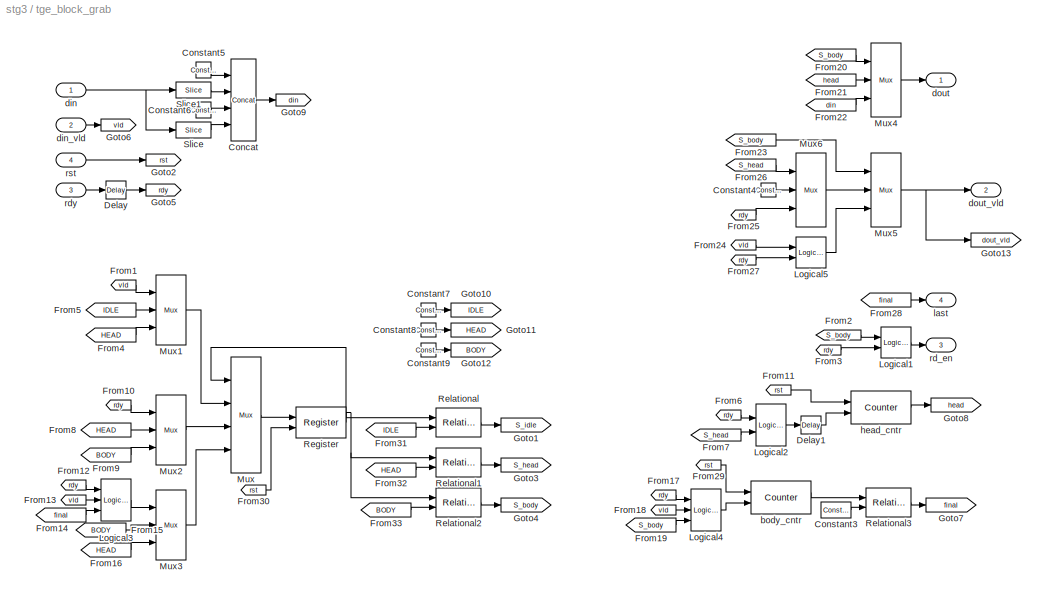
BLOCK [SubSystem] tge_block_grab
  FunctionWithSeparateData = off
  MinAlgLoopOccurrences = off
  Ports = [4, 4]
  RTWSystemCode = Auto
BLOCK [Reference] tge_block_grab/Concat  REF=xbsIndex_r4/Concat
  Ports = [4, 1]
  SourceBlock = xbsIndex_r4/Concat
  SourceType = Xilinx Bus Concatenator Block
  block_type = concat
  block_version = 10.1.3
  dbl_ovrd = off
  has_advanced_control = 0
  infoedit = Concatenates two or more inputs.  Output will be cast to an unsigned value with the binary point at zero.
  num_inputs = 4
  sg_icon_stat = 25,82,1,1,white,blue,0,ad63c393,right
  sggui_pos = 20,20,336,165
BLOCK [Reference] tge_block_grab/Constant3  REF=xbsIndex_r4/Constant
  Ports = [0, 1]
  SourceBlock = xbsIndex_r4/Constant
  SourceType = Xilinx Constant Block Block
  arith_type = Unsigned
  bin_pt = 0
  block_type = constant
  block_version = 10.1.3
  carry = CIN
  const = 2^9-1
  dbl_ovrd = off
  dsp48_infoedit = The use of this block for DSP48 instructions is deprecated.  Please use the Opmode block.
  equ = P=C
  explicit_period = off
  has_advanced_control = 0
  inp1 = P
  inp2 = PCIN>>17
  n_bits = 9
  opr = +
  opselect = C
  period = 1
  sg_icon_stat = 30,16,1,1,white,blue,0,56ab0ba2,right
  sggui_pos = 20,20,400,346
BLOCK [Reference] tge_block_grab/Constant4  REF=xbsIndex_r4/Constant
  Ports = [0, 1]
  SourceBlock = xbsIndex_r4/Constant
  SourceType = Xilinx Constant Block Block
  arith_type = Boolean
  bin_pt = 0
  block_type = constant
  block_version = 10.1.3
  carry = CIN
  const = 0
  dbl_ovrd = off
  dsp48_infoedit = The use of this block for DSP48 instructions is deprecated.  Please use the Opmode block.
  equ = P=C
  explicit_period = off
  has_advanced_control = 0
  inp1 = P
  inp2 = PCIN>>17
  n_bits = 2
  opr = +
  opselect = C
  period = 1
  sg_icon_stat = 15,14,1,1,white,blue,0,72d575a1,right
  sggui_pos = 20,20,400,346
BLOCK [Reference] tge_block_grab/Constant5  REF=xbsIndex_r4/Constant
  Ports = [0, 1]
  SourceBlock = xbsIndex_r4/Constant
  SourceType = Xilinx Constant Block Block
  arith_type = Unsigned
  bin_pt = 0
  block_type = constant
  block_version = 10.1.3
  carry = CIN
  const = 0
  dbl_ovrd = off
  dsp48_infoedit = The use of this block for DSP48 instructions is deprecated.  Please use the Opmode block.
  equ = P=C
  explicit_period = off
  has_advanced_control = 0
  inp1 = P
  inp2 = PCIN>>17
  n_bits = 14
  opr = +
  opselect = C
  period = 1
  sg_icon_stat = 15,16,1,1,white,blue,0,72d575a1,right
  sggui_pos = 20,20,400,346
BLOCK [Reference] tge_block_grab/Constant6  REF=xbsIndex_r4/Constant
  Ports = [0, 1]
  SourceBlock = xbsIndex_r4/Constant
  SourceType = Xilinx Constant Block Block
  arith_type = Unsigned
  bin_pt = 0
  block_type = constant
  block_version = 10.1.3
  carry = CIN
  const = 0
  dbl_ovrd = off
  dsp48_infoedit = The use of this block for DSP48 instructions is deprecated.  Please use the Opmode block.
  equ = P=C
  explicit_period = off
  has_advanced_control = 0
  inp1 = P
  inp2 = PCIN>>17
  n_bits = 14
  opr = +
  opselect = C
  period = 1
  sg_icon_stat = 15,16,1,1,white,blue,0,72d575a1,right
  sggui_pos = 20,20,400,346
BLOCK [Reference] tge_block_grab/Constant7  REF=xbsIndex_r4/Constant
  Ports = [0, 1]
  SourceBlock = xbsIndex_r4/Constant
  SourceType = Xilinx Constant Block Block
  arith_type = Unsigned
  bin_pt = 0
  block_type = constant
  block_version = 10.1.3
  carry = CIN
  const = 0
  dbl_ovrd = off
  dsp48_infoedit = The use of this block for DSP48 instructions is deprecated.  Please use the Opmode block.
  equ = P=C
  explicit_period = off
  has_advanced_control = 0
  inp1 = P
  inp2 = PCIN>>17
  n_bits = 2
  opr = +
  opselect = C
  period = 1
  sg_icon_stat = 15,14,1,1,white,blue,0,72d575a1,right
  sggui_pos = 20,20,400,346
BLOCK [Reference] tge_block_grab/Constant8  REF=xbsIndex_r4/Constant
  Ports = [0, 1]
  SourceBlock = xbsIndex_r4/Constant
  SourceType = Xilinx Constant Block Block
  arith_type = Unsigned
  bin_pt = 0
  block_type = constant
  block_version = 10.1.3
  carry = CIN
  const = 1
  dbl_ovrd = off
  dsp48_infoedit = The use of this block for DSP48 instructions is deprecated.  Please use the Opmode block.
  equ = P=C
  explicit_period = off
  has_advanced_control = 0
  inp1 = P
  inp2 = PCIN>>17
  n_bits = 2
  opr = +
  opselect = C
  period = 1
  sg_icon_stat = 15,14,1,1,white,blue,0,06094819,right
  sggui_pos = 20,20,400,346
BLOCK [Reference] tge_block_grab/Constant9  REF=xbsIndex_r4/Constant
  Ports = [0, 1]
  SourceBlock = xbsIndex_r4/Constant
  SourceType = Xilinx Constant Block Block
  arith_type = Unsigned
  bin_pt = 0
  block_type = constant
  block_version = 10.1.3
  carry = CIN
  const = 2
  dbl_ovrd = off
  dsp48_infoedit = The use of this block for DSP48 instructions is deprecated.  Please use the Opmode block.
  equ = P=C
  explicit_period = off
  has_advanced_control = 0
  inp1 = P
  inp2 = PCIN>>17
  n_bits = 2
  opr = +
  opselect = C
  period = 1
  sg_icon_stat = 15,14,1,1,white,blue,0,702e86fb,right
  sggui_pos = 20,20,400,346
BLOCK [Reference] tge_block_grab/Delay  REF=xbsIndex_r4/Delay
  Ports = [1, 1]
  SourceBlock = xbsIndex_r4/Delay
  SourceType = Xilinx Delay Block
  block_type = delay
  block_version = 10.1.3
  dbl_ovrd = off
  en = off
  has_advanced_control = 0
  infoedit = Hardware notes: A delay line is a chain, each link of which is an SRL16 followed by a flip-flop.
  latency = 1
  reg_retiming = off
  sg_icon_stat = 20,18,1,1,white,blue,0,fc531c0e,right
  sggui_pos = 20,20,348,255
  xl_area = [0,0,0,0,0,0,0]
  xl_use_area = off
BLOCK [Reference] tge_block_grab/Delay1  REF=xbsIndex_r4/Delay
  Ports = [1, 1]
  SourceBlock = xbsIndex_r4/Delay
  SourceType = Xilinx Delay Block
  block_type = delay
  block_version = 10.1.3
  dbl_ovrd = off
  en = off
  has_advanced_control = 0
  infoedit = Hardware notes: A delay line is a chain, each link of which is an SRL16 followed by a flip-flop.
  latency = 1
  reg_retiming = off
  sg_icon_stat = 20,18,1,1,white,blue,0,fc531c0e,right
  sggui_pos = 20,20,348,255
  xl_area = [0,0,0,0,0,0,0]
  xl_use_area = off
BLOCK [From] tge_block_grab/From1
  CloseFcn = tagdialog Close
  GotoTag = vld
BLOCK [From] tge_block_grab/From10
  CloseFcn = tagdialog Close
  GotoTag = rdy
BLOCK [From] tge_block_grab/From11
  CloseFcn = tagdialog Close
  GotoTag = rst
BLOCK [From] tge_block_grab/From12
  CloseFcn = tagdialog Close
  GotoTag = rdy
BLOCK [From] tge_block_grab/From13
  CloseFcn = tagdialog Close
  GotoTag = vld
BLOCK [From] tge_block_grab/From14
  CloseFcn = tagdialog Close
  GotoTag = final
BLOCK [From] tge_block_grab/From15
  CloseFcn = tagdialog Close
  GotoTag = BODY
BLOCK [From] tge_block_grab/From16
  CloseFcn = tagdialog Close
  GotoTag = HEAD
BLOCK [From] tge_block_grab/From17
  CloseFcn = tagdialog Close
  GotoTag = rdy
BLOCK [From] tge_block_grab/From18
  CloseFcn = tagdialog Close
  GotoTag = vld
BLOCK [From] tge_block_grab/From19
  CloseFcn = tagdialog Close
  GotoTag = S_body
BLOCK [From] tge_block_grab/From2
  CloseFcn = tagdialog Close
  GotoTag = S_body
BLOCK [From] tge_block_grab/From20
  CloseFcn = tagdialog Close
  GotoTag = S_body
BLOCK [From] tge_block_grab/From21
  CloseFcn = tagdialog Close
  GotoTag = head
BLOCK [From] tge_block_grab/From22
  CloseFcn = tagdialog Close
  GotoTag = din
BLOCK [From] tge_block_grab/From23
  CloseFcn = tagdialog Close
  GotoTag = S_body
BLOCK [From] tge_block_grab/From24
  CloseFcn = tagdialog Close
  GotoTag = vld
BLOCK [From] tge_block_grab/From25
  CloseFcn = tagdialog Close
  GotoTag = rdy
BLOCK [From] tge_block_grab/From26
  CloseFcn = tagdialog Close
  GotoTag = S_head
BLOCK [From] tge_block_grab/From27
  CloseFcn = tagdialog Close
  GotoTag = rdy
BLOCK [From] tge_block_grab/From28
  CloseFcn = tagdialog Close
  GotoTag = final
BLOCK [From] tge_block_grab/From29
  CloseFcn = tagdialog Close
  GotoTag = rst
BLOCK [From] tge_block_grab/From3
  CloseFcn = tagdialog Close
  GotoTag = rdy
BLOCK [From] tge_block_grab/From30
  CloseFcn = tagdialog Close
  GotoTag = rst
BLOCK [From] tge_block_grab/From31
  CloseFcn = tagdialog Close
  GotoTag = IDLE
BLOCK [From] tge_block_grab/From32
  CloseFcn = tagdialog Close
  GotoTag = HEAD
BLOCK [From] tge_block_grab/From33
  CloseFcn = tagdialog Close
  GotoTag = BODY
BLOCK [From] tge_block_grab/From4
  CloseFcn = tagdialog Close
  GotoTag = HEAD
BLOCK [From] tge_block_grab/From5
  CloseFcn = tagdialog Close
  GotoTag = IDLE
BLOCK [From] tge_block_grab/From6
  CloseFcn = tagdialog Close
  GotoTag = rdy
BLOCK [From] tge_block_grab/From7
  CloseFcn = tagdialog Close
  GotoTag = S_head
BLOCK [From] tge_block_grab/From8
  CloseFcn = tagdialog Close
  GotoTag = HEAD
BLOCK [From] tge_block_grab/From9
  CloseFcn = tagdialog Close
  GotoTag = BODY
BLOCK [Goto] tge_block_grab/Goto1
  GotoTag = S_idle
  TagVisibility = local
BLOCK [Goto] tge_block_grab/Goto10
  GotoTag = IDLE
  TagVisibility = local
BLOCK [Goto] tge_block_grab/Goto11
  GotoTag = HEAD
  TagVisibility = local
BLOCK [Goto] tge_block_grab/Goto12
  GotoTag = BODY
  TagVisibility = local
BLOCK [Goto] tge_block_grab/Goto13
  GotoTag = dout_vld
  TagVisibility = local
BLOCK [Goto] tge_block_grab/Goto2
  GotoTag = rst
  TagVisibility = local
BLOCK [Goto] tge_block_grab/Goto3
  GotoTag = S_head
  TagVisibility = local
BLOCK [Goto] tge_block_grab/Goto4
  GotoTag = S_body
  TagVisibility = local
BLOCK [Goto] tge_block_grab/Goto5
  GotoTag = rdy
  TagVisibility = local
BLOCK [Goto] tge_block_grab/Goto6
  GotoTag = vld
  TagVisibility = local
BLOCK [Goto] tge_block_grab/Goto7
  GotoTag = final
  TagVisibility = local
BLOCK [Goto] tge_block_grab/Goto8
  GotoTag = head
  TagVisibility = local
BLOCK [Goto] tge_block_grab/Goto9
  GotoTag = din
  TagVisibility = local
BLOCK [Reference] tge_block_grab/Logical1  REF=xbsIndex_r4/Logical
  Ports = [2, 1]
  SourceBlock = xbsIndex_r4/Logical
  SourceType = Xilinx Logical Block Block
  align_bp = on
  arith_type = Unsigned
  bin_pt = 0
  block_type = logical
  block_version = 10.1.3
  dbl_ovrd = off
  en = off
  has_advanced_control = 0
  inputs = 2
  latency = 0
  logical_function = AND
  n_bits = 16
  precision = Full
  sg_icon_stat = 30,31,1,1,white,blue,0,087b5522,right
  sggui_pos = 20,20,348,261
  xl_area = [0,0,0,0,0,0,0]
  xl_use_area = off
BLOCK [Reference] tge_block_grab/Logical2  REF=xbsIndex_r4/Logical
  Ports = [2, 1]
  SourceBlock = xbsIndex_r4/Logical
  SourceType = Xilinx Logical Block Block
  align_bp = on
  arith_type = Unsigned
  bin_pt = 0
  block_type = logical
  block_version = 10.1.3
  dbl_ovrd = off
  en = off
  has_advanced_control = 0
  inputs = 2
  latency = 0
  logical_function = AND
  n_bits = 16
  precision = Full
  sg_icon_stat = 30,42,1,1,white,blue,0,087b5522,right
  sggui_pos = 20,20,348,261
  xl_area = [0,0,0,0,0,0,0]
  xl_use_area = off
BLOCK [Reference] tge_block_grab/Logical3  REF=xbsIndex_r4/Logical
  Ports = [3, 1]
  SourceBlock = xbsIndex_r4/Logical
  SourceType = Xilinx Logical Block Block
  align_bp = on
  arith_type = Unsigned
  bin_pt = 0
  block_type = logical
  block_version = 10.1.3
  dbl_ovrd = off
  en = off
  has_advanced_control = 0
  inputs = 3
  latency = 0
  logical_function = AND
  n_bits = 16
  precision = Full
  sg_icon_stat = 30,42,1,1,white,blue,0,5c2bfaa2,right
  sggui_pos = 20,20,348,261
  xl_area = [0,0,0,0,0,0,0]
  xl_use_area = off
BLOCK [Reference] tge_block_grab/Logical4  REF=xbsIndex_r4/Logical
  Ports = [3, 1]
  SourceBlock = xbsIndex_r4/Logical
  SourceType = Xilinx Logical Block Block
  align_bp = on
  arith_type = Unsigned
  bin_pt = 0
  block_type = logical
  block_version = 10.1.3
  dbl_ovrd = off
  en = off
  has_advanced_control = 0
  inputs = 3
  latency = 0
  logical_function = AND
  n_bits = 16
  precision = Full
  sg_icon_stat = 30,42,1,1,white,blue,0,5c2bfaa2,right
  sggui_pos = 20,20,348,261
  xl_area = [0,0,0,0,0,0,0]
  xl_use_area = off
BLOCK [Reference] tge_block_grab/Logical5  REF=xbsIndex_r4/Logical
  Ports = [2, 1]
  SourceBlock = xbsIndex_r4/Logical
  SourceType = Xilinx Logical Block Block
  align_bp = on
  arith_type = Unsigned
  bin_pt = 0
  block_type = logical
  block_version = 10.1.3
  dbl_ovrd = off
  en = off
  has_advanced_control = 0
  inputs = 2
  latency = 0
  logical_function = AND
  n_bits = 16
  precision = Full
  sg_icon_stat = 30,31,1,1,white,blue,0,087b5522,right
  sggui_pos = 20,20,348,261
  xl_area = [0,0,0,0,0,0,0]
  xl_use_area = off
BLOCK [Reference] tge_block_grab/Mux  REF=xbsIndex_r4/Mux
  Ports = [4, 1]
  SourceBlock = xbsIndex_r4/Mux
  SourceType = Xilinx Bus Multiplexer Block
  arith_type = Unsigned
  bin_pt = 14
  block_type = mux
  block_version = 10.1.3
  dbl_ovrd = off
  en = off
  has_advanced_control = 0
  inputs = 3
  latency = 0
  n_bits = 16
  overflow = Wrap
  precision = Full
  quantization = Truncate
  sg_icon_stat = 30,116,1,1,white,blue,3,f9706ab4,right
  sg_mask_display = fprintf('','COMMENT: begin icon graphics');\npatch([0 45 45 0 ],[0 14.8571 89.1429 104 ],[0.77 0.82 0.91]);\npatch([10 3 14 3 10 22 25 28 41 31 21 14 25 14 21 31 41 28 25 22 10 ],[34 41 52 63 70 70 67 70 70 60 70 63 52 41 34 44 34 34 37 34 34 ],[0.98 0.96 0.92]);\nplot([0 45 45 0 0 ],[0 14.8571 89.1429 104 0 ]);\nfprintf('','COMMENT: end icon graphics');\nfprintf('','COMMENT: begin icon text');\nc...<+262ch>
  sggui_pos = 20,20,348,303
  xl_area = [0,0,0,0,0,0,0]
  xl_use_area = off
BLOCK [Reference] tge_block_grab/Mux1  REF=xbsIndex_r4/Mux
  Ports = [3, 1]
  SourceBlock = xbsIndex_r4/Mux
  SourceType = Xilinx Bus Multiplexer Block
  arith_type = Unsigned
  bin_pt = 14
  block_type = mux
  block_version = 10.1.3
  dbl_ovrd = off
  en = off
  has_advanced_control = 0
  inputs = 2
  latency = 0
  n_bits = 16
  overflow = Wrap
  precision = Full
  quantization = Truncate
  sg_icon_stat = 30,70,1,1,white,blue,3,613f58e1,right
  sggui_pos = 20,20,348,303
  xl_area = [0,0,0,0,0,0,0]
  xl_use_area = off
BLOCK [Reference] tge_block_grab/Mux2  REF=xbsIndex_r4/Mux
  Ports = [3, 1]
  SourceBlock = xbsIndex_r4/Mux
  SourceType = Xilinx Bus Multiplexer Block
  arith_type = Unsigned
  bin_pt = 14
  block_type = mux
  block_version = 10.1.3
  dbl_ovrd = off
  en = off
  has_advanced_control = 0
  inputs = 2
  latency = 0
  n_bits = 16
  overflow = Wrap
  precision = Full
  quantization = Truncate
  sg_icon_stat = 30,70,1,1,white,blue,3,613f58e1,right
  sggui_pos = 20,20,348,303
  xl_area = [0,0,0,0,0,0,0]
  xl_use_area = off
BLOCK [Reference] tge_block_grab/Mux3  REF=xbsIndex_r4/Mux
  Ports = [3, 1]
  SourceBlock = xbsIndex_r4/Mux
  SourceType = Xilinx Bus Multiplexer Block
  arith_type = Unsigned
  bin_pt = 14
  block_type = mux
  block_version = 10.1.3
  dbl_ovrd = off
  en = off
  has_advanced_control = 0
  inputs = 2
  latency = 0
  n_bits = 16
  overflow = Wrap
  precision = Full
  quantization = Truncate
  sg_icon_stat = 30,70,1,1,white,blue,3,613f58e1,right
  sggui_pos = 20,20,348,303
  xl_area = [0,0,0,0,0,0,0]
  xl_use_area = off
BLOCK [Reference] tge_block_grab/Mux4  REF=xbsIndex_r4/Mux
  Ports = [3, 1]
  SourceBlock = xbsIndex_r4/Mux
  SourceType = Xilinx Bus Multiplexer Block
  arith_type = Unsigned
  bin_pt = 14
  block_type = mux
  block_version = 10.1.3
  dbl_ovrd = off
  en = off
  has_advanced_control = 0
  inputs = 2
  latency = 0
  n_bits = 16
  overflow = Wrap
  precision = Full
  quantization = Truncate
  sg_icon_stat = 30,74,1,1,white,blue,3,613f58e1,right
  sggui_pos = 20,20,348,303
  xl_area = [0,0,0,0,0,0,0]
  xl_use_area = off
BLOCK [Reference] tge_block_grab/Mux5  REF=xbsIndex_r4/Mux
  Ports = [3, 1]
  SourceBlock = xbsIndex_r4/Mux
  SourceType = Xilinx Bus Multiplexer Block
  arith_type = Unsigned
  bin_pt = 14
  block_type = mux
  block_version = 10.1.3
  dbl_ovrd = off
  en = off
  has_advanced_control = 0
  inputs = 2
  latency = 0
  n_bits = 16
  overflow = Wrap
  precision = Full
  quantization = Truncate
  sg_icon_stat = 30,74,1,1,white,blue,3,613f58e1,right
  sggui_pos = 20,20,348,303
  xl_area = [0,0,0,0,0,0,0]
  xl_use_area = off
BLOCK [Reference] tge_block_grab/Mux6  REF=xbsIndex_r4/Mux
  Ports = [3, 1]
  SourceBlock = xbsIndex_r4/Mux
  SourceType = Xilinx Bus Multiplexer Block
  arith_type = Unsigned
  bin_pt = 14
  block_type = mux
  block_version = 10.1.3
  dbl_ovrd = off
  en = off
  has_advanced_control = 0
  inputs = 2
  latency = 0
  n_bits = 16
  overflow = Wrap
  precision = Full
  quantization = Truncate
  sg_icon_stat = 30,74,1,1,white,blue,3,613f58e1,right
  sggui_pos = 20,20,348,303
  xl_area = [0,0,0,0,0,0,0]
  xl_use_area = off
BLOCK [Reference] tge_block_grab/Register  REF=xbsIndex_r4/Register
  Ports = [2, 1]
  SourceBlock = xbsIndex_r4/Register
  SourceType = Xilinx Register Block
  block_type = register
  block_version = 10.1.3
  dbl_ovrd = off
  en = off
  has_advanced_control = 0
  init = 0
  rst = on
  sg_icon_stat = 50,31,1,1,white,blue,0,b6caf0d3,right
  sg_mask_display = fprintf('','COMMENT: begin icon graphics');\npatch([0 50 50 0 ],[0 0 31 31 ],[0.77 0.82 0.91]);\npatch([17 12 19 12 17 25 27 29 38 31 24 19 26 19 24 31 38 29 27 25 17 ],[3 8 15 22 27 27 25 27 27 20 27 22 15 8 3 10 3 3 5 3 3 ],[0.98 0.96 0.92]);\nplot([0 50 50 0 0 ],[0 0 31 31 0 ]);\nfprintf('','COMMENT: end icon graphics');\nfprintf('','COMMENT: begin icon text');\ncolor('black');port_label('input...<+192ch>
  sggui_pos = 20,20,348,193
  xl_area = [0,0,0,0,0,0,0]
  xl_use_area = off
BLOCK [Reference] tge_block_grab/Relational  REF=xbsIndex_r4/Relational
  Ports = [2, 1]
  SourceBlock = xbsIndex_r4/Relational
  SourceType = Xilinx Arithmetic Relational Operator Block
  block_type = relational
  block_version = 10.1.3
  dbl_ovrd = off
  en = off
  has_advanced_control = 0
  latency = 0
  mode = a=b
  sg_icon_stat = 45,29,1,1,white,blue,0,1b68ef8e,right
  sggui_pos = 20,20,348,193
  xl_area = [0,0,0,0,0,0,0]
  xl_use_area = off
BLOCK [Reference] tge_block_grab/Relational1  REF=xbsIndex_r4/Relational
  Ports = [2, 1]
  SourceBlock = xbsIndex_r4/Relational
  SourceType = Xilinx Arithmetic Relational Operator Block
  block_type = relational
  block_version = 10.1.3
  dbl_ovrd = off
  en = off
  has_advanced_control = 0
  latency = 0
  mode = a=b
  sg_icon_stat = 45,29,1,1,white,blue,0,1b68ef8e,right
  sggui_pos = 20,20,348,193
  xl_area = [0,0,0,0,0,0,0]
  xl_use_area = off
BLOCK [Reference] tge_block_grab/Relational2  REF=xbsIndex_r4/Relational
  Ports = [2, 1]
  SourceBlock = xbsIndex_r4/Relational
  SourceType = Xilinx Arithmetic Relational Operator Block
  block_type = relational
  block_version = 10.1.3
  dbl_ovrd = off
  en = off
  has_advanced_control = 0
  latency = 0
  mode = a=b
  sg_icon_stat = 45,29,1,1,white,blue,0,1b68ef8e,right
  sggui_pos = 20,20,348,193
  xl_area = [0,0,0,0,0,0,0]
  xl_use_area = off
BLOCK [Reference] tge_block_grab/Relational3  REF=xbsIndex_r4/Relational
  Ports = [2, 1]
  SourceBlock = xbsIndex_r4/Relational
  SourceType = Xilinx Arithmetic Relational Operator Block
  block_type = relational
  block_version = 10.1.3
  dbl_ovrd = off
  en = off
  has_advanced_control = 0
  latency = 0
  mode = a=b
  sg_icon_stat = 45,29,1,1,white,blue,0,1b68ef8e,right
  sggui_pos = 20,20,348,193
  xl_area = [0,0,0,0,0,0,0]
  xl_use_area = off
BLOCK [Reference] tge_block_grab/Slice  REF=xbsIndex_r4/Slice
  Ports = [1, 1]
  SourceBlock = xbsIndex_r4/Slice
  SourceType = Xilinx Bit Slice Extractor Block
  base0 = LSB of Input
  base1 = LSB of Input
  bit0 = 0
  bit1 = 0
  block_type = slice
  block_version = 10.1.3
  boolean_output = off
  dbl_ovrd = off
  has_advanced_control = 0
  mode = Lower Bit Location + Width
  nbits = 18
  sg_icon_stat = 35,16,1,1,white,blue,0,b1026674,right
  sggui_pos = 20,20,449,376
BLOCK [Reference] tge_block_grab/Slice1  REF=xbsIndex_r4/Slice
  Ports = [1, 1]
  SourceBlock = xbsIndex_r4/Slice
  SourceType = Xilinx Bit Slice Extractor Block
  base0 = LSB of Input
  base1 = LSB of Input
  bit0 = 18
  bit1 = 0
  block_type = slice
  block_version = 10.1.3
  boolean_output = off
  dbl_ovrd = off
  has_advanced_control = 0
  mode = Lower Bit Location + Width
  nbits = 18
  sg_icon_stat = 35,16,1,1,white,blue,0,b1026674,right
  sggui_pos = 20,20,449,376
BLOCK [Reference] tge_block_grab/body_cntr  REF=xbsIndex_r4/Counter
  Ports = [2, 1]
  SourceBlock = xbsIndex_r4/Counter
  SourceType = Xilinx Counter Block
  arith_type = Unsigned
  bin_pt = 0
  block_type = counter
  block_version = 10.1.3
  cnt_by_val = 1
  cnt_to = Inf
  cnt_type = Free Running
  dbl_ovrd = off
  en = on
  explicit_period = on
  has_advanced_control = 0
  implementation = Fabric
  infoedit = Hardware notes: Free running counters are the least expensive in hardware.  A count limited counter is implemented by combining a counter with a comparator.
  load_pin = off
  n_bits = 9
  operation = Up
  period = 1
  rst = on
  sg_icon_stat = 60,33,1,1,white,blue,0,46c73e85,right
  sg_mask_display = fprintf('','COMMENT: begin icon graphics');\npatch([0 60 60 0 ],[0 0 33 33 ],[0.77 0.82 0.91]);\npatch([21 16 24 16 21 30 32 34 43 36 29 24 32 24 29 36 43 34 32 30 21 ],[4 9 17 25 30 30 28 30 30 23 30 25 17 9 4 11 4 4 6 4 4 ],[0.98 0.96 0.92]);\nplot([0 60 60 0 0 ],[0 0 33 33 0 ]);\nfprintf('','COMMENT: end icon graphics');\nfprintf('','COMMENT: begin icon text');\ncolor('black');port_label('input...<+142ch>
  sggui_pos = 20,20,348,619
  start_count = 0
  use_behavioral_HDL = off
  use_rpm = off
  xl_area = [0,0,0,0,0,0,0]
  xl_use_area = off
BLOCK [Inport] tge_block_grab/din
  IconDisplay = Port number
BLOCK [Inport] tge_block_grab/din_vld
  IconDisplay = Port number
  Port = 2
BLOCK [Outport] tge_block_grab/dout
  IconDisplay = Port number
BLOCK [Outport] tge_block_grab/dout_vld
  IconDisplay = Port number
  Port = 2
BLOCK [Reference] tge_block_grab/head_cntr  REF=xbsIndex_r4/Counter
  Ports = [2, 1]
  SourceBlock = xbsIndex_r4/Counter
  SourceType = Xilinx Counter Block
  arith_type = Unsigned
  bin_pt = 0
  block_type = counter
  block_version = 10.1.3
  cnt_by_val = 1
  cnt_to = Inf
  cnt_type = Free Running
  dbl_ovrd = off
  en = on
  explicit_period = on
  has_advanced_control = 0
  implementation = Fabric
  infoedit = Hardware notes: Free running counters are the least expensive in hardware.  A count limited counter is implemented by combining a counter with a comparator.
  load_pin = off
  n_bits = 64
  operation = Up
  period = 1
  rst = on
  sg_icon_stat = 60,33,1,1,white,blue,0,46c73e85,right
  sg_mask_display = fprintf('','COMMENT: begin icon graphics');\npatch([0 60 60 0 ],[0 0 33 33 ],[0.77 0.82 0.91]);\npatch([21 16 24 16 21 30 32 34 43 36 29 24 32 24 29 36 43 34 32 30 21 ],[4 9 17 25 30 30 28 30 30 23 30 25 17 9 4 11 4 4 6 4 4 ],[0.98 0.96 0.92]);\nplot([0 60 60 0 0 ],[0 0 33 33 0 ]);\nfprintf('','COMMENT: end icon graphics');\nfprintf('','COMMENT: begin icon text');\ncolor('black');port_label('input...<+142ch>
  sggui_pos = 20,20,348,619
  start_count = 0
  use_behavioral_HDL = off
  use_rpm = off
  xl_area = [0,0,0,0,0,0,0]
  xl_use_area = off
BLOCK [Outport] tge_block_grab/last
  IconDisplay = Port number
  Port = 4
BLOCK [Outport] tge_block_grab/rd_en
  IconDisplay = Port number
  Port = 3
BLOCK [Inport] tge_block_grab/rdy
  IconDisplay = Port number
  Port = 3
BLOCK [Inport] tge_block_grab/rst
  IconDisplay = Port number
  Port = 4
BLOCK [Reference] tgetx_led  REF=xps_library/gpio  (lib defined in mdl_00b5cec29cd0, mdl_02ab6ecaa3d1, +5 more)
  FunctionWithSeparateData = off
  Ports = [1, 1]
  RTWMemSecDataConstants = Inherit from model
  RTWMemSecDataInternal = Inherit from model
  RTWMemSecDataParameters = Inherit from model
  RTWMemSecFuncExecute = Inherit from model
  RTWMemSecFuncInitTerm = Inherit from model
  ShowPortLabels = FromPortIcon
  SourceBlock = xps_library/gpio
  SourceType = gpio
  SystemSampleTime = -1
  Tag = xps:gpio
  arith_type = Boolean
  bin_pt = 0
  bit_index = 1
  bitwidth = 1
  io_dir = out
  io_group = ROACH:led
  reg_clk_phase = 0
  reg_iob = on
  sample_period = 1
  termination = None
  use_ddr = off
  use_single_ended = off
BLOCK [Reference] tgeup_led  REF=xps_library/gpio  (lib defined in mdl_00b5cec29cd0, mdl_02ab6ecaa3d1, +5 more)
  FunctionWithSeparateData = off
  Ports = [1, 1]
  RTWMemSecDataConstants = Inherit from model
  RTWMemSecDataInternal = Inherit from model
  RTWMemSecDataParameters = Inherit from model
  RTWMemSecFuncExecute = Inherit from model
  RTWMemSecFuncInitTerm = Inherit from model
  ShowPortLabels = FromPortIcon
  SourceBlock = xps_library/gpio
  SourceType = gpio
  SystemSampleTime = -1
  Tag = xps:gpio
  arith_type = Boolean
  bin_pt = 0
  bit_index = 3
  bitwidth = 1
  io_dir = out
  io_group = ROACH:led
  reg_clk_phase = 0
  reg_iob = on
  sample_period = 1
  termination = None
  use_ddr = off
  use_single_ended = off
BLOCK [SubSystem] tvg2
  FunctionWithSeparateData = off
  MaskCallbackString = |||
  MaskEnableString = on,on,on,on
  MaskIconFrame = on
  MaskIconOpaque = on
  MaskIconRotate = none
  MaskIconUnits = autoscale
  MaskPromptString = fftsize (2^n)|nochan (2^n)|vaccwidth|dumps (2^n)
  MaskStyleString = edit,edit,edit,edit
  MaskTabNameString = ,,,
  MaskToolTipString = on,on,on,on
  MaskTunableValueString = on,on,on,on
  MaskValueString = 10|10|18|9
  MaskVarAliasString = ,,,
  MaskVariables = fftsize=@1;nochan=@2;vaccwidth=@3;dumps=@4;
  MaskVisibilityString = on,on,on,on
  MinAlgLoopOccurrences = off
  Ports = [1, 3]
  RTWSystemCode = Auto
BLOCK [Reference] tvg2/AddSub1  REF=xbsIndex_r4/AddSub
  Ports = [2, 1]
  SourceBlock = xbsIndex_r4/AddSub
  SourceType = Xilinx Adder/Subtractor Block
  arith_type = Unsigned
  bin_pt = 14
  block_type = addsub
  block_version = 10.1.3
  dbl_ovrd = off
  en = off
  has_advanced_control = 0
  hw_selection = Fabric
  latency = 2
  mode = Subtraction
  n_bits = 16
  overflow = Wrap
  pipelined = off
  precision = Full
  quantization = Truncate
  sg_icon_stat = 55,31,1,1,white,blue,0,2d46ec54,right
  sggui_pos = 20,20,348,344
  use_behavioral_HDL = off
  use_carryin = off
  use_carryout = off
  use_rpm = on
  xl_area = [0,0,0,0,0,0,0]
  xl_use_area = off
BLOCK [Constant] tvg2/Constant
  OutDataType = sfix(16)
  OutScaling = 2^0
  Value = 3200
BLOCK [Reference] tvg2/Constant1  REF=xbsIndex_r4/Constant
  Ports = [0, 1]
  SourceBlock = xbsIndex_r4/Constant
  SourceType = Xilinx Constant Block Block
  arith_type = Unsigned
  bin_pt = 0
  block_type = constant
  block_version = 10.1.3
  carry = CIN
  const = 128
  dbl_ovrd = off
  dsp48_infoedit = The use of this block for DSP48 instructions is deprecated.  Please use the Opmode block.
  equ = P=C
  explicit_period = on
  has_advanced_control = 0
  inp1 = P
  inp2 = PCIN>>17
  n_bits = 7
  opr = +
  opselect = C
  period = 1
  sg_icon_stat = 30,12,1,1,white,blue,0,4d205f9e,right
  sggui_pos = 20,20,400,346
BLOCK [Reference] tvg2/Constant2  REF=xbsIndex_r4/Constant
  Ports = [0, 1]
  SourceBlock = xbsIndex_r4/Constant
  SourceType = Xilinx Constant Block Block
  arith_type = Unsigned
  bin_pt = 0
  block_type = constant
  block_version = 10.1.3
  carry = CIN
  const = 128
  dbl_ovrd = off
  dsp48_infoedit = The use of this block for DSP48 instructions is deprecated.  Please use the Opmode block.
  equ = P=C
  explicit_period = on
  has_advanced_control = 0
  inp1 = P
  inp2 = PCIN>>17
  n_bits = 7
  opr = +
  opselect = C
  period = 1
  sg_icon_stat = 30,12,1,1,white,blue,0,4d205f9e,right
  sggui_pos = 20,20,400,346
BLOCK [Reference] tvg2/Constant3  REF=xbsIndex_r4/Constant
  Ports = [0, 1]
  SourceBlock = xbsIndex_r4/Constant
  SourceType = Xilinx Constant Block Block
  arith_type = Unsigned
  bin_pt = 0
  block_type = constant
  block_version = 10.1.3
  carry = CIN
  const = 63
  dbl_ovrd = off
  dsp48_infoedit = The use of this block for DSP48 instructions is deprecated.  Please use the Opmode block.
  equ = P=C
  explicit_period = on
  has_advanced_control = 0
  inp1 = P
  inp2 = PCIN>>17
  n_bits = 6
  opr = +
  opselect = C
  period = 1
  sg_icon_stat = 30,12,1,1,white,blue,0,04651f85,right
  sggui_pos = 20,20,400,346
BLOCK [Reference] tvg2/Convert  REF=xbsIndex_r4/Convert
  Ports = [1, 1]
  SourceBlock = xbsIndex_r4/Convert
  SourceType = Xilinx Type Converter Block
  arith_type = Unsigned
  bin_pt = 0
  block_type = convert
  block_version = 10.1.3
  dbl_ovrd = off
  has_advanced_control = 0
  infoedit = Hardware notes: rounding and saturating require hardware resources; truncating and wrapping do not.
  latency = 0
  n_bits = vaccwidth
  overflow = Wrap
  pipeline = off
  quantization = Truncate
  sg_icon_stat = 25,12,1,1,white,blue,0,74901e60,right
  sg_mask_display = fprintf('','COMMENT: begin icon graphics');\npatch([0 45 45 0 ],[0 0 30 30 ],[0.77 0.82 0.91]);\npatch([15 10 17 10 15 23 25 27 35 28 22 17 23 17 22 28 35 27 25 23 15 ],[3 8 15 22 27 27 25 27 27 20 26 21 15 9 4 10 3 3 5 3 3 ],[0.98 0.96 0.92]);\nplot([0 45 45 0 0 ],[0 0 30 30 0 ]);\nfprintf('','COMMENT: end icon graphics');\nfprintf('','COMMENT: begin icon text');\ncolor('black');port_label('outpu...<+54ch>
  sggui_pos = 755,250,461,334
  xl_area = [0,0,0,0,0,0,0]
  xl_use_area = off
BLOCK [Reference] tvg2/Convert1  REF=xbsIndex_r4/Convert
  Ports = [1, 1]
  SourceBlock = xbsIndex_r4/Convert
  SourceType = Xilinx Type Converter Block
  arith_type = Unsigned
  bin_pt = 0
  block_type = convert
  block_version = 10.1.3
  dbl_ovrd = off
  has_advanced_control = 0
  infoedit = Hardware notes: rounding and saturating require hardware resources; truncating and wrapping do not.
  latency = 0
  n_bits = vaccwidth
  overflow = Wrap
  pipeline = off
  quantization = Truncate
  sg_icon_stat = 25,12,1,1,white,blue,0,74901e60,right
  sg_mask_display = fprintf('','COMMENT: begin icon graphics');\npatch([0 45 45 0 ],[0 0 30 30 ],[0.77 0.82 0.91]);\npatch([15 10 17 10 15 23 25 27 35 28 22 17 23 17 22 28 35 27 25 23 15 ],[3 8 15 22 27 27 25 27 27 20 26 21 15 9 4 10 3 3 5 3 3 ],[0.98 0.96 0.92]);\nplot([0 45 45 0 0 ],[0 0 30 30 0 ]);\nfprintf('','COMMENT: end icon graphics');\nfprintf('','COMMENT: begin icon text');\ncolor('black');port_label('outpu...<+54ch>
  sggui_pos = 755,250,461,334
  xl_area = [0,0,0,0,0,0,0]
  xl_use_area = off
BLOCK [Reference] tvg2/Delay1  REF=xbsIndex_r4/Delay
  Ports = [1, 1]
  SourceBlock = xbsIndex_r4/Delay
  SourceType = Xilinx Delay Block
  block_type = delay
  block_version = 10.1.3
  dbl_ovrd = off
  en = off
  has_advanced_control = 0
  infoedit = Hardware notes: A delay line is a chain, each link of which is an SRL16 followed by a flip-flop.
  latency = 1
  reg_retiming = off
  sg_icon_stat = 30,26,1,1,white,blue,0,fc531c0e,right
  sggui_pos = -1,-1,-1,-1
  xl_area = [0,0,0,0,0,0,0]
  xl_use_area = off
BLOCK [Reference] tvg2/Delay2  REF=xbsIndex_r4/Delay
  Ports = [1, 1]
  SourceBlock = xbsIndex_r4/Delay
  SourceType = Xilinx Delay Block
  block_type = delay
  block_version = 10.1.3
  dbl_ovrd = off
  en = off
  has_advanced_control = 0
  infoedit = Hardware notes: A delay line is a chain, each link of which is an SRL16 followed by a flip-flop.
  latency = 1
  reg_retiming = off
  sg_icon_stat = 30,26,1,1,white,blue,0,fc531c0e,right
  sggui_pos = -1,-1,-1,-1
  xl_area = [0,0,0,0,0,0,0]
  xl_use_area = off
BLOCK [Reference] tvg2/Delay3  REF=xbsIndex_r4/Delay
  Ports = [1, 1]
  SourceBlock = xbsIndex_r4/Delay
  SourceType = Xilinx Delay Block
  block_type = delay
  block_version = 10.1.3
  dbl_ovrd = off
  en = off
  has_advanced_control = 0
  infoedit = Hardware notes: A delay line is a chain, each link of which is an SRL16 followed by a flip-flop.
  latency = 1
  reg_retiming = off
  sg_icon_stat = 30,26,1,1,white,blue,0,fc531c0e,right
  sggui_pos = -1,-1,-1,-1
  xl_area = [0,0,0,0,0,0,0]
  xl_use_area = off
BLOCK [Reference] tvg2/Delay4  REF=xbsIndex_r4/Delay
  Ports = [1, 1]
  SourceBlock = xbsIndex_r4/Delay
  SourceType = Xilinx Delay Block
  block_type = delay
  block_version = 10.1.3
  dbl_ovrd = off
  en = off
  has_advanced_control = 0
  infoedit = Hardware notes: A delay line is a chain, each link of which is an SRL16 followed by a flip-flop.
  latency = 2
  reg_retiming = off
  sg_icon_stat = 30,26,1,1,white,blue,0,0a7a6cf1,right
  sggui_pos = 20,20,348,255
  xl_area = [0,0,0,0,0,0,0]
  xl_use_area = off
BLOCK [Reference] tvg2/Delay5  REF=xbsIndex_r4/Delay
  Ports = [1, 1]
  SourceBlock = xbsIndex_r4/Delay
  SourceType = Xilinx Delay Block
  block_type = delay
  block_version = 10.1.3
  dbl_ovrd = off
  en = off
  has_advanced_control = 0
  infoedit = Hardware notes: A delay line is a chain, each link of which is an SRL16 followed by a flip-flop.
  latency = 2
  reg_retiming = off
  sg_icon_stat = 30,26,1,1,white,blue,0,0a7a6cf1,right
  sggui_pos = 20,20,348,255
  xl_area = [0,0,0,0,0,0,0]
  xl_use_area = off
BLOCK [Reference] tvg2/Inverter  REF=xbsIndex_r4/Inverter
  Ports = [1, 1]
  SourceBlock = xbsIndex_r4/Inverter
  SourceType = Xilinx Inverter Block
  block_type = inv
  block_version = 10.1.3
  dbl_ovrd = off
  en = off
  has_advanced_control = 0
  infoedit = Bitwise logical negation (one's complement) operator.
  latency = 0
  sg_icon_stat = 25,16,1,1,white,blue,0,1ab4a85f,right
  sggui_pos = -1,-1,-1,-1
  xl_area = [0,0,0,0,0,0,0]
  xl_use_area = off
BLOCK [Reference] tvg2/Logical  REF=xbsIndex_r4/Logical
  Ports = [2, 1]
  SourceBlock = xbsIndex_r4/Logical
  SourceType = Xilinx Logical Block Block
  align_bp = on
  arith_type = Unsigned
  bin_pt = 0
  block_type = logical
  block_version = 10.1.3
  dbl_ovrd = off
  en = off
  has_advanced_control = 0
  inputs = 2
  latency = 1
  logical_function = AND
  n_bits = 16
  precision = Full
  sg_icon_stat = 30,33,1,1,white,blue,0,d60ce02c,right
  sggui_pos = 20,20,348,261
  xl_area = [0,0,0,0,0,0,0]
  xl_use_area = off
BLOCK [Reference] tvg2/Logical1  REF=xbsIndex_r4/Logical
  Ports = [2, 1]
  SourceBlock = xbsIndex_r4/Logical
  SourceType = Xilinx Logical Block Block
  align_bp = on
  arith_type = Unsigned
  bin_pt = 0
  block_type = logical
  block_version = 10.1.3
  dbl_ovrd = off
  en = off
  has_advanced_control = 0
  inputs = 2
  latency = 1
  logical_function = AND
  n_bits = 16
  precision = Full
  sg_icon_stat = 30,33,1,1,white,blue,0,d60ce02c,right
  sggui_pos = 20,20,348,261
  xl_area = [0,0,0,0,0,0,0]
  xl_use_area = off
BLOCK [Reference] tvg2/Logical2  REF=xbsIndex_r4/Logical
  Ports = [2, 1]
  SourceBlock = xbsIndex_r4/Logical
  SourceType = Xilinx Logical Block Block
  align_bp = on
  arith_type = Unsigned
  bin_pt = 0
  block_type = logical
  block_version = 10.1.3
  dbl_ovrd = off
  en = off
  has_advanced_control = 0
  inputs = 2
  latency = 0
  logical_function = AND
  n_bits = 16
  precision = Full
  sg_icon_stat = 30,33,1,1,white,blue,0,087b5522,right
  sggui_pos = 20,20,348,261
  xl_area = [0,0,0,0,0,0,0]
  xl_use_area = off
BLOCK [Reference] tvg2/Mux  REF=xbsIndex_r4/Mux
  Ports = [3, 1]
  SourceBlock = xbsIndex_r4/Mux
  SourceType = Xilinx Bus Multiplexer Block
  arith_type = Unsigned
  bin_pt = 14
  block_type = mux
  block_version = 10.1.3
  dbl_ovrd = off
  en = off
  has_advanced_control = 0
  inputs = 2
  latency = 0
  n_bits = 16
  overflow = Wrap
  precision = Full
  quantization = Truncate
  sg_icon_stat = 25,94,1,1,white,blue,3,613f58e1,right
  sggui_pos = 20,20,348,303
  xl_area = [0,0,0,0,0,0,0]
  xl_use_area = off
BLOCK [Reference] tvg2/Mux1  REF=xbsIndex_r4/Mux
  Ports = [3, 1]
  SourceBlock = xbsIndex_r4/Mux
  SourceType = Xilinx Bus Multiplexer Block
  arith_type = Unsigned
  bin_pt = 14
  block_type = mux
  block_version = 10.1.3
  dbl_ovrd = off
  en = off
  has_advanced_control = 0
  inputs = 2
  latency = 0
  n_bits = 16
  overflow = Wrap
  precision = Full
  quantization = Truncate
  sg_icon_stat = 25,94,1,1,white,blue,3,613f58e1,right
  sggui_pos = 20,20,348,303
  xl_area = [0,0,0,0,0,0,0]
  xl_use_area = off
BLOCK [Outport] tvg2/Out1
  IconDisplay = Port number
  Port = 2
BLOCK [Outport] tvg2/Out2
  IconDisplay = Port number
  Port = 3
BLOCK [Reference] tvg2/Relational  REF=xbsIndex_r4/Relational
  Ports = [2, 1]
  SourceBlock = xbsIndex_r4/Relational
  SourceType = Xilinx Arithmetic Relational Operator Block
  block_type = relational
  block_version = 10.1.3
  dbl_ovrd = off
  en = off
  has_advanced_control = 0
  latency = 1
  mode = a=b
  sg_icon_stat = 45,27,1,1,white,blue,0,1cf02e61,right
  sggui_pos = 20,20,348,193
  xl_area = [0,0,0,0,0,0,0]
  xl_use_area = off
BLOCK [Reference] tvg2/Relational1  REF=xbsIndex_r4/Relational
  Ports = [2, 1]
  SourceBlock = xbsIndex_r4/Relational
  SourceType = Xilinx Arithmetic Relational Operator Block
  block_type = relational
  block_version = 10.1.3
  dbl_ovrd = off
  en = off
  has_advanced_control = 0
  latency = 1
  mode = a=b
  sg_icon_stat = 45,27,1,1,white,blue,0,1cf02e61,right
  sggui_pos = 20,20,348,193
  xl_area = [0,0,0,0,0,0,0]
  xl_use_area = off
BLOCK [Reference] tvg2/Slice1  REF=xbsIndex_r4/Slice
  Ports = [1, 1]
  SourceBlock = xbsIndex_r4/Slice
  SourceType = Xilinx Bit Slice Extractor Block
  base0 = LSB of Input
  base1 = LSB of Input
  bit0 = 4
  bit1 = 0
  block_type = slice
  block_version = 10.1.3
  boolean_output = off
  dbl_ovrd = off
  has_advanced_control = 0
  mode = Lower Bit Location + Width
  nbits = fftsize-4
  sg_icon_stat = 25,14,1,1,white,blue,0,b1026674,right
  sggui_pos = 20,20,449,376
BLOCK [Reference] tvg2/Slice2  REF=xbsIndex_r4/Slice
  Ports = [1, 1]
  SourceBlock = xbsIndex_r4/Slice
  SourceType = Xilinx Bit Slice Extractor Block
  base0 = LSB of Input
  base1 = LSB of Input
  bit0 = 10
  bit1 = 0
  block_type = slice
  block_version = 10.1.3
  boolean_output = on
  dbl_ovrd = off
  has_advanced_control = 0
  mode = Lower Bit Location + Width
  nbits = 1
  sg_icon_stat = 25,14,1,1,white,blue,0,b1026674,right
  sggui_pos = 20,20,449,376
BLOCK [Reference] tvg2/Slice3  REF=xbsIndex_r4/Slice
  Ports = [1, 1]
  SourceBlock = xbsIndex_r4/Slice
  SourceType = Xilinx Bit Slice Extractor Block
  base0 = LSB of Input
  base1 = LSB of Input
  bit0 = 11
  bit1 = 0
  block_type = slice
  block_version = 10.1.3
  boolean_output = off
  dbl_ovrd = off
  has_advanced_control = 0
  mode = Lower Bit Location + Width
  nbits = 10-1
  sg_icon_stat = 25,14,1,1,white,blue,0,b1026674,right
  sggui_pos = 20,20,449,376
BLOCK [Reference] tvg2/Slice4  REF=xbsIndex_r4/Slice
  Ports = [1, 1]
  SourceBlock = xbsIndex_r4/Slice
  SourceType = Xilinx Bit Slice Extractor Block
  base0 = LSB of Input
  base1 = LSB of Input
  bit0 = 0
  bit1 = 0
  block_type = slice
  block_version = 10.1.3
  boolean_output = off
  dbl_ovrd = off
  has_advanced_control = 0
  mode = Lower Bit Location + Width
  nbits = fftsize
  sg_icon_stat = 25,14,1,1,white,blue,0,b1026674,right
  sggui_pos = 20,20,449,376
BLOCK [Reference] tvg2/Slice5  REF=xbsIndex_r4/Slice
  Ports = [1, 1]
  SourceBlock = xbsIndex_r4/Slice
  SourceType = Xilinx Bit Slice Extractor Block
  base0 = LSB of Input
  base1 = LSB of Input
  bit0 = 0
  bit1 = 0
  block_type = slice
  block_version = 10.1.3
  boolean_output = off
  dbl_ovrd = off
  has_advanced_control = 0
  mode = Lower Bit Location + Width
  nbits = fftsize
  sg_icon_stat = 25,14,1,1,white,blue,0,b1026674,right
  sggui_pos = 20,20,449,376
BLOCK [Reference] tvg2/Slice6  REF=xbsIndex_r4/Slice
  Ports = [1, 1]
  SourceBlock = xbsIndex_r4/Slice
  SourceType = Xilinx Bit Slice Extractor Block
  base0 = LSB of Input
  base1 = LSB of Input
  bit0 = fftsize
  bit1 = 0
  block_type = slice
  block_version = 10.1.3
  boolean_output = off
  dbl_ovrd = off
  has_advanced_control = 0
  mode = Lower Bit Location + Width
  nbits = nochan-1
  sg_icon_stat = 25,14,1,1,white,blue,0,b1026674,right
  sggui_pos = 20,20,449,376
BLOCK [Reference] tvg2/progress  REF=xbsIndex_r4/Counter
  Ports = [1, 1]
  SourceBlock = xbsIndex_r4/Counter
  SourceType = Xilinx Counter Block
  arith_type = Unsigned
  bin_pt = 0
  block_type = counter
  block_version = 10.1.3
  cnt_by_val = 1
  cnt_to = Inf
  cnt_type = Free Running
  dbl_ovrd = off
  en = off
  explicit_period = on
  has_advanced_control = 0
  implementation = Fabric
  infoedit = Hardware notes: Free running counters are the least expensive in hardware.  A count limited counter is implemented by combining a counter with a comparator.
  load_pin = off
  n_bits = fftsize + nochan - 1
  operation = Up
  period = 1
  rst = on
  sg_icon_stat = 60,22,1,1,white,blue,0,300e9576,right
  sggui_pos = 20,20,348,619
  start_count = 0
  use_behavioral_HDL = off
  use_rpm = off
  xl_area = [0,0,0,0,0,0,0]
  xl_use_area = off
BLOCK [Inport] tvg2/sync
  IconDisplay = Port number
  OutDataType = sfix(16)
  OutScaling = 2^0
BLOCK [Outport] tvg2/sync_o
  IconDisplay = Port number
BLOCK [Reference] tvg2/tvg2_chan  REF=xps_library/software register  (lib defined in mdl_00b5cec29cd0, mdl_02ab6ecaa3d1, +5 more)
  FunctionWithSeparateData = off
  Ports = [1, 1]
  RTWMemSecDataConstants = Inherit from model
  RTWMemSecDataInternal = Inherit from model
  RTWMemSecDataParameters = Inherit from model
  RTWMemSecFuncExecute = Inherit from model
  RTWMemSecFuncInitTerm = Inherit from model
  ShowPortLabels = FromPortIcon
  SourceBlock = xps_library/software register
  SystemSampleTime = -1
  Tag = xps:sw_reg
  arith_type = Unsigned
  bin_pt = 0
  bitwidth = 32
  gw_name = stg3_tvg2_tvg2_chan_user_data_out
  io_dir = From Processor
  sample_period = 1
ANNOTATION (root): Two Pols at a time in,\n2xone out at a time
ANNOTATION buf/dram_buf: Read tracking, keep no more than X reads pending
ANNOTATION buf/dram_buf: Write ACKing
ANNOTATION buf/dram_buf: \"State machine\"
ANNOTATION buf/dram_buf: command valid decoding
ANNOTATION buf/rd_collect: Always ack once and wait for the tge if to read final word before acking again
ANNOTATION simple_qdr_vacc: delay due to\ndout + valid
ANNOTATION simple_qdr_vacc/qdr_delay: Alternating WR then RD
LINE Concat1:1 -> error_reg:1
LINE Concat:1 -> Goto22:1
LINE Constant10:1 -> Goto21:1
LINE Constant11:1 -> tgeA:7
LINE Constant12:1 -> tgeA:8
LINE Constant1:1 -> Goto12:1
LINE Constant2:1 -> Register:1
LINE Constant3:1 -> Register1:1
LINE Constant6:1 -> Concat:1
LINE Constant7:1 -> Concat:2
LINE Constant8:1 -> Concat:3
LINE Constant9:1 -> Concat:4
LINE Delay10:1 -> tgeup_led:1
LINE Delay11:1 -> pulse_ext:1
LINE Delay12:1 -> Inverter2:1
LINE Delay13:1 -> Inverter3:1
LINE Delay14:1 -> Inverter4:1
LINE Delay15:1 -> error_led:1
LINE Delay16:1 -> tgeA:1
LINE Delay1:1 -> tgeA:2
LINE Delay2:1 -> tgeA:3
LINE Delay3:1 -> tgeA:6
LINE Delay4:1 -> Goto11:1
LINE Delay5:1 -> Goto8:1
LINE Delay6:1 -> Goto9:1
LINE Delay7:1 -> Logical1:2
LINE Delay8:1 -> sync_led:1
LINE Delay9:1 -> tgetx_led:1
LINE Delay:1 -> Goto10:1
LINE From10:1 -> simple_qdr_vacc:3
LINE From11:1 -> Logical1:1
LINE From14:1 -> buf:1
LINE From15:1 -> buf:2
LINE From16:1 -> buf:3
LINE From18:1 -> tgeA:5
LINE From19:1 -> simple_qdr_vacc:4
LINE From1:1 -> tvg2:1
LINE From20:1 -> buf:4
LINE From21:1 -> tge_block_grab:1
LINE From22:1 -> tgeA:4
LINE From23:1 -> tge_block_grab:2
LINE From24:1 -> buf:5
LINE From25:1 -> Delay1:1
LINE From26:1 -> Delay2:1
LINE From27:1 -> Delay3:1
LINE From28:1 -> Register:2
LINE From29:1 -> Register1:2
LINE From2:1 -> Delay11:1
LINE From34:1 -> buf:6
LINE From35:1 -> tge_block_grab:4
LINE From3:1 -> Delay12:1
LINE From4:1 -> Delay7:1
LINE From5:1 -> tge_block_grab:3
LINE From6:1 -> simple_qdr_vacc:1
LINE From7:1 -> simple_qdr_vacc:2
LINE From8:1 -> Delay13:1
LINE From9:1 -> Delay14:1
LINE Inverter1:1 -> Delay8:1
LINE Inverter2:1 -> Delay9:1
LINE Inverter3:1 -> Delay10:1
LINE Inverter4:1 -> Delay15:1
LINE Inverter5:1 -> Goto4:1
LINE Logical1:1 -> Delay16:1
LINE Logical:1 -> Goto23:1
NET Register1:1 -> Concat1:2, Logical:2
NET Register:1 -> Concat1:1, Logical:1
LINE buf/Constant:1 -> buf/Register:1
LINE buf/From1:1 -> buf/wr_collect:4
LINE buf/From23:1 -> buf/dram_buf:1
LINE buf/From2:1 -> buf/Logical:2
LINE buf/From3:1 -> buf/Inverter:1
LINE buf/From4:1 -> buf/rd_collect:4
LINE buf/From5:1 -> buf/Register:2
LINE buf/From6:1 -> buf/dram_buf:4
LINE buf/From7:1 -> buf/Register:3
LINE buf/From8:1 -> buf/Logical1:1
LINE buf/Inverter:1 -> buf/Logical:1
LINE buf/Logical1:1 -> buf/wr_collect:3
LINE buf/Logical:1 -> buf/vacc_overrun:1
LINE buf/Register:1 -> buf/Goto6:1
LINE buf/dram_buf/Constant1:1 -> buf/dram_buf/dram:6
LINE buf/dram_buf/Constant5:1 -> buf/dram_buf/Mux1:3
LINE buf/dram_buf/Constant6:1 -> buf/dram_buf/dram:4
LINE buf/dram_buf/From10:1 -> buf/dram_buf/Logical5:1
LINE buf/dram_buf/From11:1 -> buf/dram_buf/Inverter3:1
LINE buf/dram_buf/From12:1 -> buf/dram_buf/dram:3
LINE buf/dram_buf/From13:1 -> buf/dram_buf/dram:5
LINE buf/dram_buf/From14:1 -> buf/dram_buf/To Workspace1:1
LINE buf/dram_buf/From15:1 -> buf/dram_buf/dram:8
LINE buf/dram_buf/From16:1 -> buf/dram_buf/dram:7
LINE buf/dram_buf/From17:1 -> buf/dram_buf/Inverter4:1
LINE buf/dram_buf/From18:1 -> buf/dram_buf/Inverter5:1
LINE buf/dram_buf/From19:1 -> buf/dram_buf/Logical3:2
LINE buf/dram_buf/From1:1 -> buf/dram_buf/rd_track:1
LINE buf/dram_buf/From20:1 -> buf/dram_buf/To Workspace2:1
LINE buf/dram_buf/From21:1 -> buf/dram_buf/To Workspace3:1
LINE buf/dram_buf/From22:1 -> buf/dram_buf/To Workspace4:1
LINE buf/dram_buf/From23:1 -> buf/dram_buf/To Workspace5:1
LINE buf/dram_buf/From24:1 -> buf/dram_buf/To Workspace6:1
LINE buf/dram_buf/From25:1 -> buf/dram_buf/Inverter1:1
LINE buf/dram_buf/From26:1 -> buf/dram_buf/Logical2:3
LINE buf/dram_buf/From27:1 -> buf/dram_buf/Mux1:1
LINE buf/dram_buf/From28:1 -> buf/dram_buf/Mux1:2
LINE buf/dram_buf/From2:1 -> buf/dram_buf/rd_track:2
LINE buf/dram_buf/From30:1 -> buf/dram_buf/Mux:1
LINE buf/dram_buf/From32:1 -> buf/dram_buf/Mux:2
LINE buf/dram_buf/From33:1 -> buf/dram_buf/Mux:3
LINE buf/dram_buf/From34:1 -> buf/dram_buf/Logical3:3
LINE buf/dram_buf/From39:1 -> buf/dram_buf/dram:1
LINE buf/dram_buf/From3:1 -> buf/dram_buf/rd_data:1
LINE buf/dram_buf/From40:1 -> buf/dram_buf/counter:1
LINE buf/dram_buf/From41:1 -> buf/dram_buf/rd_track:3
LINE buf/dram_buf/From4:1 -> buf/dram_buf/rd_vld:1
LINE buf/dram_buf/From5:1 -> buf/dram_buf/Logical1:1
LINE buf/dram_buf/From6:1 -> buf/dram_buf/Logical1:2
LINE buf/dram_buf/From7:1 -> buf/dram_buf/To Workspace:1
LINE buf/dram_buf/From8:1 -> buf/dram_buf/Inverter2:1
LINE buf/dram_buf/From9:1 -> buf/dram_buf/dram:2
LINE buf/dram_buf/Inverter1:1 -> buf/dram_buf/Logical2:2
LINE buf/dram_buf/Inverter2:1 -> buf/dram_buf/Logical5:3
LINE buf/dram_buf/Inverter3:1 -> buf/dram_buf/Logical5:2
LINE buf/dram_buf/Inverter4:1 -> buf/dram_buf/Logical3:1
LINE buf/dram_buf/Inverter5:1 -> buf/dram_buf/Logical6:2
LINE buf/dram_buf/Logical1:1 -> buf/dram_buf/Goto3:1
LINE buf/dram_buf/Logical2:1 -> buf/dram_buf/counter:2
LINE buf/dram_buf/Logical3:1 -> buf/dram_buf/Goto10:1
LINE buf/dram_buf/Logical5:1 -> buf/dram_buf/wr_ack:1
LINE buf/dram_buf/Logical6:1 -> buf/dram_buf/Goto6:1
LINE buf/dram_buf/Mux1:1 -> buf/dram_buf/Logical2:1
LINE buf/dram_buf/Mux:1 -> buf/dram_buf/Logical6:1
LINE buf/dram_buf/Slice1:1 -> buf/dram_buf/Goto11:1
LINE buf/dram_buf/Slice2:1 -> buf/dram_buf/Goto12:1
LINE buf/dram_buf/Slice:1 -> buf/dram_buf/Goto9:1
NET buf/dram_buf/counter:1 -> buf/dram_buf/Slice1:1, buf/dram_buf/Slice2:1, buf/dram_buf/Slice:1
LINE buf/dram_buf/dram:1 -> buf/dram_buf/Goto:1
LINE buf/dram_buf/dram:2 -> buf/dram_buf/Goto8:1
LINE buf/dram_buf/dram:3 -> buf/dram_buf/Terminator1:1
LINE buf/dram_buf/dram:4 -> buf/dram_buf/Goto4:1
LINE buf/dram_buf/dram:5 -> buf/dram_buf/Terminator:1
LINE buf/dram_buf/rd_ack:1 -> buf/dram_buf/Goto1:1
LINE buf/dram_buf/rd_track/AddSub:1 -> buf/dram_buf/rd_track/track_reg:1
LINE buf/dram_buf/rd_track/Constant1:1 -> buf/dram_buf/rd_track/Relational:2
LINE buf/dram_buf/rd_track/Constant:1 -> buf/dram_buf/rd_track/AddSub:2
NET buf/dram_buf/rd_track/Delay1:1 -> buf/dram_buf/rd_track/AddSub:3, buf/dram_buf/rd_track/Logical:1, buf/dram_buf/rd_track/Scope:2
NET buf/dram_buf/rd_track/Delay2:1 -> buf/dram_buf/rd_track/Logical:2, buf/dram_buf/rd_track/Scope:3
LINE buf/dram_buf/rd_track/Delay:1 -> buf/dram_buf/rd_track/block:1
NET buf/dram_buf/rd_track/Logical:1 -> buf/dram_buf/rd_track/Scope:4, buf/dram_buf/rd_track/track_reg:3
LINE buf/dram_buf/rd_track/Relational:1 -> buf/dram_buf/rd_track/Delay:1
LINE buf/dram_buf/rd_track/pop:1 -> buf/dram_buf/rd_track/Delay1:1
LINE buf/dram_buf/rd_track/push:1 -> buf/dram_buf/rd_track/Delay2:1
LINE buf/dram_buf/rd_track/rst:1 -> buf/dram_buf/rd_track/track_reg:2
NET buf/dram_buf/rd_track/track_reg:1 -> buf/dram_buf/rd_track/AddSub:1, buf/dram_buf/rd_track/Relational:1, buf/dram_buf/rd_track/Scope:1
LINE buf/dram_buf/rd_track:1 -> buf/dram_buf/Goto5:1
LINE buf/dram_buf/rst:1 -> buf/dram_buf/Goto2:1
LINE buf/dram_buf/wr_data:1 -> buf/dram_buf/Goto7:1
LINE buf/dram_buf/wr_vld:1 -> buf/dram_buf/Goto13:1
LINE buf/dram_buf:1 -> buf/rd_collect:1
LINE buf/dram_buf:2 -> buf/rd_collect:2
LINE buf/dram_buf:3 -> buf/Goto2:1
LINE buf/rd_collect/Constant3:1 -> buf/rd_collect/Relational3:2
LINE buf/rd_collect/From11:1 -> buf/rd_collect/rd_index:1
LINE buf/rd_collect/From13:1 -> buf/rd_collect/din_ack:1
LINE buf/rd_collect/From1:1 -> buf/rd_collect/Mux:1
LINE buf/rd_collect/From2:1 -> buf/rd_collect/Logical:1
LINE buf/rd_collect/From3:1 -> buf/rd_collect/Inverter:1
LINE buf/rd_collect/From4:1 -> buf/rd_collect/Inverter1:1
LINE buf/rd_collect/From5:1 -> buf/rd_collect/Logical1:1
LINE buf/rd_collect/From6:1 -> buf/rd_collect/Logical1:2
LINE buf/rd_collect/From7:1 -> buf/rd_collect/Register4:1
LINE buf/rd_collect/From8:1 -> buf/rd_collect/rd_index:2
LINE buf/rd_collect/From9:1 -> buf/rd_collect/Mux1:1
LINE buf/rd_collect/From:1 -> buf/rd_collect/Logical:2
LINE buf/rd_collect/Inverter1:1 -> buf/rd_collect/dout_vld:1
LINE buf/rd_collect/Inverter:1 -> buf/rd_collect/Mux:3
LINE buf/rd_collect/Logical1:1 -> buf/rd_collect/Mux:2
LINE buf/rd_collect/Logical:1 -> buf/rd_collect/Register:2
LINE buf/rd_collect/Mux1:1 -> buf/rd_collect/dout:1
LINE buf/rd_collect/Mux:1 -> buf/rd_collect/Register4:2
LINE buf/rd_collect/Register4:1 -> buf/rd_collect/Goto4:1
NET buf/rd_collect/Register:1 -> buf/rd_collect/Slice1:1, buf/rd_collect/Slice2:1, buf/rd_collect/Slice3:1, buf/rd_collect/Slice:1
LINE buf/rd_collect/Relational3:1 -> buf/rd_collect/Goto3:1
LINE buf/rd_collect/Slice1:1 -> buf/rd_collect/Mux1:3
LINE buf/rd_collect/Slice2:1 -> buf/rd_collect/Mux1:4
LINE buf/rd_collect/Slice3:1 -> buf/rd_collect/Mux1:5
LINE buf/rd_collect/Slice:1 -> buf/rd_collect/Mux1:2
LINE buf/rd_collect/din:1 -> buf/rd_collect/Register:1
LINE buf/rd_collect/din_vld:1 -> buf/rd_collect/Goto5:1
LINE buf/rd_collect/rd_en:1 -> buf/rd_collect/Goto6:1
NET buf/rd_collect/rd_index:1 -> buf/rd_collect/Goto1:1, buf/rd_collect/Relational3:1
LINE buf/rd_collect/rst:1 -> buf/rd_collect/Goto2:1
LINE buf/rd_collect:1 -> buf/Goto4:1
LINE buf/rd_collect:2 -> buf/tge_data:1
LINE buf/rd_collect:3 -> buf/tge_valid:1
LINE buf/rst:1 -> buf/Goto1:1
LINE buf/tge_rden:1 -> buf/rd_collect:3
LINE buf/vacc_d0:1 -> buf/wr_collect:1
LINE buf/vacc_d1:1 -> buf/wr_collect:2
LINE buf/vacc_lst:1 -> buf/Goto5:1
LINE buf/vacc_valid:1 -> buf/Logical1:2
LINE buf/wr_collect/Concat1:1 -> buf/wr_collect/dout:1
NET buf/wr_collect/Concat:1 -> buf/wr_collect/Register1:1, buf/wr_collect/Register2:1, buf/wr_collect/Register3:1, buf/wr_collect/Register:1
LINE buf/wr_collect/Constant1:1 -> buf/wr_collect/Relational1:2
LINE buf/wr_collect/Constant2:1 -> buf/wr_collect/Relational2:2
LINE buf/wr_collect/Constant3:1 -> buf/wr_collect/Relational3:2
LINE buf/wr_collect/Constant:1 -> buf/wr_collect/Relational:2
LINE buf/wr_collect/Delay1:1 -> buf/wr_collect/dvld:1
LINE buf/wr_collect/From1:1 -> buf/wr_collect/Register2:2
LINE buf/wr_collect/From2:1 -> buf/wr_collect/Register1:2
LINE buf/wr_collect/From3:1 -> buf/wr_collect/Register3:2
LINE buf/wr_collect/From4:1 -> buf/wr_collect/Delay1:1
LINE buf/wr_collect/From:1 -> buf/wr_collect/Register:2
LINE buf/wr_collect/Register1:1 -> buf/wr_collect/Concat1:3
LINE buf/wr_collect/Register2:1 -> buf/wr_collect/Concat1:2
LINE buf/wr_collect/Register3:1 -> buf/wr_collect/Concat1:4
LINE buf/wr_collect/Register:1 -> buf/wr_collect/Concat1:1
LINE buf/wr_collect/Relational1:1 -> buf/wr_collect/Goto1:1
LINE buf/wr_collect/Relational2:1 -> buf/wr_collect/Goto2:1
LINE buf/wr_collect/Relational3:1 -> buf/wr_collect/Goto3:1
LINE buf/wr_collect/Relational:1 -> buf/wr_collect/Goto:1
LINE buf/wr_collect/d0:1 -> buf/wr_collect/Concat:1
LINE buf/wr_collect/d1:1 -> buf/wr_collect/Concat:2
NET buf/wr_collect/index:1 -> buf/wr_collect/Relational1:1, buf/wr_collect/Relational2:1, buf/wr_collect/Relational3:1, buf/wr_collect/Relational:1
LINE buf/wr_collect/rst:1 -> buf/wr_collect/index:1
LINE buf/wr_collect/vld:1 -> buf/wr_collect/index:2
LINE buf/wr_collect:1 -> buf/dram_buf:2
NET buf/wr_collect:2 -> buf/Goto3:1, buf/dram_buf:3
LINE buf:1 -> Goto2:1
LINE buf:2 -> Goto13:1
LINE buf:3 -> Goto14:1
LINE error_led:1 -> Terminator4:1
LINE error_reg:1 -> Terminator1:1
LINE mini_reorder/Concat1:1 -> mini_reorder/Mux:3
LINE mini_reorder/Concat:1 -> mini_reorder/Mux:2
LINE mini_reorder/Constant5:1 -> mini_reorder/reorder:2
LINE mini_reorder/Delay16:1 -> mini_reorder/Concat:1
NET mini_reorder/Delay17:1 -> mini_reorder/Concat1:2, mini_reorder/Delay2:1
NET mini_reorder/Delay1:1 -> mini_reorder/reorder:1, mini_reorder/toggler:1
LINE mini_reorder/Delay2:1 -> mini_reorder/Concat1:1
NET mini_reorder/In1:1 -> mini_reorder/Concat:2, mini_reorder/Delay16:1
LINE mini_reorder/In2:1 -> mini_reorder/Delay17:1
LINE mini_reorder/Mux:1 -> mini_reorder/reorder:3
LINE mini_reorder/Slice1:1 -> mini_reorder/Out2:1
LINE mini_reorder/Slice:1 -> mini_reorder/Out1:1
NET mini_reorder/reorder/Counter:1 -> mini_reorder/reorder/Slice1:1, mini_reorder/reorder/Slice2:1
LINE mini_reorder/reorder/Mux:1 -> mini_reorder/reorder/bram0:1
LINE mini_reorder/reorder/Slice1:1 -> mini_reorder/reorder/delay_sel:1
NET mini_reorder/reorder/Slice2:1 -> mini_reorder/reorder/delay_d0:1, mini_reorder/reorder/map1:1
LINE mini_reorder/reorder/bram0:1 -> mini_reorder/reorder/dout0:1
LINE mini_reorder/reorder/delay_d0:1 -> mini_reorder/reorder/Mux:2
LINE mini_reorder/reorder/delay_din0:1 -> mini_reorder/reorder/bram0:2
LINE mini_reorder/reorder/delay_map1:1 -> mini_reorder/reorder/Mux:3
LINE mini_reorder/reorder/delay_map2:1 -> mini_reorder/reorder/Mux:4
LINE mini_reorder/reorder/delay_map3:1 -> mini_reorder/reorder/Mux:5
LINE mini_reorder/reorder/delay_map4:1 -> mini_reorder/reorder/Mux:6
LINE mini_reorder/reorder/delay_map5:1 -> mini_reorder/reorder/Mux:7
LINE mini_reorder/reorder/delay_map6:1 -> mini_reorder/reorder/Mux:8
LINE mini_reorder/reorder/delay_map7:1 -> mini_reorder/reorder/Mux:9
LINE mini_reorder/reorder/delay_map8:1 -> mini_reorder/reorder/Mux:10
LINE mini_reorder/reorder/delay_map9:1 -> mini_reorder/reorder/Mux:11
LINE mini_reorder/reorder/delay_sel:1 -> mini_reorder/reorder/Mux:1
LINE mini_reorder/reorder/delay_valid:1 -> mini_reorder/reorder/valid:1
NET mini_reorder/reorder/delay_we:1 -> mini_reorder/reorder/bram0:3, mini_reorder/reorder/delay_valid:1
LINE mini_reorder/reorder/din0:1 -> mini_reorder/reorder/delay_din0:1
NET mini_reorder/reorder/en:1 -> mini_reorder/reorder/Counter:2, mini_reorder/reorder/delay_we:1, mini_reorder/reorder/sync_delay_en:2
NET mini_reorder/reorder/map1:1 -> mini_reorder/reorder/delay_map1:1, mini_reorder/reorder/map2:1
NET mini_reorder/reorder/map2:1 -> mini_reorder/reorder/delay_map2:1, mini_reorder/reorder/map3:1
NET mini_reorder/reorder/map3:1 -> mini_reorder/reorder/delay_map3:1, mini_reorder/reorder/map4:1
NET mini_reorder/reorder/map4:1 -> mini_reorder/reorder/delay_map4:1, mini_reorder/reorder/map5:1
NET mini_reorder/reorder/map5:1 -> mini_reorder/reorder/delay_map5:1, mini_reorder/reorder/map6:1
NET mini_reorder/reorder/map6:1 -> mini_reorder/reorder/delay_map6:1, mini_reorder/reorder/map7:1
NET mini_reorder/reorder/map7:1 -> mini_reorder/reorder/delay_map7:1, mini_reorder/reorder/map8:1
NET mini_reorder/reorder/map8:1 -> mini_reorder/reorder/delay_map8:1, mini_reorder/reorder/map9:1
LINE mini_reorder/reorder/map9:1 -> mini_reorder/reorder/delay_map9:1
LINE mini_reorder/reorder/post_sync_delay:1 -> mini_reorder/reorder/sync_out:1
LINE mini_reorder/reorder/pre_sync_delay:1 -> mini_reorder/reorder/sync_delay_en:1
NET mini_reorder/reorder/sync:1 -> mini_reorder/reorder/Counter:1, mini_reorder/reorder/pre_sync_delay:1
LINE mini_reorder/reorder/sync_delay_en:1 -> mini_reorder/reorder/post_sync_delay:1
LINE mini_reorder/reorder:1 -> mini_reorder/sync_o:1
LINE mini_reorder/reorder:2 -> mini_reorder/Terminator5:1
NET mini_reorder/reorder:3 -> mini_reorder/Slice1:1, mini_reorder/Slice:1
LINE mini_reorder/sync:1 -> mini_reorder/Delay1:1
LINE mini_reorder/toggler:1 -> mini_reorder/Mux:1
LINE mini_reorder:1 -> Goto5:1
LINE mini_reorder:2 -> Goto6:1
LINE mini_reorder:3 -> Goto7:1
LINE pulse_ext:1 -> Inverter1:1
LINE simple_qdr_vacc/Adder0:1 -> simple_qdr_vacc/Delay5:1
LINE simple_qdr_vacc/Adder1:1 -> simple_qdr_vacc/Delay8:1
LINE simple_qdr_vacc/Concat:1 -> simple_qdr_vacc/qdr_delay:1
LINE simple_qdr_vacc/Delay1:1 -> simple_qdr_vacc/Logical1:1
LINE simple_qdr_vacc/Delay2:1 -> simple_qdr_vacc/Adder0:1
LINE simple_qdr_vacc/Delay3:1 -> simple_qdr_vacc/Logical1:2
LINE simple_qdr_vacc/Delay4:1 -> simple_qdr_vacc/Adder1:1
LINE simple_qdr_vacc/Delay5:1 -> simple_qdr_vacc/Concat:1
LINE simple_qdr_vacc/Delay6:1 -> simple_qdr_vacc/Adder1:2
LINE simple_qdr_vacc/Delay7:1 -> simple_qdr_vacc/Adder0:2
LINE simple_qdr_vacc/Delay8:1 -> simple_qdr_vacc/Concat:2
LINE simple_qdr_vacc/From2:1 -> simple_qdr_vacc/Mux0:2
LINE simple_qdr_vacc/From3:1 -> simple_qdr_vacc/Mux1:1
LINE simple_qdr_vacc/From4:1 -> simple_qdr_vacc/Mux1:2
LINE simple_qdr_vacc/From:1 -> simple_qdr_vacc/Mux0:1
NET simple_qdr_vacc/Logical1:1 -> simple_qdr_vacc/ext:1, simple_qdr_vacc/sync_delay:1
LINE simple_qdr_vacc/Logical:1 -> simple_qdr_vacc/channel_counter:1
LINE simple_qdr_vacc/Mux0:1 -> simple_qdr_vacc/Delay2:1
LINE simple_qdr_vacc/Mux1:1 -> simple_qdr_vacc/Delay4:1
NET simple_qdr_vacc/Relational:1 -> simple_qdr_vacc/Delay1:1, simple_qdr_vacc/Logical:1
NET simple_qdr_vacc/Slice1:1 -> simple_qdr_vacc/Goto2:1, simple_qdr_vacc/dout_1:1
NET simple_qdr_vacc/Slice:1 -> simple_qdr_vacc/Goto1:1, simple_qdr_vacc/dout_0:1
LINE simple_qdr_vacc/channel_counter:1 -> simple_qdr_vacc/Relational:2
LINE simple_qdr_vacc/din_0:1 -> simple_qdr_vacc/Delay7:1
LINE simple_qdr_vacc/din_1:1 -> simple_qdr_vacc/Delay6:1
LINE simple_qdr_vacc/dumps:1 -> simple_qdr_vacc/Relational:1
LINE simple_qdr_vacc/ext/Constant5:1 -> simple_qdr_vacc/ext/Relational5:2
LINE simple_qdr_vacc/ext/Counter3:1 -> simple_qdr_vacc/ext/Relational5:1
LINE simple_qdr_vacc/ext/Logical:1 -> simple_qdr_vacc/ext/out:1
NET simple_qdr_vacc/ext/Relational5:1 -> simple_qdr_vacc/ext/Counter3:2, simple_qdr_vacc/ext/Logical:2
NET simple_qdr_vacc/ext/in:1 -> simple_qdr_vacc/ext/Counter3:1, simple_qdr_vacc/ext/Logical:1
NET simple_qdr_vacc/ext:1 -> simple_qdr_vacc/Goto:1, simple_qdr_vacc/valid:1
NET simple_qdr_vacc/posedge1:1 -> simple_qdr_vacc/Delay3:1, simple_qdr_vacc/Logical:2
NET simple_qdr_vacc/qdr_delay/Assert:1 -> simple_qdr_vacc/qdr_delay/Goto2:1, simple_qdr_vacc/qdr_delay/Inverter:1
LINE simple_qdr_vacc/qdr_delay/Constant:1 -> simple_qdr_vacc/qdr_delay/qdr:3
LINE simple_qdr_vacc/qdr_delay/Delay:1 -> simple_qdr_vacc/qdr_delay/Out1:1
LINE simple_qdr_vacc/qdr_delay/From1:1 -> simple_qdr_vacc/qdr_delay/rd_addr:1
LINE simple_qdr_vacc/qdr_delay/From2:1 -> simple_qdr_vacc/qdr_delay/wr_addr:1
LINE simple_qdr_vacc/qdr_delay/From3:1 -> simple_qdr_vacc/qdr_delay/qdr:2
LINE simple_qdr_vacc/qdr_delay/From5:1 -> simple_qdr_vacc/qdr_delay/qdr:1
LINE simple_qdr_vacc/qdr_delay/From6:1 -> simple_qdr_vacc/qdr_delay/Mux:1
LINE simple_qdr_vacc/qdr_delay/In1:1 -> simple_qdr_vacc/qdr_delay/qdr:5
NET simple_qdr_vacc/qdr_delay/Inverter:1 -> simple_qdr_vacc/qdr_delay/Goto1:1, simple_qdr_vacc/qdr_delay/ctrl_state:1
LINE simple_qdr_vacc/qdr_delay/Mux:1 -> simple_qdr_vacc/qdr_delay/qdr:4
LINE simple_qdr_vacc/qdr_delay/Slice:1 -> simple_qdr_vacc/qdr_delay/Assert:1
LINE simple_qdr_vacc/qdr_delay/ctrl_state:1 -> simple_qdr_vacc/qdr_delay/Slice:1
LINE simple_qdr_vacc/qdr_delay/qdr:1 -> simple_qdr_vacc/qdr_delay/Delay:1
LINE simple_qdr_vacc/qdr_delay/qdr:2 -> simple_qdr_vacc/qdr_delay/Terminator:1
LINE simple_qdr_vacc/qdr_delay/qdr:3 -> simple_qdr_vacc/qdr_delay/Terminator1:1
LINE simple_qdr_vacc/qdr_delay/qdr:4 -> simple_qdr_vacc/qdr_delay/Terminator2:1
LINE simple_qdr_vacc/qdr_delay/qdr:5 -> simple_qdr_vacc/qdr_delay/Terminator3:1
LINE simple_qdr_vacc/qdr_delay/rd_addr:1 -> simple_qdr_vacc/qdr_delay/Mux:3
LINE simple_qdr_vacc/qdr_delay/wr_addr:1 -> simple_qdr_vacc/qdr_delay/Mux:2
NET simple_qdr_vacc/qdr_delay:1 -> simple_qdr_vacc/Slice1:1, simple_qdr_vacc/Slice:1
LINE simple_qdr_vacc/sync:1 -> simple_qdr_vacc/posedge1:1
LINE simple_qdr_vacc/sync_delay:1 -> simple_qdr_vacc/last:1
LINE simple_qdr_vacc/zero1:1 -> simple_qdr_vacc/Mux1:3
LINE simple_qdr_vacc/zero:1 -> simple_qdr_vacc/Mux0:3
LINE simple_qdr_vacc:1 -> Delay:1
LINE simple_qdr_vacc:2 -> Delay4:1
LINE simple_qdr_vacc:3 -> Delay5:1
LINE simple_qdr_vacc:4 -> Delay6:1
LINE sync_led:1 -> Terminator2:1
LINE sys/Constant1:1 -> sys/Relational1:2
LINE sys/Constant4:1 -> sys/reset_reg:1
LINE sys/Constant5:1 -> sys/Relational:2
LINE sys/Delay18:1 -> sys/rst:1
LINE sys/Delay19:1 -> sys/sync:1
LINE sys/Relational1:1 -> sys/sync_counter:2
LINE sys/Relational:1 -> sys/Delay19:1
NET sys/Slice:1 -> sys/Delay18:1, sys/sync_counter:1
LINE sys/reset_reg:1 -> sys/Slice:1
NET sys/sync_counter:1 -> sys/Relational1:1, sys/Relational:1
LINE sys:1 -> Goto1:1
LINE sys:2 -> Goto24:1
LINE tgeA:1 -> Goto19:1
LINE tgeA:10 -> Terminator32:1
LINE tgeA:11 -> Terminator13:1
LINE tgeA:12 -> Terminator14:1
LINE tgeA:2 -> Terminator34:1
LINE tgeA:3 -> Goto20:1
LINE tgeA:4 -> Inverter5:1
LINE tgeA:5 -> Goto3:1
LINE tgeA:6 -> Terminator26:1
LINE tgeA:7 -> Terminator29:1
LINE tgeA:8 -> Terminator30:1
LINE tgeA:9 -> Terminator31:1
LINE tge_block_grab/Concat:1 -> tge_block_grab/Goto9:1
LINE tge_block_grab/Constant3:1 -> tge_block_grab/Relational3:2
LINE tge_block_grab/Constant4:1 -> tge_block_grab/Mux6:2
LINE tge_block_grab/Constant5:1 -> tge_block_grab/Concat:1
LINE tge_block_grab/Constant6:1 -> tge_block_grab/Concat:3
LINE tge_block_grab/Constant7:1 -> tge_block_grab/Goto10:1
LINE tge_block_grab/Constant8:1 -> tge_block_grab/Goto11:1
LINE tge_block_grab/Constant9:1 -> tge_block_grab/Goto12:1
LINE tge_block_grab/Delay1:1 -> tge_block_grab/head_cntr:2
LINE tge_block_grab/Delay:1 -> tge_block_grab/Goto5:1
LINE tge_block_grab/From10:1 -> tge_block_grab/Mux2:1
LINE tge_block_grab/From11:1 -> tge_block_grab/head_cntr:1
LINE tge_block_grab/From12:1 -> tge_block_grab/Logical3:1
LINE tge_block_grab/From13:1 -> tge_block_grab/Logical3:2
LINE tge_block_grab/From14:1 -> tge_block_grab/Logical3:3
LINE tge_block_grab/From15:1 -> tge_block_grab/Mux3:2
LINE tge_block_grab/From16:1 -> tge_block_grab/Mux3:3
LINE tge_block_grab/From17:1 -> tge_block_grab/Logical4:1
LINE tge_block_grab/From18:1 -> tge_block_grab/Logical4:2
LINE tge_block_grab/From19:1 -> tge_block_grab/Logical4:3
LINE tge_block_grab/From1:1 -> tge_block_grab/Mux1:1
LINE tge_block_grab/From20:1 -> tge_block_grab/Mux4:1
LINE tge_block_grab/From21:1 -> tge_block_grab/Mux4:2
LINE tge_block_grab/From22:1 -> tge_block_grab/Mux4:3
LINE tge_block_grab/From23:1 -> tge_block_grab/Mux5:1
LINE tge_block_grab/From24:1 -> tge_block_grab/Logical5:1
LINE tge_block_grab/From25:1 -> tge_block_grab/Mux6:3
LINE tge_block_grab/From26:1 -> tge_block_grab/Mux6:1
LINE tge_block_grab/From27:1 -> tge_block_grab/Logical5:2
LINE tge_block_grab/From28:1 -> tge_block_grab/last:1
LINE tge_block_grab/From29:1 -> tge_block_grab/body_cntr:1
LINE tge_block_grab/From2:1 -> tge_block_grab/Logical1:1
LINE tge_block_grab/From30:1 -> tge_block_grab/Register:2
LINE tge_block_grab/From31:1 -> tge_block_grab/Relational:2
LINE tge_block_grab/From32:1 -> tge_block_grab/Relational1:2
LINE tge_block_grab/From33:1 -> tge_block_grab/Relational2:2
LINE tge_block_grab/From3:1 -> tge_block_grab/Logical1:2
LINE tge_block_grab/From4:1 -> tge_block_grab/Mux1:3
LINE tge_block_grab/From5:1 -> tge_block_grab/Mux1:2
LINE tge_block_grab/From6:1 -> tge_block_grab/Logical2:1
LINE tge_block_grab/From7:1 -> tge_block_grab/Logical2:2
LINE tge_block_grab/From8:1 -> tge_block_grab/Mux2:2
LINE tge_block_grab/From9:1 -> tge_block_grab/Mux2:3
LINE tge_block_grab/Logical1:1 -> tge_block_grab/rd_en:1
LINE tge_block_grab/Logical2:1 -> tge_block_grab/Delay1:1
LINE tge_block_grab/Logical3:1 -> tge_block_grab/Mux3:1
LINE tge_block_grab/Logical4:1 -> tge_block_grab/body_cntr:2
LINE tge_block_grab/Logical5:1 -> tge_block_grab/Mux5:3
LINE tge_block_grab/Mux1:1 -> tge_block_grab/Mux:2
LINE tge_block_grab/Mux2:1 -> tge_block_grab/Mux:3
LINE tge_block_grab/Mux3:1 -> tge_block_grab/Mux:4
LINE tge_block_grab/Mux4:1 -> tge_block_grab/dout:1
NET tge_block_grab/Mux5:1 -> tge_block_grab/Goto13:1, tge_block_grab/dout_vld:1
LINE tge_block_grab/Mux6:1 -> tge_block_grab/Mux5:2
LINE tge_block_grab/Mux:1 -> tge_block_grab/Register:1
NET tge_block_grab/Register:1 -> tge_block_grab/Mux:1, tge_block_grab/Relational1:1, tge_block_grab/Relational2:1, tge_block_grab/Relational:1
LINE tge_block_grab/Relational1:1 -> tge_block_grab/Goto3:1
LINE tge_block_grab/Relational2:1 -> tge_block_grab/Goto4:1
LINE tge_block_grab/Relational3:1 -> tge_block_grab/Goto7:1
LINE tge_block_grab/Relational:1 -> tge_block_grab/Goto1:1
LINE tge_block_grab/Slice1:1 -> tge_block_grab/Concat:2
LINE tge_block_grab/Slice:1 -> tge_block_grab/Concat:4
LINE tge_block_grab/body_cntr:1 -> tge_block_grab/Relational3:1
NET tge_block_grab/din:1 -> tge_block_grab/Slice1:1, tge_block_grab/Slice:1
LINE tge_block_grab/din_vld:1 -> tge_block_grab/Goto6:1
LINE tge_block_grab/head_cntr:1 -> tge_block_grab/Goto8:1
LINE tge_block_grab/rdy:1 -> tge_block_grab/Delay:1
LINE tge_block_grab/rst:1 -> tge_block_grab/Goto2:1
LINE tge_block_grab:1 -> Goto16:1
LINE tge_block_grab:2 -> Goto17:1
LINE tge_block_grab:3 -> Goto15:1
LINE tge_block_grab:4 -> Goto18:1
LINE tgetx_led:1 -> Terminator3:1
LINE tgeup_led:1 -> Terminator5:1
LINE tvg2/AddSub1:1 -> tvg2/Mux:2
LINE tvg2/Constant1:1 -> tvg2/Mux:3
LINE tvg2/Constant2:1 -> tvg2/Mux1:3
LINE tvg2/Constant3:1 -> tvg2/AddSub1:1
LINE tvg2/Constant:1 -> tvg2/tvg2_chan:1
LINE tvg2/Convert1:1 -> tvg2/Delay1:1
LINE tvg2/Convert:1 -> tvg2/Delay2:1
LINE tvg2/Delay1:1 -> tvg2/Out1:1
LINE tvg2/Delay2:1 -> tvg2/Out2:1
LINE tvg2/Delay3:1 -> tvg2/sync_o:1
LINE tvg2/Delay4:1 -> tvg2/Delay3:1
LINE tvg2/Delay5:1 -> tvg2/Mux1:2
LINE tvg2/Inverter:1 -> tvg2/Logical1:2
LINE tvg2/Logical1:1 -> tvg2/Mux1:1
NET tvg2/Logical2:1 -> tvg2/Logical1:1, tvg2/Logical:1
LINE tvg2/Logical:1 -> tvg2/Mux:1
LINE tvg2/Mux1:1 -> tvg2/Convert1:1
LINE tvg2/Mux:1 -> tvg2/Convert:1
LINE tvg2/Relational1:1 -> tvg2/Logical2:2
LINE tvg2/Relational:1 -> tvg2/Logical2:1
NET tvg2/Slice1:1 -> tvg2/AddSub1:2, tvg2/Delay5:1
NET tvg2/Slice2:1 -> tvg2/Inverter:1, tvg2/Logical:2
LINE tvg2/Slice3:1 -> tvg2/Relational1:2
LINE tvg2/Slice4:1 -> tvg2/Relational:2
LINE tvg2/Slice5:1 -> tvg2/Relational:1
LINE tvg2/Slice6:1 -> tvg2/Relational1:1
NET tvg2/progress:1 -> tvg2/Slice1:1, tvg2/Slice5:1, tvg2/Slice6:1
NET tvg2/sync:1 -> tvg2/Delay4:1, tvg2/progress:1
NET tvg2/tvg2_chan:1 -> tvg2/Slice2:1, tvg2/Slice3:1, tvg2/Slice4:1
LINE tvg2:1 -> mini_reorder:1
LINE tvg2:2 -> mini_reorder:2
LINE tvg2:3 -> mini_reorder:3
note: NET lines group one-source signal fan-out (src -> all destinations, sorted); 1:1 wires keep LINE
note: 2 file-system paths scrubbed to <path> (not preserved elsewhere — flat text is the only slx artifact)
